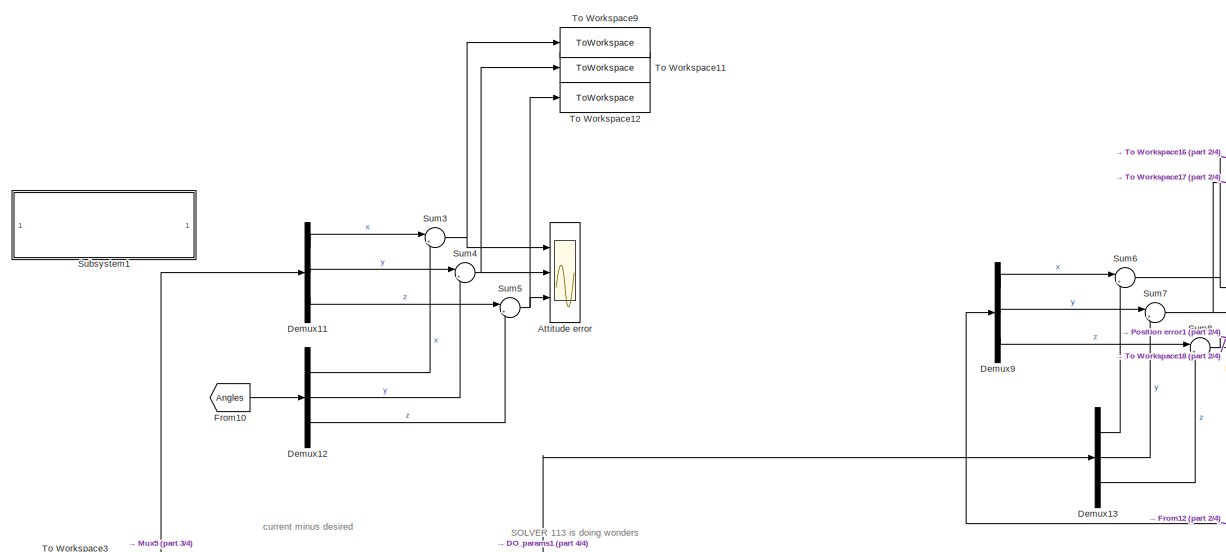
[diagram: root canvas - part 1/4, top center region]
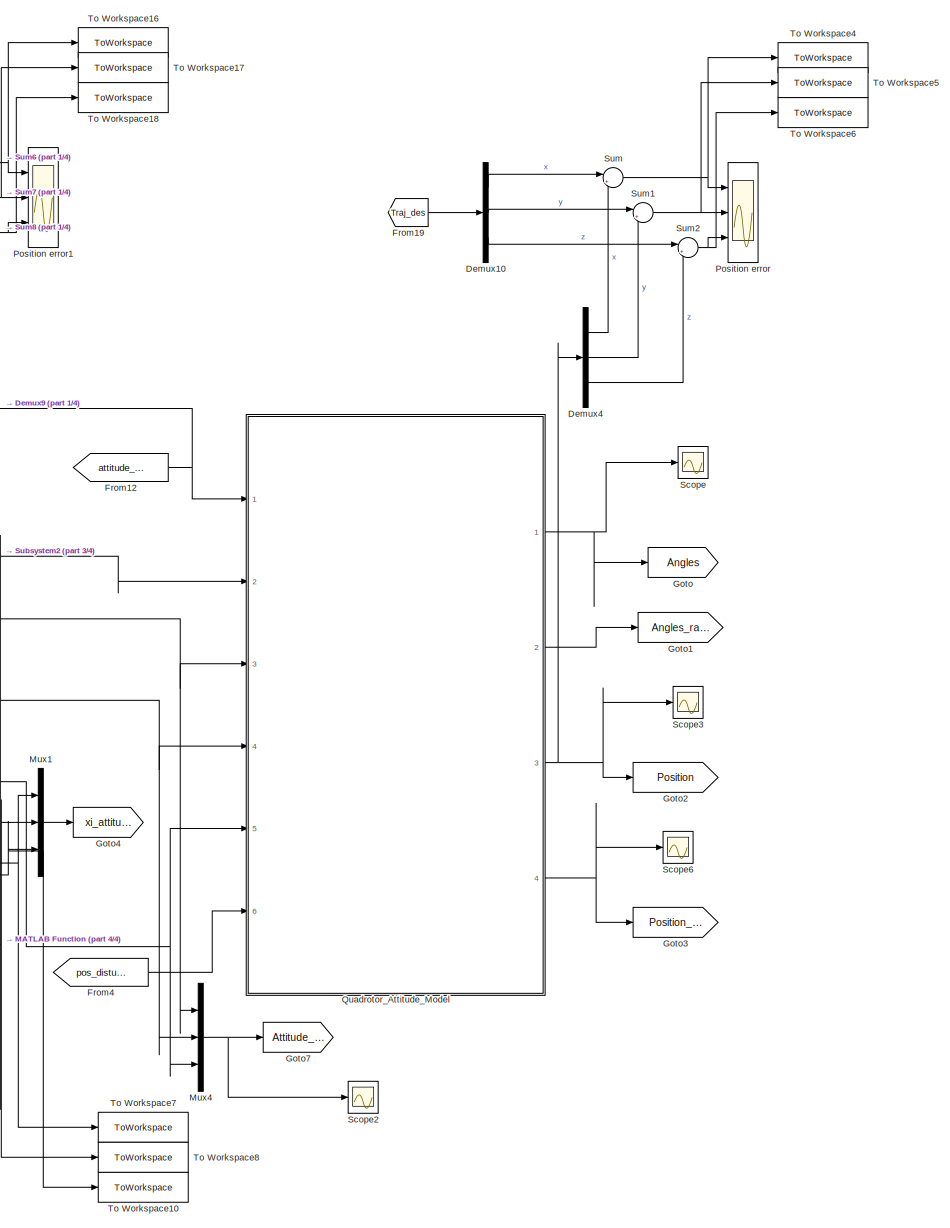
[diagram: root canvas - part 2/4, right side, full height]
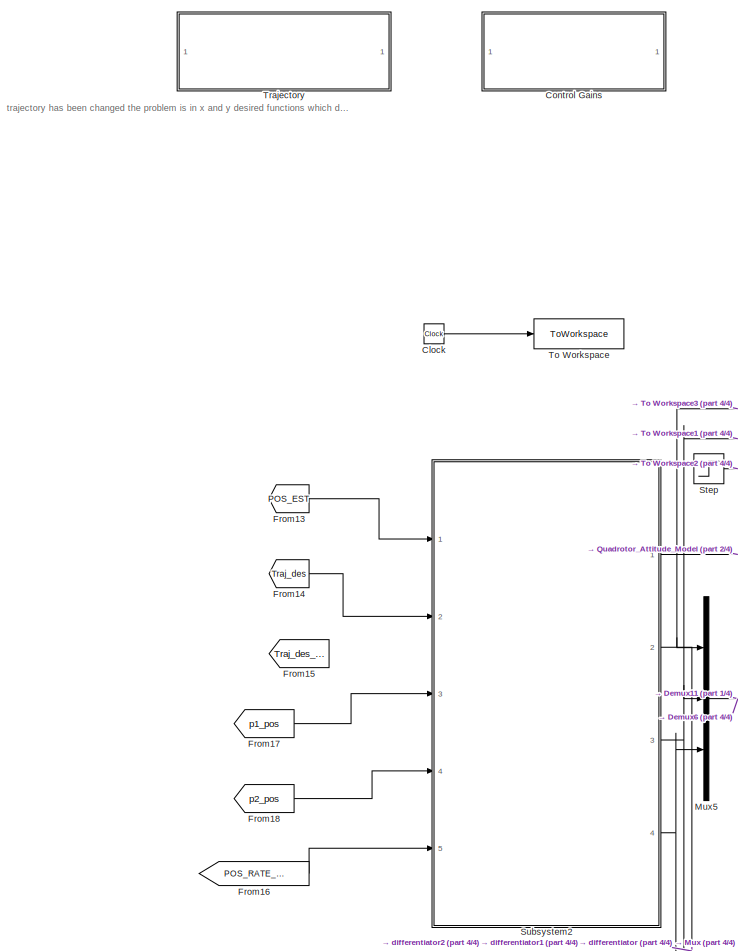
[diagram: root canvas - part 3/4, middle left region]
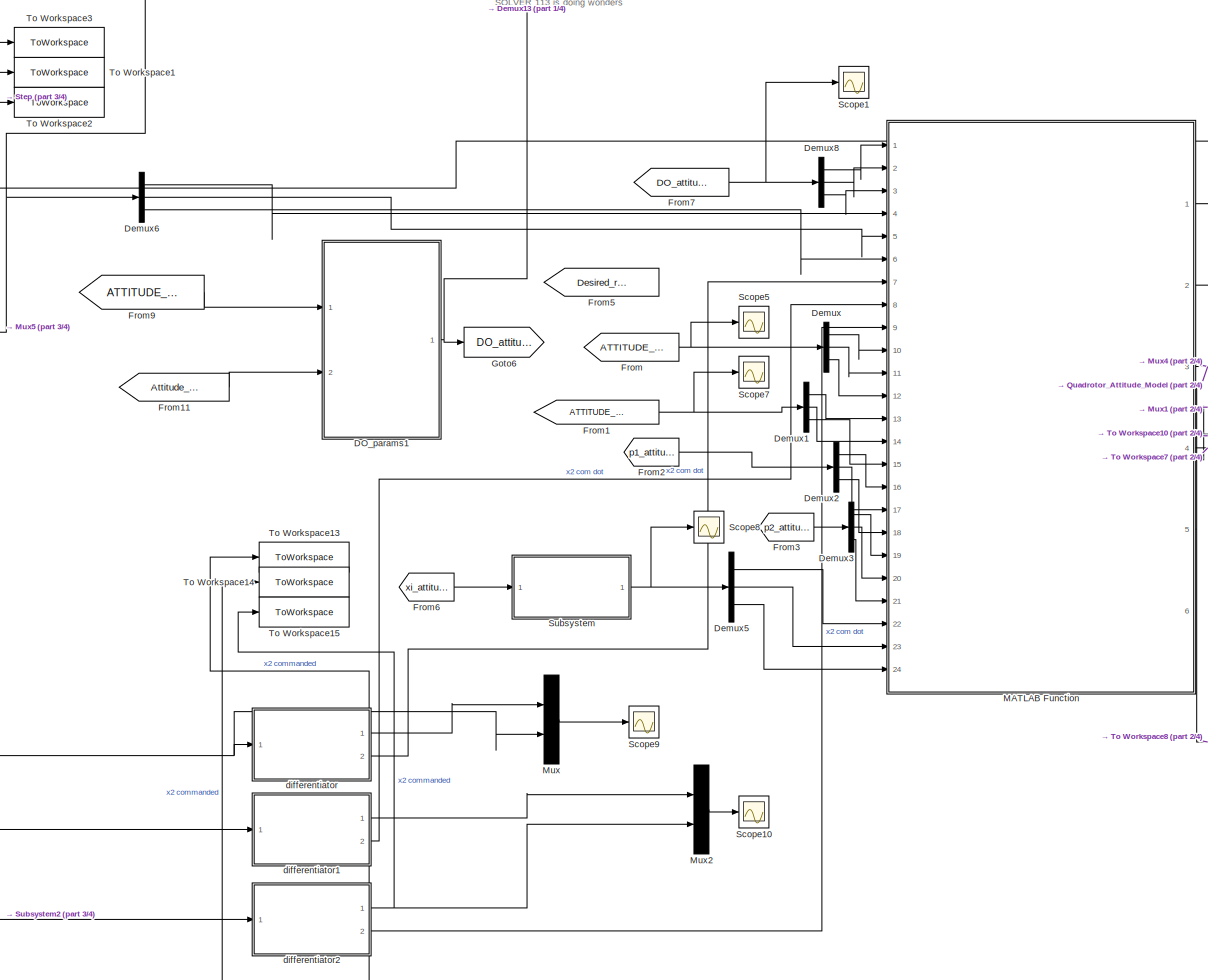
[diagram: root canvas - part 4/4, central region]
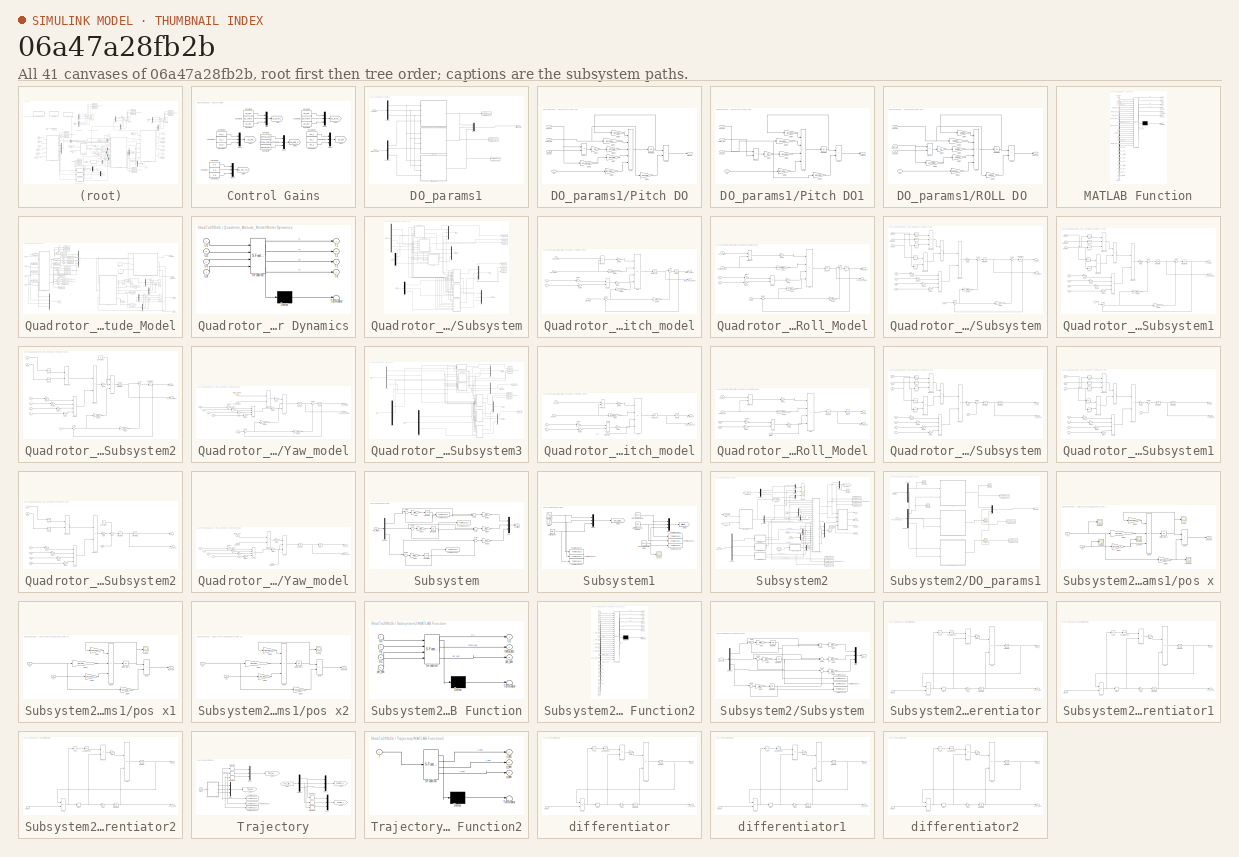
[diagram: thumbnail index - all 41 canvases of the model, root first then tree order]
MODEL slx_06a47a28fb2b
KIND model
CONFIG AbsTol = auto
CONFIG EnableMultiTasking = off
CONFIG FixedStep = auto
CONFIG MaxStep = auto
CONFIG MinStep = auto
CONFIG RelTol = 1e-3
CONFIG SampleTimeConstraint = Unconstrained
CONFIG SolverName = ode23tb
CONFIG StartTime = 0.0
CONFIG StopTime = simtime
BLOCK [Scope] Attitude error
  Floating = off
  NumInputPorts = 3
  Ports = [3]
  ScopeSpecificationString = Simulink.scopes.TimeScopeBlockCfg('CurrentConfiguration', extmgr.ConfigurationSet(extmgr.Configuration('Core','General UI',true,'FigureColor',[1 1 1]),extmgr.Configuration('Core','Source UI',true),extmgr.Configuration('Sources','WiredSimulink',true,'DataLoggingVariableName','ScopeData1'),extmgr.Configuration('Visuals','Time Domain',true,'SerializedDisplays',{struct('MinYLimReal','-3.23416','MaxYLi...<+3318ch>
BLOCK [Clock] Clock
BLOCK [SubSystem] Control Gains
  Ports = []
  RequestExecContextInheritance = off
BLOCK [Constant] Control Gains/Constant1
  Value = p1_phi
BLOCK [Constant] Control Gains/Constant10
  Value = p2_x
BLOCK [Constant] Control Gains/Constant11
  Value = p2_y
BLOCK [Constant] Control Gains/Constant12
  Value = p2_z
BLOCK [Constant] Control Gains/Constant13
  Value = p1_x
BLOCK [Constant] Control Gains/Constant14
  Value = p1_y
BLOCK [Constant] Control Gains/Constant15
  Value = p1_z
BLOCK [Constant] Control Gains/Constant16
  Value = 0.2
BLOCK [Constant] Control Gains/Constant17
  Value = 0.1
BLOCK [Constant] Control Gains/Constant18
  Value = 0.8
BLOCK [Constant] Control Gains/Constant2
  Value = p1_theta
BLOCK [Constant] Control Gains/Constant3
  Value = p1_psi
BLOCK [Constant] Control Gains/Constant4
  Value = p2_phi
BLOCK [Constant] Control Gains/Constant5
  Value = p2_theta
BLOCK [Constant] Control Gains/Constant6
  Value = p2_psi
BLOCK [Constant] Control Gains/Constant7
  Value = lamda_phi
BLOCK [Constant] Control Gains/Constant8
  Value = lamda_theta
BLOCK [Constant] Control Gains/Constant9
  Value = lamda_psi
BLOCK [Goto] Control Gains/Goto
  GotoTag = p1_attitude
  TagVisibility = global
BLOCK [Goto] Control Gains/Goto1
  GotoTag = p2_attitude
  TagVisibility = global
BLOCK [Goto] Control Gains/Goto2
  GotoTag = DO_gain_attitude
  TagVisibility = global
BLOCK [Goto] Control Gains/Goto3
  GotoTag = p2_pos
  TagVisibility = global
BLOCK [Goto] Control Gains/Goto4
  GotoTag = p1_pos
  TagVisibility = global
BLOCK [Goto] Control Gains/Goto5
  GotoTag = p1_hat_test
  TagVisibility = global
BLOCK [Mux] Control Gains/Mux
  DisplayOption = bar
  Inputs = 3
  Ports = [3, 1]
BLOCK [Mux] Control Gains/Mux1
  DisplayOption = bar
  Inputs = 3
  Ports = [3, 1]
BLOCK [Mux] Control Gains/Mux2
  DisplayOption = bar
  Inputs = 3
  Ports = [3, 1]
BLOCK [Mux] Control Gains/Mux3
  DisplayOption = bar
  Inputs = 3
  Ports = [3, 1]
BLOCK [Mux] Control Gains/Mux4
  DisplayOption = bar
  Inputs = 3
  Ports = [3, 1]
BLOCK [Mux] Control Gains/Mux5
  DisplayOption = bar
  Inputs = 3
  Ports = [3, 1]
BLOCK [SubSystem] DO_params1
  Ports = [2, 1]
  RequestExecContextInheritance = off
BLOCK [Inport] DO_params1/Angle rates
BLOCK [Outport] DO_params1/Attitude DOs
BLOCK [Inport] DO_params1/Attitude control
  Port = 2
BLOCK [Demux] DO_params1/Demux
  Outputs = 3
  Ports = [1, 3]
BLOCK [Demux] DO_params1/Demux1
  Outputs = 3
  Ports = [1, 3]
BLOCK [Mux] DO_params1/Mux1
  DisplayOption = bar
  Inputs = 3
  Ports = [3, 1]
BLOCK [SubSystem] DO_params1/Pitch DO
  Ports = [4, 1]
  RequestExecContextInheritance = off
BLOCK [Gain] DO_params1/Pitch DO/Gain1
  Gain = a3
BLOCK [Gain] DO_params1/Pitch DO/Gain2
  Gain = a4*Omega_r
BLOCK [Gain] DO_params1/Pitch DO/Gain4
  Gain = lambda
BLOCK [Gain] DO_params1/Pitch DO/Gain5
  Gain = lambda*lambda
BLOCK [Gain] DO_params1/Pitch DO/Gain6
  Gain = lambda
BLOCK [Gain] DO_params1/Pitch DO/Gain7
  Gain = lambda
BLOCK [Gain] DO_params1/Pitch DO/Gain8
  Gain = lambda*b2
BLOCK [Gain] DO_params1/Pitch DO/Gain9
  Gain = lambda
BLOCK [Integrator] DO_params1/Pitch DO/Integrator2
  Ports = [1, 1]
BLOCK [Outport] DO_params1/Pitch DO/Pitch DO
BLOCK [Product] DO_params1/Pitch DO/Product
  Ports = [2, 1]
BLOCK [Sum] DO_params1/Pitch DO/Sum1
  IconShape = rectangular
  Ports = [2, 1]
BLOCK [Sum] DO_params1/Pitch DO/Sum4
  IconShape = rectangular
  Inputs = ---+-
  Ports = [5, 1]
BLOCK [Inport] DO_params1/Pitch DO/U3
  Port = 4
BLOCK [Inport] DO_params1/Pitch DO/phi_dot
BLOCK [Inport] DO_params1/Pitch DO/psi_dot
  Port = 3
BLOCK [Inport] DO_params1/Pitch DO/theta_dot
  Port = 2
BLOCK [SubSystem] DO_params1/Pitch DO1
  Ports = [4, 1]
  RequestExecContextInheritance = off
BLOCK [Gain] DO_params1/Pitch DO1/Gain1
  Gain = a5
BLOCK [Gain] DO_params1/Pitch DO1/Gain4
  Gain = lambda
BLOCK [Gain] DO_params1/Pitch DO1/Gain5
  Gain = lambda*lambda
BLOCK [Gain] DO_params1/Pitch DO1/Gain6
  Gain = lambda
BLOCK [Gain] DO_params1/Pitch DO1/Gain8
  Gain = lambda*b3
BLOCK [Gain] DO_params1/Pitch DO1/Gain9
  Gain = lambda
BLOCK [Integrator] DO_params1/Pitch DO1/Integrator2
  Ports = [1, 1]
BLOCK [Product] DO_params1/Pitch DO1/Product
  Ports = [2, 1]
BLOCK [Sum] DO_params1/Pitch DO1/Sum1
  IconShape = rectangular
  Ports = [2, 1]
BLOCK [Sum] DO_params1/Pitch DO1/Sum4
  IconShape = rectangular
  Inputs = ----
  Ports = [4, 1]
BLOCK [Inport] DO_params1/Pitch DO1/U4
  Port = 4
BLOCK [Outport] DO_params1/Pitch DO1/Yaw DOs
BLOCK [Inport] DO_params1/Pitch DO1/phi_dot
BLOCK [Inport] DO_params1/Pitch DO1/psi_dot
  Port = 3
BLOCK [Inport] DO_params1/Pitch DO1/theta_dot
  Port = 2
BLOCK [SubSystem] DO_params1/ROLL DO 
  Ports = [4, 1]
  RequestExecContextInheritance = off
BLOCK [Gain] DO_params1/ROLL DO /Gain1
  Gain = a1
BLOCK [Gain] DO_params1/ROLL DO /Gain2
  Gain = a2*Omega_r
BLOCK [Gain] DO_params1/ROLL DO /Gain4
  Gain = lambda
BLOCK [Gain] DO_params1/ROLL DO /Gain5
  Gain = lambda*lambda
BLOCK [Gain] DO_params1/ROLL DO /Gain6
  Gain = lambda
BLOCK [Gain] DO_params1/ROLL DO /Gain7
  Gain = lambda
BLOCK [Gain] DO_params1/ROLL DO /Gain8
  Gain = lambda*b1
BLOCK [Gain] DO_params1/ROLL DO /Gain9
  Gain = lambda
BLOCK [Integrator] DO_params1/ROLL DO /Integrator2
  Ports = [1, 1]
BLOCK [Product] DO_params1/ROLL DO /Product
  Ports = [2, 1]
BLOCK [Outport] DO_params1/ROLL DO /ROLL DO
BLOCK [Sum] DO_params1/ROLL DO /Sum1
  IconShape = rectangular
  Ports = [2, 1]
BLOCK [Sum] DO_params1/ROLL DO /Sum4
  IconShape = rectangular
  Inputs = -----
  Ports = [5, 1]
BLOCK [Inport] DO_params1/ROLL DO /U2
  Port = 4
BLOCK [Inport] DO_params1/ROLL DO /phi_dot
BLOCK [Inport] DO_params1/ROLL DO /psi_dot
  Port = 3
BLOCK [Inport] DO_params1/ROLL DO /theta_dot
  Port = 2
BLOCK [ToWorkspace] DO_params1/To Workspace
  FixptAsFi = on
  MaxDataPoints = inf
  Ports = [1]
  SampleTime = -1
  SaveFormat = Timeseries
  VariableName = roll_DO
BLOCK [ToWorkspace] DO_params1/To Workspace1
  FixptAsFi = on
  MaxDataPoints = inf
  Ports = [1]
  SampleTime = -1
  SaveFormat = Timeseries
  VariableName = pitch_DO
BLOCK [ToWorkspace] DO_params1/To Workspace2
  FixptAsFi = on
  MaxDataPoints = inf
  Ports = [1]
  SampleTime = -1
  SaveFormat = Timeseries
  VariableName = yaw_DO
BLOCK [Demux] Demux
  Outputs = 3
  Ports = [1, 3]
BLOCK [Demux] Demux1
  Outputs = 3
  Ports = [1, 3]
BLOCK [Demux] Demux10
  Outputs = 3
  Ports = [1, 3]
BLOCK [Demux] Demux11
  Outputs = 3
  Ports = [1, 3]
BLOCK [Demux] Demux12
  Outputs = 3
  Ports = [1, 3]
BLOCK [Demux] Demux13
  Outputs = 3
  Ports = [1, 3]
BLOCK [Demux] Demux2
  Outputs = 3
  Ports = [1, 3]
BLOCK [Demux] Demux3
  Outputs = 3
  Ports = [1, 3]
BLOCK [Demux] Demux4
  Outputs = 3
  Ports = [1, 3]
BLOCK [Demux] Demux5
  Outputs = 3
  Ports = [1, 3]
BLOCK [Demux] Demux6
  Outputs = 3
  Ports = [1, 3]
BLOCK [Demux] Demux8
  Outputs = 3
  Ports = [1, 3]
BLOCK [Demux] Demux9
  Outputs = 3
  Ports = [1, 3]
BLOCK [From] From
  GotoTag = ATTITUDE_EST
  TagVisibility = global
BLOCK [From] From1
  GotoTag = ATTITUDE_RATE_EST
  TagVisibility = global
BLOCK [From] From10
  GotoTag = Angles
  TagVisibility = global
BLOCK [From] From11
  GotoTag = Attitude_control
  TagVisibility = global
BLOCK [From] From12
  GotoTag = attitude_dist
  TagVisibility = global
BLOCK [From] From13
  GotoTag = POS_EST
  TagVisibility = global
BLOCK [From] From14
  GotoTag = Traj_des
  TagVisibility = global
BLOCK [From] From15
  GotoTag = Traj_des_dot
  TagVisibility = global
BLOCK [From] From16
  GotoTag = POS_RATE_EST
  TagVisibility = global
BLOCK [From] From17
  GotoTag = p1_pos
  TagVisibility = global
BLOCK [From] From18
  GotoTag = p2_pos
  TagVisibility = global
BLOCK [From] From19
  GotoTag = Traj_des
  TagVisibility = global
BLOCK [From] From2
  GotoTag = p1_attitude
  TagVisibility = global
BLOCK [From] From3
  GotoTag = p2_attitude
  TagVisibility = global
BLOCK [From] From4
  GotoTag = pos_disturbance
  TagVisibility = global
BLOCK [From] From5
  GotoTag = Desired_rate_attitude
  TagVisibility = global
BLOCK [From] From6
  GotoTag = xi_attitude
  TagVisibility = global
BLOCK [From] From7
  GotoTag = DO_attitude
  TagVisibility = global
BLOCK [From] From9
  GotoTag = ATTITUDE_RATE_EST
  TagVisibility = global
BLOCK [Goto] Goto
  GotoTag = Angles
  TagVisibility = global
BLOCK [Goto] Goto1
  GotoTag = Angles_rate
  TagVisibility = global
BLOCK [Goto] Goto2
  GotoTag = Position
  TagVisibility = global
BLOCK [Goto] Goto3
  GotoTag = Position_rate
  TagVisibility = global
BLOCK [Goto] Goto4
  GotoTag = xi_attitude
  TagVisibility = global
BLOCK [Goto] Goto6
  GotoTag = DO_attitude
  TagVisibility = global
BLOCK [Goto] Goto7
  GotoTag = Attitude_control
  TagVisibility = global
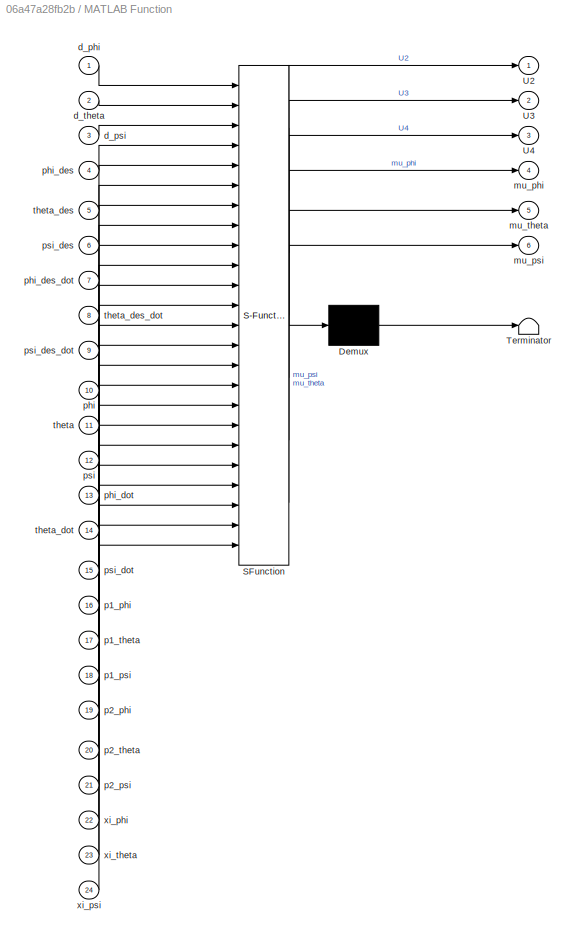
BLOCK [SubSystem] MATLAB Function
  ErrorFcn = Stateflow.Translate.translate
  PermitHierarchicalResolution = ExplicitOnly
  Ports = [24, 6]
  RequestExecContextInheritance = off
  SFBlockType = MATLAB Function
  TreatAsAtomicUnit = on
BLOCK [Demux] MATLAB Function/ Demux 
  Outputs = 1
  Ports = [1, 1]
BLOCK [S-Function] MATLAB Function/ SFunction 
  EnableBusSupport = on
  FunctionName = sf_sfun
  PortCounts = [24 7]
  Ports = [24, 7]
  SFcnIsStateOwnerBlock = off
  SFunctionDeploymentMode = off
  Tag = Stateflow S-Function 2
BLOCK [Terminator] MATLAB Function/ Terminator 
BLOCK [Outport] MATLAB Function/U2
BLOCK [Outport] MATLAB Function/U3
  Port = 2
BLOCK [Outport] MATLAB Function/U4
  Port = 3
BLOCK [Inport] MATLAB Function/d_phi
BLOCK [Inport] MATLAB Function/d_psi
  Port = 3
BLOCK [Inport] MATLAB Function/d_theta
  Port = 2
BLOCK [Outport] MATLAB Function/mu_phi
  Port = 4
BLOCK [Outport] MATLAB Function/mu_psi
  Port = 6
BLOCK [Outport] MATLAB Function/mu_theta
  Port = 5
BLOCK [Inport] MATLAB Function/p1_phi
  Port = 16
BLOCK [Inport] MATLAB Function/p1_psi
  Port = 18
BLOCK [Inport] MATLAB Function/p1_theta
  Port = 17
BLOCK [Inport] MATLAB Function/p2_phi
  Port = 19
BLOCK [Inport] MATLAB Function/p2_psi
  Port = 21
BLOCK [Inport] MATLAB Function/p2_theta
  Port = 20
BLOCK [Inport] MATLAB Function/phi
  Port = 10
BLOCK [Inport] MATLAB Function/phi_des
  Port = 4
BLOCK [Inport] MATLAB Function/phi_des_dot
  Port = 7
BLOCK [Inport] MATLAB Function/phi_dot
  Port = 13
BLOCK [Inport] MATLAB Function/psi
  Port = 12
BLOCK [Inport] MATLAB Function/psi_des
  Port = 6
BLOCK [Inport] MATLAB Function/psi_des_dot
  Port = 9
BLOCK [Inport] MATLAB Function/psi_dot
  Port = 15
BLOCK [Inport] MATLAB Function/theta
  Port = 11
BLOCK [Inport] MATLAB Function/theta_des
  Port = 5
BLOCK [Inport] MATLAB Function/theta_des_dot
  Port = 8
BLOCK [Inport] MATLAB Function/theta_dot
  Port = 14
BLOCK [Inport] MATLAB Function/xi_phi
  Port = 22
BLOCK [Inport] MATLAB Function/xi_psi
  Port = 24
BLOCK [Inport] MATLAB Function/xi_theta
  Port = 23
BLOCK [Mux] Mux
  DisplayOption = bar
  Inputs = 2
  Ports = [2, 1]
BLOCK [Mux] Mux1
  DisplayOption = bar
  Inputs = 3
  Ports = [3, 1]
BLOCK [Mux] Mux2
  DisplayOption = bar
  Inputs = 2
  Ports = [2, 1]
BLOCK [Mux] Mux4
  DisplayOption = bar
  Inputs = 3
  Ports = [3, 1]
BLOCK [Mux] Mux5
  DisplayOption = bar
  Inputs = 3
  Ports = [3, 1]
BLOCK [Scope] Position error
  Floating = off
  NumInputPorts = 3
  Ports = [3]
  ScopeSpecificationString = Simulink.scopes.TimeScopeBlockCfg('CurrentConfiguration', extmgr.ConfigurationSet(extmgr.Configuration('Core','General UI',true,'FigureColor',[1 1 1]),extmgr.Configuration('Core','Source UI',true),extmgr.Configuration('Sources','WiredSimulink',true),extmgr.Configuration('Visuals','Time Domain',true,'SerializedDisplays',{struct('MinYLimReal','-0.07234','MaxYLimReal','0.14604','YLabelReal','','MinYL...<+3329ch>
BLOCK [Scope] Position error1
  Floating = off
  NumInputPorts = 3
  Ports = [3]
  ScopeSpecificationString = Simulink.scopes.TimeScopeBlockCfg('CurrentConfiguration', extmgr.ConfigurationSet(extmgr.Configuration('Core','General UI',true,'FigureColor',[1 1 1]),extmgr.Configuration('Core','Source UI',true),extmgr.Configuration('Sources','WiredSimulink',true,'DataLoggingVariableName','ScopeData1'),extmgr.Configuration('Visuals','Time Domain',true,'SerializedDisplays',{struct('MinYLimReal','-1.84984','MaxYLi...<+3368ch>
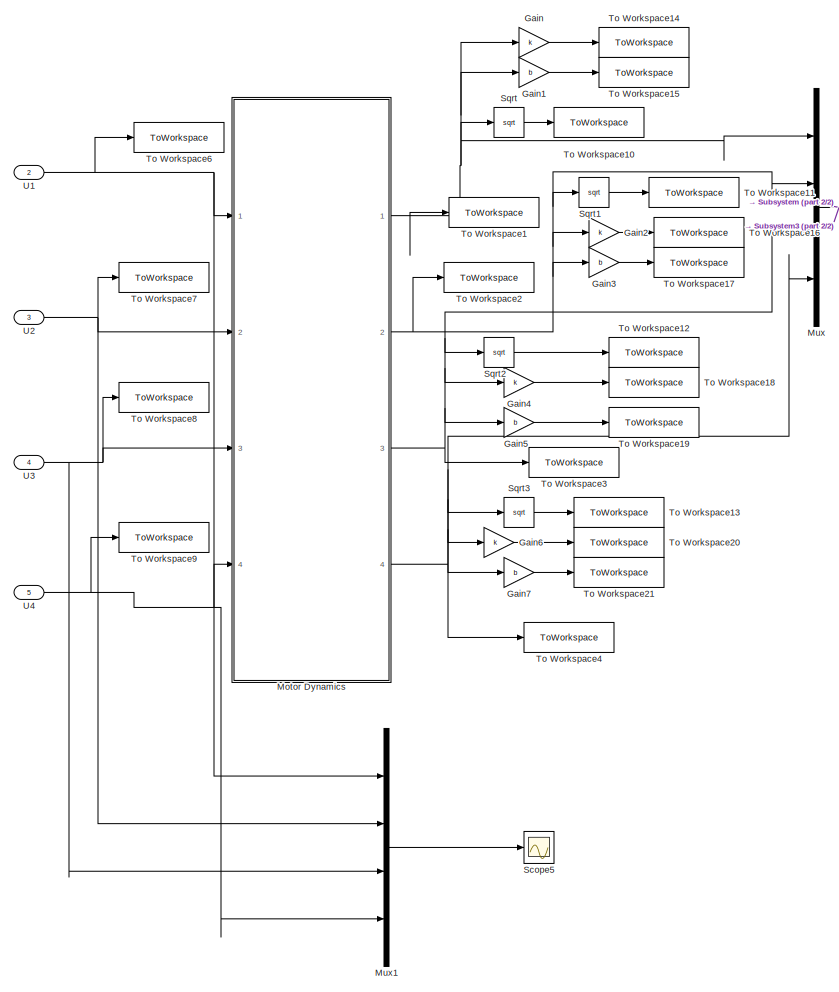
[diagram: Quadrotor_Attitude_Model - part 1/2, left side, full height]
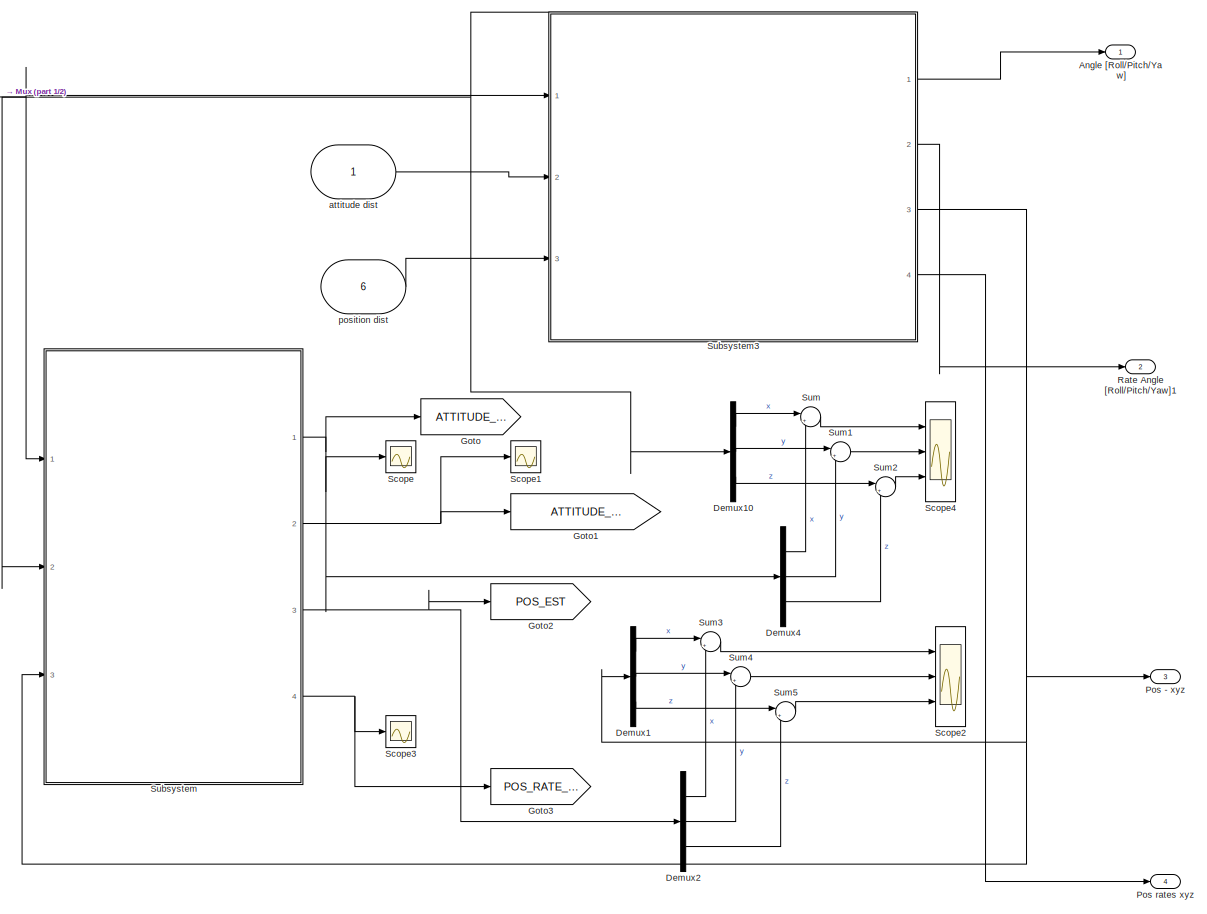
[diagram: Quadrotor_Attitude_Model - part 2/2, right side, full height]
BLOCK [SubSystem] Quadrotor_Attitude_Model
  Ports = [6, 4]
  RequestExecContextInheritance = off
BLOCK [Outport] Quadrotor_Attitude_Model/Angle [Roll//Pitch//Yaw]
BLOCK [Demux] Quadrotor_Attitude_Model/Demux1
  Outputs = 3
  Ports = [1, 3]
BLOCK [Demux] Quadrotor_Attitude_Model/Demux10
  Outputs = 3
  Ports = [1, 3]
BLOCK [Demux] Quadrotor_Attitude_Model/Demux2
  Outputs = 3
  Ports = [1, 3]
BLOCK [Demux] Quadrotor_Attitude_Model/Demux4
  Outputs = 3
  Ports = [1, 3]
BLOCK [Gain] Quadrotor_Attitude_Model/Gain
  Gain = k
BLOCK [Gain] Quadrotor_Attitude_Model/Gain1
  Gain = b
BLOCK [Gain] Quadrotor_Attitude_Model/Gain2
  Gain = k
BLOCK [Gain] Quadrotor_Attitude_Model/Gain3
  Gain = b
BLOCK [Gain] Quadrotor_Attitude_Model/Gain4
  Gain = k
BLOCK [Gain] Quadrotor_Attitude_Model/Gain5
  Gain = b
BLOCK [Gain] Quadrotor_Attitude_Model/Gain6
  Gain = k
BLOCK [Gain] Quadrotor_Attitude_Model/Gain7
  Gain = b
BLOCK [Goto] Quadrotor_Attitude_Model/Goto
  GotoTag = ATTITUDE_EST
  TagVisibility = global
BLOCK [Goto] Quadrotor_Attitude_Model/Goto1
  GotoTag = ATTITUDE_RATE_EST
  TagVisibility = global
BLOCK [Goto] Quadrotor_Attitude_Model/Goto2
  GotoTag = POS_EST
  TagVisibility = global
BLOCK [Goto] Quadrotor_Attitude_Model/Goto3
  GotoTag = POS_RATE_EST
  TagVisibility = global
BLOCK [SubSystem] Quadrotor_Attitude_Model/Motor Dynamics
  ErrorFcn = Stateflow.Translate.translate
  PermitHierarchicalResolution = ExplicitOnly
  Ports = [4, 4]
  RequestExecContextInheritance = off
  SFBlockType = MATLAB Function
  TreatAsAtomicUnit = on
BLOCK [Demux] Quadrotor_Attitude_Model/Motor Dynamics/ Demux 
  Outputs = 1
  Ports = [1, 1]
BLOCK [S-Function] Quadrotor_Attitude_Model/Motor Dynamics/ SFunction 
  EnableBusSupport = on
  FunctionName = sf_sfun
  PortCounts = [4 5]
  Ports = [4, 5]
  SFcnIsStateOwnerBlock = off
  SFunctionDeploymentMode = off
  Tag = Stateflow S-Function 5
BLOCK [Terminator] Quadrotor_Attitude_Model/Motor Dynamics/ Terminator 
BLOCK [Outport] Quadrotor_Attitude_Model/Motor Dynamics/T1
BLOCK [Outport] Quadrotor_Attitude_Model/Motor Dynamics/T2
  Port = 2
BLOCK [Outport] Quadrotor_Attitude_Model/Motor Dynamics/T3
  Port = 3
BLOCK [Outport] Quadrotor_Attitude_Model/Motor Dynamics/T4
  Port = 4
BLOCK [Inport] Quadrotor_Attitude_Model/Motor Dynamics/U1
BLOCK [Inport] Quadrotor_Attitude_Model/Motor Dynamics/U2
  Port = 2
BLOCK [Inport] Quadrotor_Attitude_Model/Motor Dynamics/U3
  Port = 3
BLOCK [Inport] Quadrotor_Attitude_Model/Motor Dynamics/U4
  Port = 4
BLOCK [Mux] Quadrotor_Attitude_Model/Mux
  DisplayOption = bar
  Ports = [4, 1]
BLOCK [Mux] Quadrotor_Attitude_Model/Mux1
  DisplayOption = bar
  Ports = [4, 1]
BLOCK [Outport] Quadrotor_Attitude_Model/Pos -  xyz
  Port = 3
BLOCK [Outport] Quadrotor_Attitude_Model/Pos rates xyz
  Port = 4
BLOCK [Outport] Quadrotor_Attitude_Model/Rate Angle [Roll//Pitch//Yaw]1
  Port = 2
BLOCK [Scope] Quadrotor_Attitude_Model/Scope
  Floating = off
  NumInputPorts = 1
  Ports = [1]
  ScopeSpecificationString = Simulink.scopes.TimeScopeBlockCfg('CurrentConfiguration', extmgr.ConfigurationSet(extmgr.Configuration('Core','General UI',true),extmgr.Configuration('Core','Source UI',true),extmgr.Configuration('Sources','WiredSimulink',true,'DataLoggingVariableName','ScopeData1'),extmgr.Configuration('Visuals','Time Domain',true,'SerializedDisplays',{struct('MinYLimReal','-1.74528','MaxYLimReal','1.65118','YLab...<+1404ch>
BLOCK [Scope] Quadrotor_Attitude_Model/Scope1
  Floating = off
  NumInputPorts = 1
  Ports = [1]
  ScopeSpecificationString = Simulink.scopes.TimeScopeBlockCfg('CurrentConfiguration', extmgr.ConfigurationSet(extmgr.Configuration('Core','General UI',true),extmgr.Configuration('Core','Source UI',true),extmgr.Configuration('Sources','WiredSimulink',true,'DataLoggingVariableName','ScopeData2'),extmgr.Configuration('Visuals','Time Domain',true,'SerializedDisplays',{struct('MinYLimReal','-174.62513','MaxYLimReal','202.60487','...<+1484ch>
BLOCK [Scope] Quadrotor_Attitude_Model/Scope2
  Floating = off
  NumInputPorts = 3
  Ports = [3]
  ScopeSpecificationString = Simulink.scopes.TimeScopeBlockCfg('CurrentConfiguration', extmgr.ConfigurationSet(extmgr.Configuration('Core','General UI',true,'FigureColor',[1 1 1]),extmgr.Configuration('Core','Source UI',true),extmgr.Configuration('Sources','WiredSimulink',true,'DataLoggingVariableName','ScopeData4'),extmgr.Configuration('Visuals','Time Domain',true,'SerializedDisplays',{struct('MinYLimReal','-0.00000024','Max...<+3343ch>
BLOCK [Scope] Quadrotor_Attitude_Model/Scope3
  Floating = off
  NumInputPorts = 1
  Ports = [1]
  ScopeSpecificationString = Simulink.scopes.TimeScopeBlockCfg('CurrentConfiguration', extmgr.ConfigurationSet(extmgr.Configuration('Core','General UI',true),extmgr.Configuration('Core','Source UI',true),extmgr.Configuration('Sources','WiredSimulink',true,'DataLoggingVariableName','ScopeData5'),extmgr.Configuration('Visuals','Time Domain',true,'SerializedDisplays',{struct('MinYLimReal','-15.93506','MaxYLimReal','32.46628','YL...<+1410ch>
BLOCK [Scope] Quadrotor_Attitude_Model/Scope4
  Floating = off
  NumInputPorts = 3
  Ports = [3]
  ScopeSpecificationString = Simulink.scopes.TimeScopeBlockCfg('CurrentConfiguration', extmgr.ConfigurationSet(extmgr.Configuration('Core','General UI',true,'FigureColor',[1 1 1]),extmgr.Configuration('Core','Source UI',true),extmgr.Configuration('Sources','WiredSimulink',true,'DataLoggingVariableName','ScopeData3'),extmgr.Configuration('Visuals','Time Domain',true,'SerializedDisplays',{struct('MinYLimReal','-0.0000026','MaxY...<+3337ch>
BLOCK [Scope] Quadrotor_Attitude_Model/Scope5
  Floating = off
  NumInputPorts = 1
  Ports = [1]
  ScopeSpecificationString = Simulink.scopes.TimeScopeBlockCfg('CurrentConfiguration', extmgr.ConfigurationSet(extmgr.Configuration('Core','General UI',true,'FigureColor',[1 1 1]),extmgr.Configuration('Core','Source UI',true),extmgr.Configuration('Sources','WiredSimulink',true,'DataLoggingVariableName','ScopeData1'),extmgr.Configuration('Visuals','Time Domain',true,'SerializedDisplays',{struct('MinYLimReal','-1872.08176','Max...<+1434ch>
BLOCK [Sqrt] Quadrotor_Attitude_Model/Sqrt
BLOCK [Sqrt] Quadrotor_Attitude_Model/Sqrt1
BLOCK [Sqrt] Quadrotor_Attitude_Model/Sqrt2
BLOCK [Sqrt] Quadrotor_Attitude_Model/Sqrt3
BLOCK [SubSystem] Quadrotor_Attitude_Model/Subsystem
  Ports = [3, 4]
  RequestExecContextInheritance = off
BLOCK [Demux] Quadrotor_Attitude_Model/Subsystem/Demux
  Ports = [1, 4]
BLOCK [Demux] Quadrotor_Attitude_Model/Subsystem/Demux1
  Outputs = 3
  Ports = [1, 3]
BLOCK [Demux] Quadrotor_Attitude_Model/Subsystem/Demux2
  Outputs = 3
  Ports = [1, 3]
BLOCK [Mux] Quadrotor_Attitude_Model/Subsystem/Mux1
  DisplayOption = bar
  Inputs = 3
  Ports = [3, 1]
BLOCK [Mux] Quadrotor_Attitude_Model/Subsystem/Mux2
  DisplayOption = bar
  Inputs = 3
  Ports = [3, 1]
BLOCK [Mux] Quadrotor_Attitude_Model/Subsystem/Mux3
  DisplayOption = bar
  Inputs = 3
  Ports = [3, 1]
BLOCK [Mux] Quadrotor_Attitude_Model/Subsystem/Mux4
  DisplayOption = bar
  Inputs = 3
  Ports = [3, 1]
BLOCK [SubSystem] Quadrotor_Attitude_Model/Subsystem/Pitch_model
  Ports = [5, 2]
  RequestExecContextInheritance = off
BLOCK [Gain] Quadrotor_Attitude_Model/Subsystem/Pitch_model/Gain
  Gain = b2
BLOCK [Gain] Quadrotor_Attitude_Model/Subsystem/Pitch_model/Gain1
  Gain = a4*Omega_r
BLOCK [Gain] Quadrotor_Attitude_Model/Subsystem/Pitch_model/Gain2
  Gain = a3
BLOCK [Gain] Quadrotor_Attitude_Model/Subsystem/Pitch_model/Gain3
  Gain = b
BLOCK [Gain] Quadrotor_Attitude_Model/Subsystem/Pitch_model/Gain4
  Gain = b
BLOCK [Gain] Quadrotor_Attitude_Model/Subsystem/Pitch_model/Gain5
  Gain = a1_p/epsi
BLOCK [Gain] Quadrotor_Attitude_Model/Subsystem/Pitch_model/Gain6
  Gain = a2_y/epsi^2
BLOCK [Product] Quadrotor_Attitude_Model/Subsystem/Pitch_model/Product
  Ports = [2, 1]
BLOCK [Sum] Quadrotor_Attitude_Model/Subsystem/Pitch_model/Sum
  IconShape = rectangular
  Inputs = +-++
  Ports = [4, 1]
BLOCK [Sum] Quadrotor_Attitude_Model/Subsystem/Pitch_model/Sum1
  IconShape = rectangular
  Inputs = +-
  Ports = [2, 1]
BLOCK [Sum] Quadrotor_Attitude_Model/Subsystem/Pitch_model/Sum2
  Inputs = |++
  Ports = [2, 1]
BLOCK [Sum] Quadrotor_Attitude_Model/Subsystem/Pitch_model/Sum3
  Inputs = |+-
  Ports = [2, 1]
BLOCK [Inport] Quadrotor_Attitude_Model/Subsystem/Pitch_model/T1
BLOCK [Inport] Quadrotor_Attitude_Model/Subsystem/Pitch_model/T3
  Port = 2
BLOCK [Inport] Quadrotor_Attitude_Model/Subsystem/Pitch_model/phi_dot  hat
  Port = 3
BLOCK [Inport] Quadrotor_Attitude_Model/Subsystem/Pitch_model/pitch dist
  Port = 5
BLOCK [Inport] Quadrotor_Attitude_Model/Subsystem/Pitch_model/psi_dot hat 
  Port = 4
BLOCK [Integrator] Quadrotor_Attitude_Model/Subsystem/Pitch_model/theta
  InitialCondition = init_cond_pitch
  Ports = [1, 1]
BLOCK [Integrator] Quadrotor_Attitude_Model/Subsystem/Pitch_model/theta_dot
  Ports = [1, 1]
BLOCK [Outport] Quadrotor_Attitude_Model/Subsystem/Pitch_model/theta_dot_hat out
  Port = 2
BLOCK [Outport] Quadrotor_Attitude_Model/Subsystem/Pitch_model/theta_hat out
BLOCK [Inport] Quadrotor_Attitude_Model/Subsystem/Position
  Port = 3
BLOCK [SubSystem] Quadrotor_Attitude_Model/Subsystem/Roll_Model
  Ports = [5, 2]
  RequestExecContextInheritance = off
BLOCK [Gain] Quadrotor_Attitude_Model/Subsystem/Roll_Model/Gain
  Gain = b1
BLOCK [Gain] Quadrotor_Attitude_Model/Subsystem/Roll_Model/Gain1
  Gain = a2*Omega_r
BLOCK [Gain] Quadrotor_Attitude_Model/Subsystem/Roll_Model/Gain2
  Gain = a1
BLOCK [Gain] Quadrotor_Attitude_Model/Subsystem/Roll_Model/Gain3
  Gain = b
BLOCK [Gain] Quadrotor_Attitude_Model/Subsystem/Roll_Model/Gain4
  Gain = b
BLOCK [Gain] Quadrotor_Attitude_Model/Subsystem/Roll_Model/Gain5
  Gain = a1_r/epsi
BLOCK [Gain] Quadrotor_Attitude_Model/Subsystem/Roll_Model/Gain6
  Gain = a2_r/epsi^2
BLOCK [Outport] Quadrotor_Attitude_Model/Subsystem/Roll_Model/Phi hat_out
BLOCK [Outport] Quadrotor_Attitude_Model/Subsystem/Roll_Model/Phi_dot_hat out
  Port = 2
BLOCK [Product] Quadrotor_Attitude_Model/Subsystem/Roll_Model/Product
  Ports = [2, 1]
BLOCK [Inport] Quadrotor_Attitude_Model/Subsystem/Roll_Model/Psi_hat dot 
  Port = 4
BLOCK [Sum] Quadrotor_Attitude_Model/Subsystem/Roll_Model/Sum
  IconShape = rectangular
  Inputs = ++++
  Ports = [4, 1]
BLOCK [Sum] Quadrotor_Attitude_Model/Subsystem/Roll_Model/Sum1
  IconShape = rectangular
  Inputs = +-
  Ports = [2, 1]
BLOCK [Sum] Quadrotor_Attitude_Model/Subsystem/Roll_Model/Sum2
  Inputs = |++
  Ports = [2, 1]
BLOCK [Sum] Quadrotor_Attitude_Model/Subsystem/Roll_Model/Sum3
  Inputs = |+-
  Ports = [2, 1]
BLOCK [Inport] Quadrotor_Attitude_Model/Subsystem/Roll_Model/T2
BLOCK [Inport] Quadrotor_Attitude_Model/Subsystem/Roll_Model/T4
  Port = 2
BLOCK [Inport] Quadrotor_Attitude_Model/Subsystem/Roll_Model/Theta_dot hat 
  Port = 3
BLOCK [Integrator] Quadrotor_Attitude_Model/Subsystem/Roll_Model/phi
  InitialCondition = init_cond_roll
  Ports = [1, 1]
BLOCK [Integrator] Quadrotor_Attitude_Model/Subsystem/Roll_Model/phi_dot
  Ports = [1, 1]
BLOCK [Inport] Quadrotor_Attitude_Model/Subsystem/Roll_Model/y = roll
  Port = 5
BLOCK [SubSystem] Quadrotor_Attitude_Model/Subsystem/Subsystem
  Ports = [8, 2]
  RequestExecContextInheritance = off
BLOCK [Trigonometry] Quadrotor_Attitude_Model/Subsystem/Subsystem/Cos
  Ports = [1, 1]
BLOCK [Trigonometry] Quadrotor_Attitude_Model/Subsystem/Subsystem/Cos1
  Ports = [1, 1]
BLOCK [Trigonometry] Quadrotor_Attitude_Model/Subsystem/Subsystem/Cos2
  Operator = cos
  Ports = [1, 1]
BLOCK [Trigonometry] Quadrotor_Attitude_Model/Subsystem/Subsystem/Cos3
  Operator = cos
  Ports = [1, 1]
BLOCK [Trigonometry] Quadrotor_Attitude_Model/Subsystem/Subsystem/Cos4
  Ports = [1, 1]
BLOCK [Gain] Quadrotor_Attitude_Model/Subsystem/Subsystem/Gain
  Gain = 1/m
BLOCK [Gain] Quadrotor_Attitude_Model/Subsystem/Subsystem/Gain1
  Gain = b
BLOCK [Gain] Quadrotor_Attitude_Model/Subsystem/Subsystem/Gain2
  Gain = b
BLOCK [Gain] Quadrotor_Attitude_Model/Subsystem/Subsystem/Gain3
  Gain = b
BLOCK [Gain] Quadrotor_Attitude_Model/Subsystem/Subsystem/Gain4
  Gain = b
BLOCK [Gain] Quadrotor_Attitude_Model/Subsystem/Subsystem/Gain5
  Gain = a1_y/epsi
BLOCK [Gain] Quadrotor_Attitude_Model/Subsystem/Subsystem/Gain6
  Gain = a2_y/epsi^2
BLOCK [Integrator] Quadrotor_Attitude_Model/Subsystem/Subsystem/Integrator
  Ports = [1, 1]
BLOCK [Integrator] Quadrotor_Attitude_Model/Subsystem/Subsystem/Integrator1
  InitialCondition = init_cond_y
  Ports = [1, 1]
BLOCK [Product] Quadrotor_Attitude_Model/Subsystem/Subsystem/Product
  Ports = [2, 1]
BLOCK [Product] Quadrotor_Attitude_Model/Subsystem/Subsystem/Product1
  Inputs = 3
  Ports = [3, 1]
BLOCK [Product] Quadrotor_Attitude_Model/Subsystem/Subsystem/Product2
  Ports = [2, 1]
BLOCK [Sum] Quadrotor_Attitude_Model/Subsystem/Subsystem/Sum
  IconShape = rectangular
  Inputs = +-
  Ports = [2, 1]
BLOCK [Sum] Quadrotor_Attitude_Model/Subsystem/Subsystem/Sum1
  IconShape = rectangular
  Inputs = ++++
  Ports = [4, 1]
BLOCK [Sum] Quadrotor_Attitude_Model/Subsystem/Subsystem/Sum2
  Inputs = |++
  Ports = [2, 1]
BLOCK [Sum] Quadrotor_Attitude_Model/Subsystem/Subsystem/Sum3
  Inputs = |+-
  Ports = [2, 1]
BLOCK [Sum] Quadrotor_Attitude_Model/Subsystem/Subsystem/Sum4
  Inputs = |++
  Ports = [2, 1]
BLOCK [Inport] Quadrotor_Attitude_Model/Subsystem/Subsystem/T1
  Port = 4
BLOCK [Inport] Quadrotor_Attitude_Model/Subsystem/Subsystem/T2
  Port = 5
BLOCK [Inport] Quadrotor_Attitude_Model/Subsystem/Subsystem/T3
  Port = 6
BLOCK [Inport] Quadrotor_Attitude_Model/Subsystem/Subsystem/T4
  Port = 7
BLOCK [Inport] Quadrotor_Attitude_Model/Subsystem/Subsystem/phi hat
BLOCK [Inport] Quadrotor_Attitude_Model/Subsystem/Subsystem/psi  hat
  Port = 3
BLOCK [Inport] Quadrotor_Attitude_Model/Subsystem/Subsystem/theta hat
  Port = 2
BLOCK [Inport] Quadrotor_Attitude_Model/Subsystem/Subsystem/y
  Port = 8
BLOCK [Outport] Quadrotor_Attitude_Model/Subsystem/Subsystem/y_dot_hat out
  Port = 2
BLOCK [Outport] Quadrotor_Attitude_Model/Subsystem/Subsystem/y_hat out
BLOCK [SubSystem] Quadrotor_Attitude_Model/Subsystem/Subsystem1
  Ports = [8, 2]
  RequestExecContextInheritance = off
BLOCK [Trigonometry] Quadrotor_Attitude_Model/Subsystem/Subsystem1/Cos
  Operator = cos
  Ports = [1, 1]
BLOCK [Trigonometry] Quadrotor_Attitude_Model/Subsystem/Subsystem1/Cos1
  Ports = [1, 1]
BLOCK [Trigonometry] Quadrotor_Attitude_Model/Subsystem/Subsystem1/Cos2
  Operator = cos
  Ports = [1, 1]
BLOCK [Trigonometry] Quadrotor_Attitude_Model/Subsystem/Subsystem1/Cos3
  Ports = [1, 1]
BLOCK [Trigonometry] Quadrotor_Attitude_Model/Subsystem/Subsystem1/Cos4
  Ports = [1, 1]
BLOCK [Gain] Quadrotor_Attitude_Model/Subsystem/Subsystem1/Gain
  Gain = 1/m
BLOCK [Gain] Quadrotor_Attitude_Model/Subsystem/Subsystem1/Gain1
  Gain = b
BLOCK [Gain] Quadrotor_Attitude_Model/Subsystem/Subsystem1/Gain2
  Gain = b
BLOCK [Gain] Quadrotor_Attitude_Model/Subsystem/Subsystem1/Gain3
  Gain = b
BLOCK [Gain] Quadrotor_Attitude_Model/Subsystem/Subsystem1/Gain4
  Gain = b
BLOCK [Gain] Quadrotor_Attitude_Model/Subsystem/Subsystem1/Gain5
  Gain = a1_x/epsi
BLOCK [Gain] Quadrotor_Attitude_Model/Subsystem/Subsystem1/Gain6
  Gain = a2_x/epsi^2
BLOCK [Integrator] Quadrotor_Attitude_Model/Subsystem/Subsystem1/Integrator
  Ports = [1, 1]
BLOCK [Integrator] Quadrotor_Attitude_Model/Subsystem/Subsystem1/Integrator1
  InitialCondition = init_cond_x
  Ports = [1, 1]
BLOCK [Product] Quadrotor_Attitude_Model/Subsystem/Subsystem1/Product
  Ports = [2, 1]
BLOCK [Product] Quadrotor_Attitude_Model/Subsystem/Subsystem1/Product1
  Inputs = 3
  Ports = [3, 1]
BLOCK [Product] Quadrotor_Attitude_Model/Subsystem/Subsystem1/Product2
  Ports = [2, 1]
BLOCK [Sum] Quadrotor_Attitude_Model/Subsystem/Subsystem1/Sum
  IconShape = rectangular
  Ports = [2, 1]
BLOCK [Sum] Quadrotor_Attitude_Model/Subsystem/Subsystem1/Sum1
  IconShape = rectangular
  Inputs = ++++
  Ports = [4, 1]
BLOCK [Sum] Quadrotor_Attitude_Model/Subsystem/Subsystem1/Sum2
  Inputs = |++
  Ports = [2, 1]
BLOCK [Sum] Quadrotor_Attitude_Model/Subsystem/Subsystem1/Sum3
  Inputs = |+-
  Ports = [2, 1]
BLOCK [Sum] Quadrotor_Attitude_Model/Subsystem/Subsystem1/Sum4
  Inputs = |++
  Ports = [2, 1]
BLOCK [Inport] Quadrotor_Attitude_Model/Subsystem/Subsystem1/T1
  Port = 4
BLOCK [Inport] Quadrotor_Attitude_Model/Subsystem/Subsystem1/T2
  Port = 5
BLOCK [Inport] Quadrotor_Attitude_Model/Subsystem/Subsystem1/T3
  Port = 6
BLOCK [Inport] Quadrotor_Attitude_Model/Subsystem/Subsystem1/T4
  Port = 7
BLOCK [Inport] Quadrotor_Attitude_Model/Subsystem/Subsystem1/phi hat
BLOCK [Inport] Quadrotor_Attitude_Model/Subsystem/Subsystem1/psi hat
  Port = 3
BLOCK [Inport] Quadrotor_Attitude_Model/Subsystem/Subsystem1/theta hat
  Port = 2
BLOCK [Inport] Quadrotor_Attitude_Model/Subsystem/Subsystem1/x
  Port = 8
BLOCK [Outport] Quadrotor_Attitude_Model/Subsystem/Subsystem1/x_dot_hat out
  Port = 2
BLOCK [Outport] Quadrotor_Attitude_Model/Subsystem/Subsystem1/x_hat out
BLOCK [SubSystem] Quadrotor_Attitude_Model/Subsystem/Subsystem2
  Ports = [7, 2]
  RequestExecContextInheritance = off
BLOCK [Constant] Quadrotor_Attitude_Model/Subsystem/Subsystem2/Constant
  Value = g
BLOCK [Trigonometry] Quadrotor_Attitude_Model/Subsystem/Subsystem2/Cos3
  Operator = cos
  Ports = [1, 1]
BLOCK [Trigonometry] Quadrotor_Attitude_Model/Subsystem/Subsystem2/Cos4
  Operator = cos
  Ports = [1, 1]
BLOCK [Gain] Quadrotor_Attitude_Model/Subsystem/Subsystem2/Gain
  Gain = 1/m
BLOCK [Gain] Quadrotor_Attitude_Model/Subsystem/Subsystem2/Gain1
  Gain = b
BLOCK [Gain] Quadrotor_Attitude_Model/Subsystem/Subsystem2/Gain2
  Gain = b
BLOCK [Gain] Quadrotor_Attitude_Model/Subsystem/Subsystem2/Gain3
  Gain = b
BLOCK [Gain] Quadrotor_Attitude_Model/Subsystem/Subsystem2/Gain4
  Gain = b
BLOCK [Gain] Quadrotor_Attitude_Model/Subsystem/Subsystem2/Gain5
  Gain = a1_z/epsi
BLOCK [Gain] Quadrotor_Attitude_Model/Subsystem/Subsystem2/Gain6
  Gain = a2_z/epsi^2
BLOCK [Integrator] Quadrotor_Attitude_Model/Subsystem/Subsystem2/Integrator
  Ports = [1, 1]
BLOCK [Integrator] Quadrotor_Attitude_Model/Subsystem/Subsystem2/Integrator1
  InitialCondition = init_cond_z
  Ports = [1, 1]
BLOCK [Product] Quadrotor_Attitude_Model/Subsystem/Subsystem2/Product
  Ports = [2, 1]
BLOCK [Product] Quadrotor_Attitude_Model/Subsystem/Subsystem2/Product2
  Ports = [2, 1]
BLOCK [Sum] Quadrotor_Attitude_Model/Subsystem/Subsystem2/Sum
  IconShape = rectangular
  Inputs = |+-+
  Ports = [3, 1]
BLOCK [Sum] Quadrotor_Attitude_Model/Subsystem/Subsystem2/Sum1
  IconShape = rectangular
  Inputs = ++++
  Ports = [4, 1]
BLOCK [Sum] Quadrotor_Attitude_Model/Subsystem/Subsystem2/Sum2
  Inputs = |++
  Ports = [2, 1]
BLOCK [Sum] Quadrotor_Attitude_Model/Subsystem/Subsystem2/Sum3
  Inputs = |+-
  Ports = [2, 1]
BLOCK [Inport] Quadrotor_Attitude_Model/Subsystem/Subsystem2/T1
  Port = 3
BLOCK [Inport] Quadrotor_Attitude_Model/Subsystem/Subsystem2/T2
  Port = 4
BLOCK [Inport] Quadrotor_Attitude_Model/Subsystem/Subsystem2/T3
  Port = 5
BLOCK [Inport] Quadrotor_Attitude_Model/Subsystem/Subsystem2/T4
  Port = 6
BLOCK [Inport] Quadrotor_Attitude_Model/Subsystem/Subsystem2/phi
BLOCK [Inport] Quadrotor_Attitude_Model/Subsystem/Subsystem2/theta
  Port = 2
BLOCK [Inport] Quadrotor_Attitude_Model/Subsystem/Subsystem2/z
  Port = 7
BLOCK [Outport] Quadrotor_Attitude_Model/Subsystem/Subsystem2/z_dot_hat out
  Port = 2
BLOCK [Outport] Quadrotor_Attitude_Model/Subsystem/Subsystem2/z_hat out
BLOCK [Inport] Quadrotor_Attitude_Model/Subsystem/Thrust
BLOCK [ToWorkspace] Quadrotor_Attitude_Model/Subsystem/To Workspace1
  FixptAsFi = on
  MaxDataPoints = inf
  Ports = [1]
  SampleTime = -1
  VariableName = pitch_estimated
BLOCK [ToWorkspace] Quadrotor_Attitude_Model/Subsystem/To Workspace14
  FixptAsFi = on
  MaxDataPoints = inf
  Ports = [1]
  SampleTime = -1
  VariableName = roll_estimated
BLOCK [ToWorkspace] Quadrotor_Attitude_Model/Subsystem/To Workspace2
  FixptAsFi = on
  MaxDataPoints = inf
  Ports = [1]
  SampleTime = -1
  VariableName = yaw_estimated
BLOCK [ToWorkspace] Quadrotor_Attitude_Model/Subsystem/To Workspace3
  FixptAsFi = on
  MaxDataPoints = inf
  Ports = [1]
  SampleTime = -1
  VariableName = y_estimated
BLOCK [ToWorkspace] Quadrotor_Attitude_Model/Subsystem/To Workspace4
  FixptAsFi = on
  MaxDataPoints = inf
  Ports = [1]
  SampleTime = -1
  VariableName = x_estimated
BLOCK [ToWorkspace] Quadrotor_Attitude_Model/Subsystem/To Workspace5
  FixptAsFi = on
  MaxDataPoints = inf
  Ports = [1]
  SampleTime = -1
  VariableName = z_estimated
BLOCK [SubSystem] Quadrotor_Attitude_Model/Subsystem/Yaw_model
  Ports = [7, 2]
  RequestExecContextInheritance = off
BLOCK [Inport] Quadrotor_Attitude_Model/Subsystem/Yaw_model/ T1
BLOCK [Gain] Quadrotor_Attitude_Model/Subsystem/Yaw_model/Gain
  Gain = a5
BLOCK [Gain] Quadrotor_Attitude_Model/Subsystem/Yaw_model/Gain1
  Gain = b3
BLOCK [Gain] Quadrotor_Attitude_Model/Subsystem/Yaw_model/Gain2
  Gain = d
BLOCK [Gain] Quadrotor_Attitude_Model/Subsystem/Yaw_model/Gain3
  Gain = d
BLOCK [Gain] Quadrotor_Attitude_Model/Subsystem/Yaw_model/Gain4
  Gain = d
BLOCK [Gain] Quadrotor_Attitude_Model/Subsystem/Yaw_model/Gain5
  Gain = d
BLOCK [Gain] Quadrotor_Attitude_Model/Subsystem/Yaw_model/Gain6
  Gain = a1_y/epsi
BLOCK [Gain] Quadrotor_Attitude_Model/Subsystem/Yaw_model/Gain7
  Gain = a2_y/epsi^2
BLOCK [Product] Quadrotor_Attitude_Model/Subsystem/Yaw_model/Product
  Ports = [2, 1]
BLOCK [Sum] Quadrotor_Attitude_Model/Subsystem/Yaw_model/Sum
  IconShape = rectangular
  Inputs = +++
  Ports = [3, 1]
BLOCK [Sum] Quadrotor_Attitude_Model/Subsystem/Yaw_model/Sum1
  IconShape = rectangular
  Inputs = -+-+
  Ports = [4, 1]
BLOCK [Sum] Quadrotor_Attitude_Model/Subsystem/Yaw_model/Sum2
  Inputs = |++
  Ports = [2, 1]
BLOCK [Sum] Quadrotor_Attitude_Model/Subsystem/Yaw_model/Sum3
  Inputs = |+-
  Ports = [2, 1]
BLOCK [Inport] Quadrotor_Attitude_Model/Subsystem/Yaw_model/T2
  Port = 2
BLOCK [Inport] Quadrotor_Attitude_Model/Subsystem/Yaw_model/T3
  Port = 3
BLOCK [Inport] Quadrotor_Attitude_Model/Subsystem/Yaw_model/T4
  Port = 4
BLOCK [Inport] Quadrotor_Attitude_Model/Subsystem/Yaw_model/phi_dot hat  
  Port = 6
BLOCK [Integrator] Quadrotor_Attitude_Model/Subsystem/Yaw_model/psi
  InitialCondition = init_cond_yaw
  Ports = [1, 1]
BLOCK [Integrator] Quadrotor_Attitude_Model/Subsystem/Yaw_model/psi_dot
  Ports = [1, 1]
BLOCK [Outport] Quadrotor_Attitude_Model/Subsystem/Yaw_model/psi_dot_hat out
  Port = 2
BLOCK [Outport] Quadrotor_Attitude_Model/Subsystem/Yaw_model/psi_hat out
BLOCK [Inport] Quadrotor_Attitude_Model/Subsystem/Yaw_model/theta_hat dot 
  Port = 5
BLOCK [Inport] Quadrotor_Attitude_Model/Subsystem/Yaw_model/y = yaw
  Port = 7
BLOCK [Inport] Quadrotor_Attitude_Model/Subsystem/angkles
  Port = 2
BLOCK [Outport] Quadrotor_Attitude_Model/Subsystem/att est
BLOCK [Outport] Quadrotor_Attitude_Model/Subsystem/att rate est
  Port = 2
BLOCK [Outport] Quadrotor_Attitude_Model/Subsystem/pos est rate
  Port = 4
BLOCK [Outport] Quadrotor_Attitude_Model/Subsystem/pos et
  Port = 3
BLOCK [SubSystem] Quadrotor_Attitude_Model/Subsystem3
  Ports = [3, 4]
  RequestExecContextInheritance = off
BLOCK [Outport] Quadrotor_Attitude_Model/Subsystem3/Angle [Roll//Pitch//Yaw]
BLOCK [Demux] Quadrotor_Attitude_Model/Subsystem3/Demux
  Ports = [1, 4]
BLOCK [Demux] Quadrotor_Attitude_Model/Subsystem3/Demux1
  Outputs = 3
  Ports = [1, 3]
BLOCK [Demux] Quadrotor_Attitude_Model/Subsystem3/Demux2
  Outputs = 3
  Ports = [1, 3]
BLOCK [Mux] Quadrotor_Attitude_Model/Subsystem3/Mux1
  DisplayOption = bar
  Inputs = 3
  Ports = [3, 1]
BLOCK [Mux] Quadrotor_Attitude_Model/Subsystem3/Mux2
  DisplayOption = bar
  Inputs = 3
  Ports = [3, 1]
BLOCK [Mux] Quadrotor_Attitude_Model/Subsystem3/Mux3
  DisplayOption = bar
  Inputs = 3
  Ports = [3, 1]
BLOCK [Mux] Quadrotor_Attitude_Model/Subsystem3/Mux4
  DisplayOption = bar
  Inputs = 3
  Ports = [3, 1]
BLOCK [SubSystem] Quadrotor_Attitude_Model/Subsystem3/Pitch_model
  Ports = [5, 2]
  RequestExecContextInheritance = off
BLOCK [Gain] Quadrotor_Attitude_Model/Subsystem3/Pitch_model/Gain
  Gain = b2
BLOCK [Gain] Quadrotor_Attitude_Model/Subsystem3/Pitch_model/Gain1
  Gain = a4*Omega_r
BLOCK [Gain] Quadrotor_Attitude_Model/Subsystem3/Pitch_model/Gain2
  Gain = a3
BLOCK [Gain] Quadrotor_Attitude_Model/Subsystem3/Pitch_model/Gain3
  Gain = b
BLOCK [Gain] Quadrotor_Attitude_Model/Subsystem3/Pitch_model/Gain4
  Gain = b
BLOCK [Product] Quadrotor_Attitude_Model/Subsystem3/Pitch_model/Product
  Ports = [2, 1]
BLOCK [Sum] Quadrotor_Attitude_Model/Subsystem3/Pitch_model/Sum
  IconShape = rectangular
  Inputs = +-++
  Ports = [4, 1]
BLOCK [Sum] Quadrotor_Attitude_Model/Subsystem3/Pitch_model/Sum1
  IconShape = rectangular
  Inputs = +-
  Ports = [2, 1]
BLOCK [Inport] Quadrotor_Attitude_Model/Subsystem3/Pitch_model/T1
BLOCK [Inport] Quadrotor_Attitude_Model/Subsystem3/Pitch_model/T3
  Port = 2
BLOCK [Inport] Quadrotor_Attitude_Model/Subsystem3/Pitch_model/phi_dot 
  Port = 3
BLOCK [Inport] Quadrotor_Attitude_Model/Subsystem3/Pitch_model/pitch dist
  Port = 5
BLOCK [Inport] Quadrotor_Attitude_Model/Subsystem3/Pitch_model/psi_dot 
  Port = 4
BLOCK [Integrator] Quadrotor_Attitude_Model/Subsystem3/Pitch_model/theta
  InitialCondition = init_cond_pitch
  Ports = [1, 1]
BLOCK [Integrator] Quadrotor_Attitude_Model/Subsystem3/Pitch_model/theta_dot
  Ports = [1, 1]
BLOCK [Outport] Quadrotor_Attitude_Model/Subsystem3/Pitch_model/theta_dot_out
  Port = 2
BLOCK [Outport] Quadrotor_Attitude_Model/Subsystem3/Pitch_model/theta_out
BLOCK [Outport] Quadrotor_Attitude_Model/Subsystem3/Pos -  xyz
  Port = 3
BLOCK [Inport] Quadrotor_Attitude_Model/Subsystem3/Pos dist
  Port = 3
BLOCK [Outport] Quadrotor_Attitude_Model/Subsystem3/Pos rates xyz
  Port = 4
BLOCK [Outport] Quadrotor_Attitude_Model/Subsystem3/Rate Angle [Roll//Pitch//Yaw]1
  Port = 2
BLOCK [SubSystem] Quadrotor_Attitude_Model/Subsystem3/Roll_Model
  Ports = [5, 2]
  RequestExecContextInheritance = off
BLOCK [Gain] Quadrotor_Attitude_Model/Subsystem3/Roll_Model/Gain
  Gain = b1
BLOCK [Gain] Quadrotor_Attitude_Model/Subsystem3/Roll_Model/Gain1
  Gain = a2*Omega_r
BLOCK [Gain] Quadrotor_Attitude_Model/Subsystem3/Roll_Model/Gain2
  Gain = a1
BLOCK [Gain] Quadrotor_Attitude_Model/Subsystem3/Roll_Model/Gain3
  Gain = b
BLOCK [Gain] Quadrotor_Attitude_Model/Subsystem3/Roll_Model/Gain4
  Gain = b
BLOCK [Outport] Quadrotor_Attitude_Model/Subsystem3/Roll_Model/Phi_dot_out
  Port = 2
BLOCK [Outport] Quadrotor_Attitude_Model/Subsystem3/Roll_Model/Phi_out
BLOCK [Product] Quadrotor_Attitude_Model/Subsystem3/Roll_Model/Product
  Ports = [2, 1]
BLOCK [Inport] Quadrotor_Attitude_Model/Subsystem3/Roll_Model/Psi_dot 
  Port = 4
BLOCK [Sum] Quadrotor_Attitude_Model/Subsystem3/Roll_Model/Sum
  IconShape = rectangular
  Inputs = ++++
  Ports = [4, 1]
BLOCK [Sum] Quadrotor_Attitude_Model/Subsystem3/Roll_Model/Sum1
  IconShape = rectangular
  Inputs = +-
  Ports = [2, 1]
BLOCK [Inport] Quadrotor_Attitude_Model/Subsystem3/Roll_Model/T2
BLOCK [Inport] Quadrotor_Attitude_Model/Subsystem3/Roll_Model/T4
  Port = 2
BLOCK [Inport] Quadrotor_Attitude_Model/Subsystem3/Roll_Model/Theta_dot 
  Port = 3
BLOCK [Integrator] Quadrotor_Attitude_Model/Subsystem3/Roll_Model/phi
  InitialCondition = init_cond_roll
  Ports = [1, 1]
BLOCK [Integrator] Quadrotor_Attitude_Model/Subsystem3/Roll_Model/phi_dot
  Ports = [1, 1]
BLOCK [Inport] Quadrotor_Attitude_Model/Subsystem3/Roll_Model/roll dist
  Port = 5
BLOCK [SubSystem] Quadrotor_Attitude_Model/Subsystem3/Subsystem
  Ports = [8, 2]
  RequestExecContextInheritance = off
BLOCK [Trigonometry] Quadrotor_Attitude_Model/Subsystem3/Subsystem/Cos
  Ports = [1, 1]
BLOCK [Trigonometry] Quadrotor_Attitude_Model/Subsystem3/Subsystem/Cos1
  Ports = [1, 1]
BLOCK [Trigonometry] Quadrotor_Attitude_Model/Subsystem3/Subsystem/Cos2
  Operator = cos
  Ports = [1, 1]
BLOCK [Trigonometry] Quadrotor_Attitude_Model/Subsystem3/Subsystem/Cos3
  Operator = cos
  Ports = [1, 1]
BLOCK [Trigonometry] Quadrotor_Attitude_Model/Subsystem3/Subsystem/Cos4
  Ports = [1, 1]
BLOCK [Gain] Quadrotor_Attitude_Model/Subsystem3/Subsystem/Gain
  Gain = 1/m
BLOCK [Gain] Quadrotor_Attitude_Model/Subsystem3/Subsystem/Gain1
  Gain = b
BLOCK [Gain] Quadrotor_Attitude_Model/Subsystem3/Subsystem/Gain2
  Gain = b
BLOCK [Gain] Quadrotor_Attitude_Model/Subsystem3/Subsystem/Gain3
  Gain = b
BLOCK [Gain] Quadrotor_Attitude_Model/Subsystem3/Subsystem/Gain4
  Gain = b
BLOCK [Integrator] Quadrotor_Attitude_Model/Subsystem3/Subsystem/Integrator
  Ports = [1, 1]
BLOCK [Integrator] Quadrotor_Attitude_Model/Subsystem3/Subsystem/Integrator1
  InitialCondition = init_cond_y
  Ports = [1, 1]
BLOCK [Product] Quadrotor_Attitude_Model/Subsystem3/Subsystem/Product
  Ports = [2, 1]
BLOCK [Product] Quadrotor_Attitude_Model/Subsystem3/Subsystem/Product1
  Inputs = 3
  Ports = [3, 1]
BLOCK [Product] Quadrotor_Attitude_Model/Subsystem3/Subsystem/Product2
  Ports = [2, 1]
BLOCK [Sum] Quadrotor_Attitude_Model/Subsystem3/Subsystem/Sum
  IconShape = rectangular
  Inputs = +-
  Ports = [2, 1]
BLOCK [Sum] Quadrotor_Attitude_Model/Subsystem3/Subsystem/Sum1
  IconShape = rectangular
  Inputs = ++++
  Ports = [4, 1]
BLOCK [Sum] Quadrotor_Attitude_Model/Subsystem3/Subsystem/Sum2
  Inputs = |++
  Ports = [2, 1]
BLOCK [Inport] Quadrotor_Attitude_Model/Subsystem3/Subsystem/T1
  Port = 4
BLOCK [Inport] Quadrotor_Attitude_Model/Subsystem3/Subsystem/T2
  Port = 5
BLOCK [Inport] Quadrotor_Attitude_Model/Subsystem3/Subsystem/T3
  Port = 6
BLOCK [Inport] Quadrotor_Attitude_Model/Subsystem3/Subsystem/T4
  Port = 7
BLOCK [Inport] Quadrotor_Attitude_Model/Subsystem3/Subsystem/dy
  Port = 8
BLOCK [Inport] Quadrotor_Attitude_Model/Subsystem3/Subsystem/phi
BLOCK [Inport] Quadrotor_Attitude_Model/Subsystem3/Subsystem/psi
  Port = 3
BLOCK [Inport] Quadrotor_Attitude_Model/Subsystem3/Subsystem/theta
  Port = 2
BLOCK [Outport] Quadrotor_Attitude_Model/Subsystem3/Subsystem/y_dot_out
  Port = 2
BLOCK [Outport] Quadrotor_Attitude_Model/Subsystem3/Subsystem/y_out
BLOCK [SubSystem] Quadrotor_Attitude_Model/Subsystem3/Subsystem1
  Ports = [8, 2]
  RequestExecContextInheritance = off
BLOCK [Trigonometry] Quadrotor_Attitude_Model/Subsystem3/Subsystem1/Cos
  Operator = cos
  Ports = [1, 1]
BLOCK [Trigonometry] Quadrotor_Attitude_Model/Subsystem3/Subsystem1/Cos1
  Ports = [1, 1]
BLOCK [Trigonometry] Quadrotor_Attitude_Model/Subsystem3/Subsystem1/Cos2
  Operator = cos
  Ports = [1, 1]
BLOCK [Trigonometry] Quadrotor_Attitude_Model/Subsystem3/Subsystem1/Cos3
  Ports = [1, 1]
BLOCK [Trigonometry] Quadrotor_Attitude_Model/Subsystem3/Subsystem1/Cos4
  Ports = [1, 1]
BLOCK [Gain] Quadrotor_Attitude_Model/Subsystem3/Subsystem1/Gain
  Gain = 1/m
BLOCK [Gain] Quadrotor_Attitude_Model/Subsystem3/Subsystem1/Gain1
  Gain = b
BLOCK [Gain] Quadrotor_Attitude_Model/Subsystem3/Subsystem1/Gain2
  Gain = b
BLOCK [Gain] Quadrotor_Attitude_Model/Subsystem3/Subsystem1/Gain3
  Gain = b
BLOCK [Gain] Quadrotor_Attitude_Model/Subsystem3/Subsystem1/Gain4
  Gain = b
BLOCK [Integrator] Quadrotor_Attitude_Model/Subsystem3/Subsystem1/Integrator
  Ports = [1, 1]
BLOCK [Integrator] Quadrotor_Attitude_Model/Subsystem3/Subsystem1/Integrator1
  InitialCondition = init_cond_x
  Ports = [1, 1]
BLOCK [Product] Quadrotor_Attitude_Model/Subsystem3/Subsystem1/Product
  Ports = [2, 1]
BLOCK [Product] Quadrotor_Attitude_Model/Subsystem3/Subsystem1/Product1
  Inputs = 3
  Ports = [3, 1]
BLOCK [Product] Quadrotor_Attitude_Model/Subsystem3/Subsystem1/Product2
  Ports = [2, 1]
BLOCK [Sum] Quadrotor_Attitude_Model/Subsystem3/Subsystem1/Sum
  IconShape = rectangular
  Ports = [2, 1]
BLOCK [Sum] Quadrotor_Attitude_Model/Subsystem3/Subsystem1/Sum1
  IconShape = rectangular
  Inputs = ++++
  Ports = [4, 1]
BLOCK [Sum] Quadrotor_Attitude_Model/Subsystem3/Subsystem1/Sum2
  Inputs = |++
  Ports = [2, 1]
BLOCK [Inport] Quadrotor_Attitude_Model/Subsystem3/Subsystem1/T1
  Port = 4
BLOCK [Inport] Quadrotor_Attitude_Model/Subsystem3/Subsystem1/T2
  Port = 5
BLOCK [Inport] Quadrotor_Attitude_Model/Subsystem3/Subsystem1/T3
  Port = 6
BLOCK [Inport] Quadrotor_Attitude_Model/Subsystem3/Subsystem1/T4
  Port = 7
BLOCK [Inport] Quadrotor_Attitude_Model/Subsystem3/Subsystem1/dx
  Port = 8
BLOCK [Inport] Quadrotor_Attitude_Model/Subsystem3/Subsystem1/phi
BLOCK [Inport] Quadrotor_Attitude_Model/Subsystem3/Subsystem1/psi
  Port = 3
BLOCK [Inport] Quadrotor_Attitude_Model/Subsystem3/Subsystem1/theta
  Port = 2
BLOCK [Outport] Quadrotor_Attitude_Model/Subsystem3/Subsystem1/x_dot_out
  Port = 2
BLOCK [Outport] Quadrotor_Attitude_Model/Subsystem3/Subsystem1/x_out
BLOCK [SubSystem] Quadrotor_Attitude_Model/Subsystem3/Subsystem2
  Ports = [7, 2]
  RequestExecContextInheritance = off
BLOCK [Constant] Quadrotor_Attitude_Model/Subsystem3/Subsystem2/Constant
  Value = g
BLOCK [Trigonometry] Quadrotor_Attitude_Model/Subsystem3/Subsystem2/Cos3
  Operator = cos
  Ports = [1, 1]
BLOCK [Trigonometry] Quadrotor_Attitude_Model/Subsystem3/Subsystem2/Cos4
  Operator = cos
  Ports = [1, 1]
BLOCK [Gain] Quadrotor_Attitude_Model/Subsystem3/Subsystem2/Gain
  Gain = 1/m
BLOCK [Gain] Quadrotor_Attitude_Model/Subsystem3/Subsystem2/Gain1
  Gain = b
BLOCK [Gain] Quadrotor_Attitude_Model/Subsystem3/Subsystem2/Gain2
  Gain = b
BLOCK [Gain] Quadrotor_Attitude_Model/Subsystem3/Subsystem2/Gain3
  Gain = b
BLOCK [Gain] Quadrotor_Attitude_Model/Subsystem3/Subsystem2/Gain4
  Gain = b
BLOCK [Integrator] Quadrotor_Attitude_Model/Subsystem3/Subsystem2/Integrator
  Ports = [1, 1]
BLOCK [Integrator] Quadrotor_Attitude_Model/Subsystem3/Subsystem2/Integrator1
  InitialCondition = init_cond_z
  Ports = [1, 1]
BLOCK [Product] Quadrotor_Attitude_Model/Subsystem3/Subsystem2/Product
  Ports = [2, 1]
BLOCK [Product] Quadrotor_Attitude_Model/Subsystem3/Subsystem2/Product2
  Ports = [2, 1]
BLOCK [Sum] Quadrotor_Attitude_Model/Subsystem3/Subsystem2/Sum
  Inputs = -++
  Ports = [3, 1]
BLOCK [Sum] Quadrotor_Attitude_Model/Subsystem3/Subsystem2/Sum1
  IconShape = rectangular
  Inputs = ++++
  Ports = [4, 1]
BLOCK [Inport] Quadrotor_Attitude_Model/Subsystem3/Subsystem2/T1
  Port = 3
BLOCK [Inport] Quadrotor_Attitude_Model/Subsystem3/Subsystem2/T2
  Port = 4
BLOCK [Inport] Quadrotor_Attitude_Model/Subsystem3/Subsystem2/T3
  Port = 5
BLOCK [Inport] Quadrotor_Attitude_Model/Subsystem3/Subsystem2/T4
  Port = 6
BLOCK [Inport] Quadrotor_Attitude_Model/Subsystem3/Subsystem2/dz
  Port = 7
BLOCK [Inport] Quadrotor_Attitude_Model/Subsystem3/Subsystem2/phi
BLOCK [Inport] Quadrotor_Attitude_Model/Subsystem3/Subsystem2/theta
  Port = 2
BLOCK [Outport] Quadrotor_Attitude_Model/Subsystem3/Subsystem2/z_dot_out
  Port = 2
BLOCK [Outport] Quadrotor_Attitude_Model/Subsystem3/Subsystem2/z_out
BLOCK [ToWorkspace] Quadrotor_Attitude_Model/Subsystem3/To Workspace
  FixptAsFi = on
  MaxDataPoints = inf
  Ports = [1]
  SampleTime = -1
  VariableName = x
BLOCK [ToWorkspace] Quadrotor_Attitude_Model/Subsystem3/To Workspace1
  FixptAsFi = on
  MaxDataPoints = inf
  Ports = [1]
  SampleTime = -1
  VariableName = y
BLOCK [ToWorkspace] Quadrotor_Attitude_Model/Subsystem3/To Workspace2
  FixptAsFi = on
  MaxDataPoints = inf
  Ports = [1]
  SampleTime = -1
  VariableName = z
BLOCK [ToWorkspace] Quadrotor_Attitude_Model/Subsystem3/To Workspace3
  FixptAsFi = on
  MaxDataPoints = inf
  Ports = [1]
  SampleTime = -1
  VariableName = roll
BLOCK [ToWorkspace] Quadrotor_Attitude_Model/Subsystem3/To Workspace4
  FixptAsFi = on
  MaxDataPoints = inf
  Ports = [1]
  SampleTime = -1
  VariableName = pitch
BLOCK [ToWorkspace] Quadrotor_Attitude_Model/Subsystem3/To Workspace5
  FixptAsFi = on
  MaxDataPoints = inf
  Ports = [1]
  SampleTime = -1
  VariableName = yaw
BLOCK [ToWorkspace] Quadrotor_Attitude_Model/Subsystem3/To Workspace6
  FixptAsFi = on
  MaxDataPoints = inf
  Ports = [1]
  SampleTime = -1
  VariableName = attitude_rates
BLOCK [ToWorkspace] Quadrotor_Attitude_Model/Subsystem3/To Workspace7
  FixptAsFi = on
  MaxDataPoints = inf
  Ports = [1]
  SampleTime = -1
  VariableName = position_rates
BLOCK [SubSystem] Quadrotor_Attitude_Model/Subsystem3/Yaw_model
  Ports = [7, 2]
  RequestExecContextInheritance = off
BLOCK [Inport] Quadrotor_Attitude_Model/Subsystem3/Yaw_model/ T1
BLOCK [Gain] Quadrotor_Attitude_Model/Subsystem3/Yaw_model/Gain
  Gain = a5
BLOCK [Gain] Quadrotor_Attitude_Model/Subsystem3/Yaw_model/Gain1
  Gain = b3
BLOCK [Gain] Quadrotor_Attitude_Model/Subsystem3/Yaw_model/Gain2
  Gain = d
BLOCK [Gain] Quadrotor_Attitude_Model/Subsystem3/Yaw_model/Gain3
  Gain = d
BLOCK [Gain] Quadrotor_Attitude_Model/Subsystem3/Yaw_model/Gain4
  Gain = d
BLOCK [Gain] Quadrotor_Attitude_Model/Subsystem3/Yaw_model/Gain5
  Gain = d
BLOCK [Product] Quadrotor_Attitude_Model/Subsystem3/Yaw_model/Product
  Ports = [2, 1]
BLOCK [Sum] Quadrotor_Attitude_Model/Subsystem3/Yaw_model/Sum
  IconShape = rectangular
  Inputs = +++
  Ports = [3, 1]
BLOCK [Sum] Quadrotor_Attitude_Model/Subsystem3/Yaw_model/Sum1
  IconShape = rectangular
  Inputs = -+-+
  Ports = [4, 1]
BLOCK [Inport] Quadrotor_Attitude_Model/Subsystem3/Yaw_model/T2
  Port = 2
BLOCK [Inport] Quadrotor_Attitude_Model/Subsystem3/Yaw_model/T3
  Port = 3
BLOCK [Inport] Quadrotor_Attitude_Model/Subsystem3/Yaw_model/T4
  Port = 4
BLOCK [Inport] Quadrotor_Attitude_Model/Subsystem3/Yaw_model/phi_dot 
  Port = 6
BLOCK [Integrator] Quadrotor_Attitude_Model/Subsystem3/Yaw_model/psi
  InitialCondition = init_cond_yaw
  Ports = [1, 1]
BLOCK [Integrator] Quadrotor_Attitude_Model/Subsystem3/Yaw_model/psi_dot
  Ports = [1, 1]
BLOCK [Outport] Quadrotor_Attitude_Model/Subsystem3/Yaw_model/psi_dot_out
  Port = 2
BLOCK [Outport] Quadrotor_Attitude_Model/Subsystem3/Yaw_model/psi_out
BLOCK [Inport] Quadrotor_Attitude_Model/Subsystem3/Yaw_model/theta_dot 
  Port = 5
BLOCK [Inport] Quadrotor_Attitude_Model/Subsystem3/Yaw_model/yaw dist
  Port = 7
BLOCK [Inport] Quadrotor_Attitude_Model/Subsystem3/dist
  Port = 2
BLOCK [Inport] Quadrotor_Attitude_Model/Subsystem3/thrust
BLOCK [Sum] Quadrotor_Attitude_Model/Sum
  Inputs = |+-
  Ports = [2, 1]
BLOCK [Sum] Quadrotor_Attitude_Model/Sum1
  Inputs = |+-
  Ports = [2, 1]
BLOCK [Sum] Quadrotor_Attitude_Model/Sum2
  Inputs = |+-
  Ports = [2, 1]
BLOCK [Sum] Quadrotor_Attitude_Model/Sum3
  Inputs = |+-
  Ports = [2, 1]
BLOCK [Sum] Quadrotor_Attitude_Model/Sum4
  Inputs = |+-
  Ports = [2, 1]
BLOCK [Sum] Quadrotor_Attitude_Model/Sum5
  Inputs = |+-
  Ports = [2, 1]
BLOCK [ToWorkspace] Quadrotor_Attitude_Model/To Workspace1
  FixptAsFi = on
  MaxDataPoints = inf
  Ports = [1]
  SampleTime = -1
  VariableName = T1
BLOCK [ToWorkspace] Quadrotor_Attitude_Model/To Workspace10
  FixptAsFi = on
  MaxDataPoints = inf
  Ports = [1]
  SampleTime = -1
  VariableName = omega_1
BLOCK [ToWorkspace] Quadrotor_Attitude_Model/To Workspace11
  FixptAsFi = on
  MaxDataPoints = inf
  Ports = [1]
  SampleTime = -1
  VariableName = omega_2
BLOCK [ToWorkspace] Quadrotor_Attitude_Model/To Workspace12
  FixptAsFi = on
  MaxDataPoints = inf
  Ports = [1]
  SampleTime = -1
  VariableName = omega_3
BLOCK [ToWorkspace] Quadrotor_Attitude_Model/To Workspace13
  FixptAsFi = on
  MaxDataPoints = inf
  Ports = [1]
  SampleTime = -1
  VariableName = omega_4
BLOCK [ToWorkspace] Quadrotor_Attitude_Model/To Workspace14
  FixptAsFi = on
  MaxDataPoints = inf
  Ports = [1]
  SampleTime = -1
  VariableName = force_1
BLOCK [ToWorkspace] Quadrotor_Attitude_Model/To Workspace15
  FixptAsFi = on
  MaxDataPoints = inf
  Ports = [1]
  SampleTime = -1
  VariableName = torque_1
BLOCK [ToWorkspace] Quadrotor_Attitude_Model/To Workspace16
  FixptAsFi = on
  MaxDataPoints = inf
  Ports = [1]
  SampleTime = -1
  VariableName = force_2
BLOCK [ToWorkspace] Quadrotor_Attitude_Model/To Workspace17
  FixptAsFi = on
  MaxDataPoints = inf
  Ports = [1]
  SampleTime = -1
  VariableName = torque_2
BLOCK [ToWorkspace] Quadrotor_Attitude_Model/To Workspace18
  FixptAsFi = on
  MaxDataPoints = inf
  Ports = [1]
  SampleTime = -1
  VariableName = force_3
BLOCK [ToWorkspace] Quadrotor_Attitude_Model/To Workspace19
  FixptAsFi = on
  MaxDataPoints = inf
  Ports = [1]
  SampleTime = -1
  VariableName = torque_3
BLOCK [ToWorkspace] Quadrotor_Attitude_Model/To Workspace2
  FixptAsFi = on
  MaxDataPoints = inf
  Ports = [1]
  SampleTime = -1
  VariableName = T2
BLOCK [ToWorkspace] Quadrotor_Attitude_Model/To Workspace20
  FixptAsFi = on
  MaxDataPoints = inf
  Ports = [1]
  SampleTime = -1
  VariableName = force_4
BLOCK [ToWorkspace] Quadrotor_Attitude_Model/To Workspace21
  FixptAsFi = on
  MaxDataPoints = inf
  Ports = [1]
  SampleTime = -1
  VariableName = torque_4
BLOCK [ToWorkspace] Quadrotor_Attitude_Model/To Workspace3
  FixptAsFi = on
  MaxDataPoints = inf
  Ports = [1]
  SampleTime = -1
  VariableName = T3
BLOCK [ToWorkspace] Quadrotor_Attitude_Model/To Workspace4
  FixptAsFi = on
  MaxDataPoints = inf
  Ports = [1]
  SampleTime = -1
  VariableName = T4
BLOCK [ToWorkspace] Quadrotor_Attitude_Model/To Workspace6
  FixptAsFi = on
  MaxDataPoints = inf
  Ports = [1]
  SampleTime = -1
  VariableName = U1
BLOCK [ToWorkspace] Quadrotor_Attitude_Model/To Workspace7
  FixptAsFi = on
  MaxDataPoints = inf
  Ports = [1]
  SampleTime = -1
  VariableName = U2
BLOCK [ToWorkspace] Quadrotor_Attitude_Model/To Workspace8
  FixptAsFi = on
  MaxDataPoints = inf
  Ports = [1]
  SampleTime = -1
  VariableName = U3
BLOCK [ToWorkspace] Quadrotor_Attitude_Model/To Workspace9
  FixptAsFi = on
  MaxDataPoints = inf
  Ports = [1]
  SampleTime = -1
  VariableName = U4
BLOCK [Inport] Quadrotor_Attitude_Model/U1
  Port = 2
BLOCK [Inport] Quadrotor_Attitude_Model/U2
  Port = 3
BLOCK [Inport] Quadrotor_Attitude_Model/U3
  Port = 4
BLOCK [Inport] Quadrotor_Attitude_Model/U4
  Port = 5
BLOCK [Inport] Quadrotor_Attitude_Model/attitude dist
BLOCK [Inport] Quadrotor_Attitude_Model/position dist
  Port = 6
BLOCK [Scope] Scope
  Floating = off
  NumInputPorts = 1
  Ports = [1]
  ScopeSpecificationString = Simulink.scopes.TimeScopeBlockCfg('CurrentConfiguration', extmgr.ConfigurationSet(extmgr.Configuration('Core','General UI',true,'FigureColor',[1 1 1]),extmgr.Configuration('Core','Source UI',true),extmgr.Configuration('Sources','WiredSimulink',true,'DataLoggingVariableName','ScopeData1'),extmgr.Configuration('Visuals','Time Domain',true,'SerializedDisplays',{struct('MinYLimReal','-2.28733','MaxYLi...<+1814ch>
BLOCK [Scope] Scope1
  Floating = off
  NumInputPorts = 1
  Ports = [1]
  ScopeSpecificationString = Simulink.scopes.TimeScopeBlockCfg('CurrentConfiguration', extmgr.ConfigurationSet(extmgr.Configuration('Core','General UI',true,'FigureColor',[1 1 1]),extmgr.Configuration('Core','Source UI',true),extmgr.Configuration('Sources','WiredSimulink',true,'DataLoggingVariableName','ScopeData2'),extmgr.Configuration('Visuals','Time Domain',true,'SerializedDisplays',{struct('MinYLimReal','-0.78974','MaxYLi...<+1766ch>
BLOCK [Scope] Scope10
  Floating = off
  NumInputPorts = 1
  Ports = [1]
  ScopeSpecificationString = Simulink.scopes.TimeScopeBlockCfg('CurrentConfiguration', extmgr.ConfigurationSet(extmgr.Configuration('Core','General UI',true,'FigureColor',[1 1 1]),extmgr.Configuration('Core','Source UI',true),extmgr.Configuration('Sources','WiredSimulink',true,'DataLoggingVariableName','ScopeData2'),extmgr.Configuration('Visuals','Time Domain',true,'SerializedDisplays',{struct('MinYLimReal','-0.24402','MaxYLi...<+1777ch>
BLOCK [Scope] Scope2
  Floating = off
  NumInputPorts = 1
  Ports = [1]
  ScopeSpecificationString = Simulink.scopes.TimeScopeBlockCfg('CurrentConfiguration', extmgr.ConfigurationSet(extmgr.Configuration('Core','General UI',true,'FigureColor',[1 1 1]),extmgr.Configuration('Core','Source UI',true),extmgr.Configuration('Sources','WiredSimulink',true,'DataLoggingVariableName','ScopeData3'),extmgr.Configuration('Visuals','Time Domain',true,'SerializedDisplays',{struct('MinYLimReal','-15325.72685','Ma...<+1813ch>
BLOCK [Scope] Scope3
  Floating = off
  NumInputPorts = 1
  Ports = [1]
  ScopeSpecificationString = Simulink.scopes.TimeScopeBlockCfg('CurrentConfiguration', extmgr.ConfigurationSet(extmgr.Configuration('Core','General UI',true,'FigureColor',[1 1 1]),extmgr.Configuration('Core','Source UI',true),extmgr.Configuration('Sources','WiredSimulink',true,'DataLoggingVariableName','ScopeData4'),extmgr.Configuration('Visuals','Time Domain',true,'SerializedDisplays',{struct('MinYLimReal','-13.29849','MaxYL...<+1816ch>
BLOCK [Scope] Scope5
  Floating = off
  NumInputPorts = 1
  Ports = [1]
  ScopeSpecificationString = Simulink.scopes.TimeScopeBlockCfg('CurrentConfiguration', extmgr.ConfigurationSet(extmgr.Configuration('Core','General UI',true,'FigureColor',[1 1 1]),extmgr.Configuration('Core','Source UI',true),extmgr.Configuration('Sources','WiredSimulink',true,'DataLoggingVariableName','ScopeData3'),extmgr.Configuration('Visuals','Time Domain',true,'SerializedDisplays',{struct('MinYLimReal','-3.22369','MaxYLi...<+1769ch>
BLOCK [Scope] Scope6
  Floating = off
  NumInputPorts = 1
  Ports = [1]
  ScopeSpecificationString = Simulink.scopes.TimeScopeBlockCfg('CurrentConfiguration', extmgr.ConfigurationSet(extmgr.Configuration('Core','General UI',true,'FigureColor',[1 1 1]),extmgr.Configuration('Core','Source UI',true),extmgr.Configuration('Sources','WiredSimulink',true,'DataLoggingVariableName','ScopeData1'),extmgr.Configuration('Visuals','Time Domain',true,'SerializedDisplays',{struct('MinYLimReal','-2.05667','MaxYLi...<+1808ch>
BLOCK [Scope] Scope7
  Floating = off
  NumInputPorts = 1
  Ports = [1]
  ScopeSpecificationString = Simulink.scopes.TimeScopeBlockCfg('CurrentConfiguration', extmgr.ConfigurationSet(extmgr.Configuration('Core','General UI',true,'FigureColor',[1 1 1]),extmgr.Configuration('Core','Source UI',true),extmgr.Configuration('Sources','WiredSimulink',true,'DataLoggingVariableName','ScopeData4'),extmgr.Configuration('Visuals','Time Domain',true,'SerializedDisplays',{struct('MinYLimReal','-922.12079','MaxY...<+1783ch>
BLOCK [Scope] Scope8
  Floating = off
  NumInputPorts = 1
  Ports = [1]
  ScopeSpecificationString = Simulink.scopes.TimeScopeBlockCfg('CurrentConfiguration', extmgr.ConfigurationSet(extmgr.Configuration('Core','General UI',true,'FigureColor',[1 1 1]),extmgr.Configuration('Core','Source UI',true),extmgr.Configuration('Sources','WiredSimulink',true,'DataLoggingVariableName','ScopeData5'),extmgr.Configuration('Visuals','Time Domain',true,'SerializedDisplays',{struct('MinYLimReal','-3787.1596','MaxY...<+1781ch>
BLOCK [Scope] Scope9
  Floating = off
  NumInputPorts = 1
  Ports = [1]
  ScopeSpecificationString = Simulink.scopes.TimeScopeBlockCfg('CurrentConfiguration', extmgr.ConfigurationSet(extmgr.Configuration('Core','General UI',true,'FigureColor',[1 1 1]),extmgr.Configuration('Core','Source UI',true),extmgr.Configuration('Sources','WiredSimulink',true,'DataLoggingVariableName','ScopeData1'),extmgr.Configuration('Visuals','Time Domain',true,'SerializedDisplays',{struct('MinYLimReal','-2.28733','MaxYLi...<+1782ch>
BLOCK [Step] Step
  After = psi_des
  SampleTime = 0
  Time = 0
BLOCK [SubSystem] Subsystem
  Ports = [1, 1]
  RequestExecContextInheritance = off
BLOCK [Demux] Subsystem/Demux
  Outputs = 3
  Ports = [1, 3]
BLOCK [Gain] Subsystem/Gain
  Gain = 1/tau
BLOCK [Gain] Subsystem/Gain1
  Gain = 1/tau
BLOCK [Gain] Subsystem/Gain2
  Gain = 1/tau
BLOCK [Gain] Subsystem/Gain3
  Gain = 1/tau
BLOCK [Gain] Subsystem/Gain4
  Gain = 1/tau
BLOCK [Gain] Subsystem/Gain5
  Gain = 1/tau
BLOCK [Integrator] Subsystem/Integrator
  Ports = [1, 1]
BLOCK [Integrator] Subsystem/Integrator1
  Ports = [1, 1]
BLOCK [Integrator] Subsystem/Integrator2
  Ports = [1, 1]
BLOCK [Mux] Subsystem/Mux
  DisplayOption = bar
  Inputs = 3
  Ports = [3, 1]
BLOCK [Sum] Subsystem/Sum
  Inputs = |+-
  Ports = [2, 1]
BLOCK [Sum] Subsystem/Sum1
  Inputs = |+-
  Ports = [2, 1]
BLOCK [Sum] Subsystem/Sum2
  Inputs = |+-
  Ports = [2, 1]
BLOCK [Sum] Subsystem/Sum3
  Inputs = |+-
  Ports = [2, 1]
BLOCK [Sum] Subsystem/Sum4
  Inputs = |+-
  Ports = [2, 1]
BLOCK [Sum] Subsystem/Sum5
  Inputs = |+-
  Ports = [2, 1]
BLOCK [ToWorkspace] Subsystem/To Workspace
  FixptAsFi = on
  MaxDataPoints = inf
  Ports = [1]
  SampleTime = -1
  VariableName = filter_1
BLOCK [ToWorkspace] Subsystem/To Workspace1
  FixptAsFi = on
  MaxDataPoints = inf
  Ports = [1]
  SampleTime = -1
  VariableName = filter_2
BLOCK [ToWorkspace] Subsystem/To Workspace2
  FixptAsFi = on
  MaxDataPoints = inf
  Ports = [1]
  SampleTime = -1
  VariableName = filter_3
BLOCK [Inport] Subsystem/mu_attitude
BLOCK [Outport] Subsystem/xi_attitude
BLOCK [SubSystem] Subsystem1
  Ports = []
  RequestExecContextInheritance = off
BLOCK [Reference] Subsystem1/Band-Limited White Noise  REF=simulink/Sources/Band-Limited
White Noise
  Ports = [0, 1]
  SourceBlock = simulink/Sources/Band-Limited\nWhite Noise
  SourceProductBaseCode = SL
  SourceType = Band-Limited White Noise.
BLOCK [Reference] Subsystem1/Chirp Signal  REF=simulink/Sources/Chirp Signal
  Ports = [0, 1]
  SourceBlock = simulink/Sources/Chirp Signal
  SourceProductBaseCode = SL
  SourceType = chirp
BLOCK [Goto] Subsystem1/Goto1
  GotoTag = pos_disturbance
  TagVisibility = global
BLOCK [Goto] Subsystem1/Goto8
  GotoTag = attitude_dist
  TagVisibility = global
BLOCK [Mux] Subsystem1/Mux1
  DisplayOption = bar
  Inputs = 3
  Ports = [3, 1]
BLOCK [Mux] Subsystem1/Mux5
  DisplayOption = bar
  Inputs = 3
  Ports = [3, 1]
BLOCK [RandomNumber] Subsystem1/Random Number
  Mean = 0.75
  SampleTime = sample_time_roll
  Seed = 1
  Variance = 0.1
BLOCK [Scope] Subsystem1/Scope
  Floating = off
  NumInputPorts = 1
  Ports = [1]
  ScopeSpecificationString = Simulink.scopes.TimeScopeBlockCfg('CurrentConfiguration', extmgr.ConfigurationSet(extmgr.Configuration('Core','General UI',true),extmgr.Configuration('Core','Source UI',true),extmgr.Configuration('Sources','WiredSimulink',true,'DataLoggingVariableName','ScopeData1'),extmgr.Configuration('Visuals','Time Domain',true,'SerializedDisplays',{struct('MinYLimReal','-0.70347','MaxYLimReal','0.84635','YLab...<+1383ch>
BLOCK [Sin] Subsystem1/Sine Wave
  Frequency = 0.1
  Ports = [0, 1]
  SampleTime = 0
BLOCK [Step] Subsystem1/Step2
  Time = 50
  ZeroCross = off
BLOCK [ToWorkspace] Subsystem1/To Workspace
  FixptAsFi = on
  MaxDataPoints = inf
  Ports = [1]
  SampleTime = -1
  SaveFormat = Timeseries
  VariableName = roll_dist
BLOCK [ToWorkspace] Subsystem1/To Workspace1
  FixptAsFi = on
  MaxDataPoints = inf
  Ports = [1]
  SampleTime = -1
  SaveFormat = Timeseries
  VariableName = pitch_dist
BLOCK [ToWorkspace] Subsystem1/To Workspace2
  FixptAsFi = on
  MaxDataPoints = inf
  Ports = [1]
  SampleTime = -1
  SaveFormat = Timeseries
  VariableName = yaw_dist
BLOCK [ToWorkspace] Subsystem1/To Workspace3
  FixptAsFi = on
  MaxDataPoints = inf
  Ports = [1]
  SampleTime = -1
  VariableName = pos_x_dist
BLOCK [ToWorkspace] Subsystem1/To Workspace4
  FixptAsFi = on
  MaxDataPoints = inf
  Ports = [1]
  SampleTime = -1
  VariableName = pos_y_dist
BLOCK [ToWorkspace] Subsystem1/To Workspace5
  FixptAsFi = on
  MaxDataPoints = inf
  Ports = [1]
  SampleTime = -1
  VariableName = pos_z_dist
BLOCK [UniformRandomNumber] Subsystem1/Uniform Random Number
  Maximum = 0.5
  Minimum = -0.5
  SampleTime = sample_time_pitch
  Seed = 0.5
BLOCK [SubSystem] Subsystem2
  Ports = [5, 4]
  RequestExecContextInheritance = off
BLOCK [Constant] Subsystem2/Constant
  Value = psi_des
BLOCK [SubSystem] Subsystem2/DO_params1
  Ports = [2, 1]
  RequestExecContextInheritance = off
BLOCK [Demux] Subsystem2/DO_params1/Demux
  Outputs = 3
  Ports = [1, 3]
BLOCK [Demux] Subsystem2/DO_params1/Demux1
  Outputs = 3
  Ports = [1, 3]
BLOCK [Mux] Subsystem2/DO_params1/Mux1
  DisplayOption = bar
  Inputs = 3
  Ports = [3, 1]
BLOCK [Outport] Subsystem2/DO_params1/Pos DOs
BLOCK [Inport] Subsystem2/DO_params1/Pos con Ux Uy Uz
  Port = 2
BLOCK [Inport] Subsystem2/DO_params1/Pos rates
BLOCK [Scope] Subsystem2/DO_params1/Scope
  Floating = off
  NumInputPorts = 1
  Ports = [1]
  ScopeSpecificationString = Simulink.scopes.TimeScopeBlockCfg('CurrentConfiguration', extmgr.ConfigurationSet(extmgr.Configuration('Core','General UI',true),extmgr.Configuration('Core','Source UI',true),extmgr.Configuration('Sources','WiredSimulink',true,'DataLoggingVariableName','ScopeData1'),extmgr.Configuration('Visuals','Time Domain',true,'SerializedDisplays',{struct('MinYLimReal','-0.08272','MaxYLimReal','0.72827','YLab...<+1408ch>
BLOCK [Scope] Subsystem2/DO_params1/Scope1
  Floating = off
  NumInputPorts = 1
  Ports = [1]
  ScopeSpecificationString = Simulink.scopes.TimeScopeBlockCfg('CurrentConfiguration', extmgr.ConfigurationSet(extmgr.Configuration('Core','General UI',true),extmgr.Configuration('Core','Source UI',true),extmgr.Configuration('Sources','WiredSimulink',true,'DataLoggingVariableName','ScopeData2'),extmgr.Configuration('Visuals','Time Domain',true,'SerializedDisplays',{struct('MinYLimReal','-9.70307','MaxYLimReal','50.95908','YLa...<+1393ch>
BLOCK [Scope] Subsystem2/DO_params1/Scope2
  Floating = off
  NumInputPorts = 1
  Ports = [1]
  ScopeSpecificationString = Simulink.scopes.TimeScopeBlockCfg('CurrentConfiguration', extmgr.ConfigurationSet(extmgr.Configuration('Core','General UI',true),extmgr.Configuration('Core','Source UI',true),extmgr.Configuration('Sources','WiredSimulink',true,'DataLoggingVariableName','ScopeData3'),extmgr.Configuration('Visuals','Time Domain',true,'SerializedDisplays',{struct('MinYLimReal','-16.83354','MaxYLimReal','115.07668','Y...<+1399ch>
BLOCK [Scope] Subsystem2/DO_params1/Scope3
  Floating = off
  NumInputPorts = 1
  Ports = [1]
  ScopeSpecificationString = Simulink.scopes.TimeScopeBlockCfg('CurrentConfiguration', extmgr.ConfigurationSet(extmgr.Configuration('Core','General UI',true),extmgr.Configuration('Core','Source UI',true),extmgr.Configuration('Sources','WiredSimulink',true,'DataLoggingVariableName','ScopeData1'),extmgr.Configuration('Visuals','Time Domain',true,'SerializedDisplays',{struct('MinYLimReal','-0.5525','MaxYLimReal','0.71397','YLabe...<+1438ch>
BLOCK [Scope] Subsystem2/DO_params1/Scope4
  Floating = off
  NumInputPorts = 1
  Ports = [1]
  ScopeSpecificationString = Simulink.scopes.TimeScopeBlockCfg('CurrentConfiguration', extmgr.ConfigurationSet(extmgr.Configuration('Core','General UI',true),extmgr.Configuration('Core','Source UI',true),extmgr.Configuration('Sources','WiredSimulink',true,'DataLoggingVariableName','ScopeData2'),extmgr.Configuration('Visuals','Time Domain',true,'SerializedDisplays',{struct('MinYLimReal','-1.88829','MaxYLimReal','1.39555','YLab...<+1411ch>
BLOCK [ToWorkspace] Subsystem2/DO_params1/To Workspace
  FixptAsFi = on
  MaxDataPoints = inf
  Ports = [1]
  SampleTime = -1
  VariableName = pos_x_DO
BLOCK [ToWorkspace] Subsystem2/DO_params1/To Workspace1
  FixptAsFi = on
  MaxDataPoints = inf
  Ports = [1]
  SampleTime = -1
  VariableName = pos_y_DO
BLOCK [ToWorkspace] Subsystem2/DO_params1/To Workspace2
  FixptAsFi = on
  MaxDataPoints = inf
  Ports = [1]
  SampleTime = -1
  VariableName = pos_z_DO
BLOCK [SubSystem] Subsystem2/DO_params1/pos x
  Ports = [2, 1]
  RequestExecContextInheritance = off
BLOCK [Gain] Subsystem2/DO_params1/pos x/Gain1
  Gain = lambda_x
BLOCK [Gain] Subsystem2/DO_params1/pos x/Gain4
  Gain = lambda_x
BLOCK [Gain] Subsystem2/DO_params1/pos x/Gain5
  Gain = lambda_x*lambda_x
BLOCK [Gain] Subsystem2/DO_params1/pos x/Gain9
  Gain = lambda_x
BLOCK [Integrator] Subsystem2/DO_params1/pos x/Integrator2
  Ports = [1, 1]
BLOCK [Scope] Subsystem2/DO_params1/pos x/Scope
  Floating = off
  NumInputPorts = 1
  Ports = [1]
  ScopeSpecificationString = Simulink.scopes.TimeScopeBlockCfg('CurrentConfiguration', extmgr.ConfigurationSet(extmgr.Configuration('Core','General UI',true),extmgr.Configuration('Core','Source UI',true),extmgr.Configuration('Sources','WiredSimulink',true,'DataLoggingVariableName','ScopeData5'),extmgr.Configuration('Visuals','Time Domain',true,'SerializedDisplays',{struct('MinYLimReal','-4.15541','MaxYLimReal','4.16348','YLab...<+1444ch>  <repeated x3 — deduplicated; at blocks: Scope>
BLOCK [Scope] Subsystem2/DO_params1/pos x/Scope1
  Floating = off
  NumInputPorts = 1
  Ports = [1]
  ScopeSpecificationString = Simulink.scopes.TimeScopeBlockCfg('CurrentConfiguration', extmgr.ConfigurationSet(extmgr.Configuration('Core','General UI',true),extmgr.Configuration('Core','Source UI',true),extmgr.Configuration('Sources','WiredSimulink',true,'DataLoggingVariableName','ScopeData1'),extmgr.Configuration('Visuals','Time Domain',true,'SerializedDisplays',{struct('MinYLimReal','-0.29419','MaxYLimReal','0.64773','YLab...<+1435ch>
BLOCK [Scope] Subsystem2/DO_params1/pos x/Scope2
  Floating = off
  NumInputPorts = 1
  Ports = [1]
  ScopeSpecificationString = Simulink.scopes.TimeScopeBlockCfg('CurrentConfiguration', extmgr.ConfigurationSet(extmgr.Configuration('Core','General UI',true),extmgr.Configuration('Core','Source UI',true),extmgr.Configuration('Sources','WiredSimulink',true,'DataLoggingVariableName','ScopeData2'),extmgr.Configuration('Visuals','Time Domain',true,'SerializedDisplays',{struct('MinYLimReal','-4.88258','MaxYLimReal','2.37569','YLab...<+1435ch>
BLOCK [Scope] Subsystem2/DO_params1/pos x/Scope3
  Floating = off
  NumInputPorts = 1
  Ports = [1]
  ScopeSpecificationString = Simulink.scopes.TimeScopeBlockCfg('CurrentConfiguration', extmgr.ConfigurationSet(extmgr.Configuration('Core','General UI',true),extmgr.Configuration('Core','Source UI',true),extmgr.Configuration('Sources','WiredSimulink',true,'DataLoggingVariableName','ScopeData1'),extmgr.Configuration('Visuals','Time Domain',true,'SerializedDisplays',{struct('MinYLimReal','-0.53274','MaxYLimReal','0.79473','YLab...<+1438ch>
BLOCK [Scope] Subsystem2/DO_params1/pos x/Scope4
  Floating = off
  NumInputPorts = 1
  Ports = [1]
  ScopeSpecificationString = Simulink.scopes.TimeScopeBlockCfg('CurrentConfiguration', extmgr.ConfigurationSet(extmgr.Configuration('Core','General UI',true),extmgr.Configuration('Core','Source UI',true),extmgr.Configuration('Sources','WiredSimulink',true,'DataLoggingVariableName','ScopeData2'),extmgr.Configuration('Visuals','Time Domain',true,'SerializedDisplays',{struct('MinYLimReal','-3.77658','MaxYLimReal','2.7911','YLabe...<+1436ch>
BLOCK [Sum] Subsystem2/DO_params1/pos x/Sum1
  IconShape = rectangular
  Ports = [2, 1]
BLOCK [Sum] Subsystem2/DO_params1/pos x/Sum4
  IconShape = rectangular
  Inputs = ---
  Ports = [3, 1]
BLOCK [Inport] Subsystem2/DO_params1/pos x/Ux
  Port = 2
BLOCK [Outport] Subsystem2/DO_params1/pos x/pos x do
BLOCK [Inport] Subsystem2/DO_params1/pos x/x8
BLOCK [SubSystem] Subsystem2/DO_params1/pos x1
  Ports = [2, 1]
  RequestExecContextInheritance = off
BLOCK [Gain] Subsystem2/DO_params1/pos x1/Gain1
  Gain = lambda_y
BLOCK [Gain] Subsystem2/DO_params1/pos x1/Gain4
  Gain = lambda_y
BLOCK [Gain] Subsystem2/DO_params1/pos x1/Gain5
  Gain = lambda_y*lambda_y
BLOCK [Gain] Subsystem2/DO_params1/pos x1/Gain9
  Gain = lambda_y
BLOCK [Integrator] Subsystem2/DO_params1/pos x1/Integrator2
  Ports = [1, 1]
BLOCK [Scope] Subsystem2/DO_params1/pos x1/Scope
  Floating = off
  NumInputPorts = 1
  Ports = [1]
BLOCK [Sum] Subsystem2/DO_params1/pos x1/Sum1
  IconShape = rectangular
  Ports = [2, 1]
BLOCK [Sum] Subsystem2/DO_params1/pos x1/Sum4
  IconShape = rectangular
  Inputs = ---
  Ports = [3, 1]
BLOCK [Inport] Subsystem2/DO_params1/pos x1/Uy
  Port = 2
BLOCK [Outport] Subsystem2/DO_params1/pos x1/pos y do
BLOCK [Inport] Subsystem2/DO_params1/pos x1/x10
BLOCK [SubSystem] Subsystem2/DO_params1/pos x2
  Ports = [2, 1]
  RequestExecContextInheritance = off
BLOCK [Gain] Subsystem2/DO_params1/pos x2/Gain1
  Gain = lambda_z
BLOCK [Gain] Subsystem2/DO_params1/pos x2/Gain4
  Gain = lambda_z
BLOCK [Gain] Subsystem2/DO_params1/pos x2/Gain5
  Gain = lambda_z*lambda_z
BLOCK [Gain] Subsystem2/DO_params1/pos x2/Gain9
  Gain = lambda_z
BLOCK [Integrator] Subsystem2/DO_params1/pos x2/Integrator2
  Ports = [1, 1]
BLOCK [Scope] Subsystem2/DO_params1/pos x2/Scope
  Floating = off
  NumInputPorts = 1
  Ports = [1]
BLOCK [Sum] Subsystem2/DO_params1/pos x2/Sum1
  IconShape = rectangular
  Ports = [2, 1]
BLOCK [Sum] Subsystem2/DO_params1/pos x2/Sum4
  IconShape = rectangular
  Inputs = ---
  Ports = [3, 1]
BLOCK [Inport] Subsystem2/DO_params1/pos x2/Uz
  Port = 2
BLOCK [Outport] Subsystem2/DO_params1/pos x2/pos z do
BLOCK [Inport] Subsystem2/DO_params1/pos x2/x12
BLOCK [Demux] Subsystem2/Demux
  Outputs = 3
  Ports = [1, 3]
BLOCK [Demux] Subsystem2/Demux3
  Outputs = 3
  Ports = [1, 3]
BLOCK [Demux] Subsystem2/Demux4
  Outputs = 3
  Ports = [1, 3]
BLOCK [Demux] Subsystem2/Demux5
  Outputs = 3
  Ports = [1, 3]
BLOCK [Demux] Subsystem2/Demux6
  Outputs = 3
  Ports = [1, 3]
BLOCK [Demux] Subsystem2/Demux7
  Outputs = 3
  Ports = [1, 3]
BLOCK [Demux] Subsystem2/Demux8
  Outputs = 3
  Ports = [1, 3]
BLOCK [Demux] Subsystem2/Demux9
  Outputs = 3
  Ports = [1, 3]
BLOCK [From] Subsystem2/From
  GotoTag = pos_mu
  TagVisibility = global
BLOCK [From] Subsystem2/From1
  GotoTag = pos_xyz_cont
  TagVisibility = global
BLOCK [From] Subsystem2/From2
  GotoTag = POS_RATE_EST
  TagVisibility = global
BLOCK [From] Subsystem2/From3
  GotoTag = pos_disturbance
  TagVisibility = global
BLOCK [Goto] Subsystem2/Goto
  GotoTag = pos_mu
  TagVisibility = global
BLOCK [Goto] Subsystem2/Goto2
  GotoTag = pos_xyz_cont
  TagVisibility = global
BLOCK [Goto] Subsystem2/Goto3
  GotoTag = pos_dist_obs
  TagVisibility = global
BLOCK [SubSystem] Subsystem2/MATLAB Function
  ErrorFcn = Stateflow.Translate.translate
  PermitHierarchicalResolution = ExplicitOnly
  Ports = [4, 3]
  RequestExecContextInheritance = off
  SFBlockType = MATLAB Function
  TreatAsAtomicUnit = on
BLOCK [Demux] Subsystem2/MATLAB Function/ Demux 
  Outputs = 1
  Ports = [1, 1]
BLOCK [S-Function] Subsystem2/MATLAB Function/ SFunction 
  EnableBusSupport = on
  FunctionName = sf_sfun
  PortCounts = [4 4]
  Ports = [4, 4]
  SFcnIsStateOwnerBlock = off
  SFunctionDeploymentMode = off
  Tag = Stateflow S-Function 6
BLOCK [Terminator] Subsystem2/MATLAB Function/ Terminator 
BLOCK [Outport] Subsystem2/MATLAB Function/U1
BLOCK [Inport] Subsystem2/MATLAB Function/Ux
BLOCK [Inport] Subsystem2/MATLAB Function/Uy
  Port = 2
BLOCK [Inport] Subsystem2/MATLAB Function/Uz
  Port = 3
BLOCK [Outport] Subsystem2/MATLAB Function/phi_des
  Port = 3
BLOCK [Inport] Subsystem2/MATLAB Function/psi_des
  Port = 4
BLOCK [Outport] Subsystem2/MATLAB Function/theta_des
  Port = 2
BLOCK [SubSystem] Subsystem2/MATLAB Function2
  ErrorFcn = Stateflow.Translate.translate
  PermitHierarchicalResolution = ExplicitOnly
  Ports = [24, 6]
  RequestExecContextInheritance = off
  SFBlockType = MATLAB Function
  TreatAsAtomicUnit = on
BLOCK [Demux] Subsystem2/MATLAB Function2/ Demux 
  Outputs = 1
  Ports = [1, 1]
BLOCK [S-Function] Subsystem2/MATLAB Function2/ SFunction 
  EnableBusSupport = on
  FunctionName = sf_sfun
  PortCounts = [24 7]
  Ports = [24, 7]
  SFcnIsStateOwnerBlock = off
  SFunctionDeploymentMode = off
  Tag = Stateflow S-Function 3
BLOCK [Terminator] Subsystem2/MATLAB Function2/ Terminator 
BLOCK [Outport] Subsystem2/MATLAB Function2/Ux
BLOCK [Outport] Subsystem2/MATLAB Function2/Uy
  Port = 2
BLOCK [Outport] Subsystem2/MATLAB Function2/Uz
  Port = 3
BLOCK [Inport] Subsystem2/MATLAB Function2/dx
BLOCK [Inport] Subsystem2/MATLAB Function2/dy
  Port = 2
BLOCK [Inport] Subsystem2/MATLAB Function2/dz
  Port = 3
BLOCK [Outport] Subsystem2/MATLAB Function2/mu_x
  Port = 4
BLOCK [Outport] Subsystem2/MATLAB Function2/mu_y
  Port = 5
BLOCK [Outport] Subsystem2/MATLAB Function2/mu_z
  Port = 6
BLOCK [Inport] Subsystem2/MATLAB Function2/p1_x
  Port = 16
BLOCK [Inport] Subsystem2/MATLAB Function2/p1_y
  Port = 17
BLOCK [Inport] Subsystem2/MATLAB Function2/p1_z
  Port = 18
BLOCK [Inport] Subsystem2/MATLAB Function2/p2_x
  Port = 19
BLOCK [Inport] Subsystem2/MATLAB Function2/p2_y
  Port = 20
BLOCK [Inport] Subsystem2/MATLAB Function2/p2_z
  Port = 21
BLOCK [Inport] Subsystem2/MATLAB Function2/x
  Port = 4
BLOCK [Inport] Subsystem2/MATLAB Function2/x_des
  Port = 10
BLOCK [Inport] Subsystem2/MATLAB Function2/x_des_dot
  Port = 13
BLOCK [Inport] Subsystem2/MATLAB Function2/x_dot
  Port = 7
BLOCK [Inport] Subsystem2/MATLAB Function2/xi_x
  Port = 22
BLOCK [Inport] Subsystem2/MATLAB Function2/xi_y
  Port = 23
BLOCK [Inport] Subsystem2/MATLAB Function2/xi_z
  Port = 24
BLOCK [Inport] Subsystem2/MATLAB Function2/y
  Port = 5
BLOCK [Inport] Subsystem2/MATLAB Function2/y_des
  Port = 11
BLOCK [Inport] Subsystem2/MATLAB Function2/y_des_dot
  Port = 14
BLOCK [Inport] Subsystem2/MATLAB Function2/y_dot
  Port = 8
BLOCK [Inport] Subsystem2/MATLAB Function2/z
  Port = 6
BLOCK [Inport] Subsystem2/MATLAB Function2/z_des
  Port = 12
BLOCK [Inport] Subsystem2/MATLAB Function2/z_des_dot
  Port = 15
BLOCK [Inport] Subsystem2/MATLAB Function2/z_dot
  Port = 9
BLOCK [Mux] Subsystem2/Mux
  DisplayOption = bar
  Inputs = 3
  Ports = [3, 1]
BLOCK [Mux] Subsystem2/Mux1
  DisplayOption = bar
  Inputs = 2
  Ports = [2, 1]
BLOCK [Mux] Subsystem2/Mux2
  DisplayOption = bar
  Inputs = 2
  Ports = [2, 1]
BLOCK [Mux] Subsystem2/Mux3
  DisplayOption = bar
  Inputs = 2
  Ports = [2, 1]
BLOCK [Mux] Subsystem2/Mux4
  DisplayOption = bar
  Inputs = 3
  Ports = [3, 1]
BLOCK [Inport] Subsystem2/P1_pos
  Port = 3
BLOCK [Inport] Subsystem2/P2_pos
  Port = 4
BLOCK [Inport] Subsystem2/Pos_des
  Port = 2
BLOCK [Inport] Subsystem2/Position
BLOCK [Scope] Subsystem2/Scope
  Floating = off
  NumInputPorts = 3
  Ports = [3]
  ScopeSpecificationString = Simulink.scopes.TimeScopeBlockCfg('CurrentConfiguration', extmgr.ConfigurationSet(extmgr.Configuration('Core','General UI',true,'FigureColor',[1 1 1]),extmgr.Configuration('Core','Source UI',true),extmgr.Configuration('Sources','WiredSimulink',true,'DataLoggingVariableName','ScopeData2'),extmgr.Configuration('Visuals','Time Domain',true,'SerializedDisplays',{struct('MinYLimReal','-1.26231','MaxYLi...<+4101ch>
BLOCK [Scope] Subsystem2/Scope3
  Floating = off
  NumInputPorts = 1
  Ports = [1]
  ScopeSpecificationString = Simulink.scopes.TimeScopeBlockCfg('CurrentConfiguration', extmgr.ConfigurationSet(extmgr.Configuration('Core','General UI',true,'FigureColor',[1 1 1]),extmgr.Configuration('Core','Source UI',true),extmgr.Configuration('Sources','WiredSimulink',true,'DataLoggingVariableName','ScopeData3'),extmgr.Configuration('Visuals','Time Domain',true,'SerializedDisplays',{struct('MinYLimReal','-87.19646','MaxYL...<+1803ch>
BLOCK [SubSystem] Subsystem2/Subsystem
  Ports = [1, 1]
  RequestExecContextInheritance = off
BLOCK [Demux] Subsystem2/Subsystem/Demux
  Outputs = 3
  Ports = [1, 3]
BLOCK [Gain] Subsystem2/Subsystem/Gain
  Gain = 1/tau
BLOCK [Gain] Subsystem2/Subsystem/Gain1
  Gain = 1/tau
BLOCK [Gain] Subsystem2/Subsystem/Gain2
  Gain = 1/tau
BLOCK [Gain] Subsystem2/Subsystem/Gain3
  Gain = 1/tau
BLOCK [Gain] Subsystem2/Subsystem/Gain4
  Gain = 1/tau
BLOCK [Gain] Subsystem2/Subsystem/Gain5
  Gain = 1/tau
BLOCK [Integrator] Subsystem2/Subsystem/Integrator
  Ports = [1, 1]
  ZeroCross = off
BLOCK [Integrator] Subsystem2/Subsystem/Integrator1
  Ports = [1, 1]
BLOCK [Integrator] Subsystem2/Subsystem/Integrator2
  Ports = [1, 1]
BLOCK [Mux] Subsystem2/Subsystem/Mux
  DisplayOption = bar
  Inputs = 3
  Ports = [3, 1]
BLOCK [Sum] Subsystem2/Subsystem/Sum
  Inputs = |+-
  Ports = [2, 1]
BLOCK [Sum] Subsystem2/Subsystem/Sum1
  Inputs = |+-
  Ports = [2, 1]
BLOCK [Sum] Subsystem2/Subsystem/Sum2
  Inputs = |+-
  Ports = [2, 1]
BLOCK [Sum] Subsystem2/Subsystem/Sum3
  Inputs = |+-
  Ports = [2, 1]
BLOCK [Sum] Subsystem2/Subsystem/Sum4
  Inputs = |+-
  Ports = [2, 1]
BLOCK [Sum] Subsystem2/Subsystem/Sum5
  Inputs = |+-
  Ports = [2, 1]
BLOCK [ToWorkspace] Subsystem2/Subsystem/To Workspace
  FixptAsFi = on
  MaxDataPoints = inf
  Ports = [1]
  SampleTime = -1
  VariableName = filter_pos1
BLOCK [ToWorkspace] Subsystem2/Subsystem/To Workspace1
  FixptAsFi = on
  MaxDataPoints = inf
  Ports = [1]
  SampleTime = -1
  VariableName = filter_pos2
BLOCK [ToWorkspace] Subsystem2/Subsystem/To Workspace2
  FixptAsFi = on
  MaxDataPoints = inf
  Ports = [1]
  SampleTime = -1
  VariableName = filter_pos3
BLOCK [Inport] Subsystem2/Subsystem/pos_mu
BLOCK [Outport] Subsystem2/Subsystem/pos_xi
BLOCK [ToWorkspace] Subsystem2/To Workspace1
  FixptAsFi = on
  MaxDataPoints = inf
  Ports = [1]
  SampleTime = -1
  VariableName = Ux
BLOCK [ToWorkspace] Subsystem2/To Workspace13
  FixptAsFi = on
  MaxDataPoints = inf
  Ports = [1]
  SampleTime = -1
  VariableName = commanded_x
BLOCK [ToWorkspace] Subsystem2/To Workspace14
  FixptAsFi = on
  MaxDataPoints = inf
  Ports = [1]
  SampleTime = -1
  VariableName = commanded_y
BLOCK [ToWorkspace] Subsystem2/To Workspace15
  FixptAsFi = on
  MaxDataPoints = inf
  Ports = [1]
  SampleTime = -1
  VariableName = commanded_z
BLOCK [ToWorkspace] Subsystem2/To Workspace2
  FixptAsFi = on
  MaxDataPoints = inf
  Ports = [1]
  SampleTime = -1
  VariableName = Uy
BLOCK [ToWorkspace] Subsystem2/To Workspace3
  FixptAsFi = on
  MaxDataPoints = inf
  Ports = [1]
  SampleTime = -1
  VariableName = Uz
BLOCK [Outport] Subsystem2/U1
BLOCK [SubSystem] Subsystem2/differentiator
  Ports = [1, 2]
  RequestExecContextInheritance = off
BLOCK [Abs] Subsystem2/differentiator/Abs
  SaturateOnIntegerOverflow = off
  ZeroCross = off
BLOCK [Gain] Subsystem2/differentiator/Gain
  Gain = -r2
BLOCK [Gain] Subsystem2/differentiator/Gain1
  Gain = r1
BLOCK [Integrator] Subsystem2/differentiator/Integrator
  InitialCondition = 0.1
  Ports = [1, 1]
BLOCK [Integrator] Subsystem2/differentiator/Integrator1
  Ports = [1, 1]
BLOCK [Product] Subsystem2/differentiator/Product
  Ports = [2, 1]
BLOCK [Signum] Subsystem2/differentiator/Sign
  ZeroCross = off
BLOCK [Sqrt] Subsystem2/differentiator/Square Root
BLOCK [Sum] Subsystem2/differentiator/Sum
  IconShape = rectangular
  Inputs = -+
  Ports = [2, 1]
BLOCK [Sum] Subsystem2/differentiator/Sum1
  IconShape = rectangular
  Inputs = +-
  Ports = [2, 1]
BLOCK [Inport] Subsystem2/differentiator/alpha r
BLOCK [Outport] Subsystem2/differentiator/x2_c
BLOCK [Outport] Subsystem2/differentiator/x2_c_dot
  Port = 2
BLOCK [SubSystem] Subsystem2/differentiator1
  Ports = [1, 2]
  RequestExecContextInheritance = off
BLOCK [Abs] Subsystem2/differentiator1/Abs
  SaturateOnIntegerOverflow = off
  ZeroCross = off
BLOCK [Gain] Subsystem2/differentiator1/Gain
  Gain = -r2
BLOCK [Gain] Subsystem2/differentiator1/Gain1
  Gain = r1
BLOCK [Integrator] Subsystem2/differentiator1/Integrator
  InitialCondition = 0.1
  Ports = [1, 1]
BLOCK [Integrator] Subsystem2/differentiator1/Integrator1
  Ports = [1, 1]
BLOCK [Product] Subsystem2/differentiator1/Product
  Ports = [2, 1]
BLOCK [Signum] Subsystem2/differentiator1/Sign
  ZeroCross = off
BLOCK [Sqrt] Subsystem2/differentiator1/Square Root
BLOCK [Sum] Subsystem2/differentiator1/Sum
  IconShape = rectangular
  Inputs = -+
  Ports = [2, 1]
BLOCK [Sum] Subsystem2/differentiator1/Sum1
  IconShape = rectangular
  Inputs = +-
  Ports = [2, 1]
BLOCK [Inport] Subsystem2/differentiator1/alpha r
BLOCK [Outport] Subsystem2/differentiator1/x2_c
BLOCK [Outport] Subsystem2/differentiator1/x2_c_dot
  Port = 2
BLOCK [SubSystem] Subsystem2/differentiator2
  Ports = [1, 2]
  RequestExecContextInheritance = off
BLOCK [Abs] Subsystem2/differentiator2/Abs
  SaturateOnIntegerOverflow = off
  ZeroCross = off
BLOCK [Gain] Subsystem2/differentiator2/Gain
  Gain = -r2
BLOCK [Gain] Subsystem2/differentiator2/Gain1
  Gain = r1
BLOCK [Integrator] Subsystem2/differentiator2/Integrator
  InitialCondition = 2
  Ports = [1, 1]
BLOCK [Integrator] Subsystem2/differentiator2/Integrator1
  Ports = [1, 1]
BLOCK [Product] Subsystem2/differentiator2/Product
  Ports = [2, 1]
BLOCK [Signum] Subsystem2/differentiator2/Sign
  ZeroCross = off
BLOCK [Sqrt] Subsystem2/differentiator2/Square Root
BLOCK [Sum] Subsystem2/differentiator2/Sum
  IconShape = rectangular
  Inputs = -+
  Ports = [2, 1]
BLOCK [Sum] Subsystem2/differentiator2/Sum1
  IconShape = rectangular
  Inputs = +-
  Ports = [2, 1]
BLOCK [Inport] Subsystem2/differentiator2/alpha r
BLOCK [Outport] Subsystem2/differentiator2/x2_c
BLOCK [Outport] Subsystem2/differentiator2/x2_c_dot
  Port = 2
BLOCK [Outport] Subsystem2/phi_des
  Port = 2
BLOCK [Inport] Subsystem2/pos_rate
  Port = 5
BLOCK [Outport] Subsystem2/psi_des
  Port = 4
BLOCK [Outport] Subsystem2/theta_des
  Port = 3
BLOCK [Sum] Sum
  Inputs = |+-
  Ports = [2, 1]
BLOCK [Sum] Sum1
  Inputs = |+-
  Ports = [2, 1]
BLOCK [Sum] Sum2
  Inputs = |+-
  Ports = [2, 1]
BLOCK [Sum] Sum3
  Inputs = |+-
  Ports = [2, 1]
BLOCK [Sum] Sum4
  Inputs = |+-
  Ports = [2, 1]
BLOCK [Sum] Sum5
  Inputs = |+-
  Ports = [2, 1]
BLOCK [Sum] Sum6
  Inputs = |+-
  Ports = [2, 1]
BLOCK [Sum] Sum7
  Inputs = |+-
  Ports = [2, 1]
BLOCK [Sum] Sum8
  Inputs = |+-
  Ports = [2, 1]
BLOCK [ToWorkspace] To Workspace
  FixptAsFi = on
  MaxDataPoints = inf
  Ports = [1]
  SampleTime = -1
  VariableName = time
BLOCK [ToWorkspace] To Workspace1
  FixptAsFi = on
  MaxDataPoints = inf
  Ports = [1]
  SampleTime = -1
  VariableName = pitch_des
BLOCK [ToWorkspace] To Workspace10
  FixptAsFi = on
  MaxDataPoints = inf
  Ports = [1]
  SampleTime = -1
  VariableName = mu_psi
BLOCK [ToWorkspace] To Workspace11
  FixptAsFi = on
  MaxDataPoints = inf
  Ports = [1]
  SampleTime = -1
  VariableName = attitude_pitch_error
BLOCK [ToWorkspace] To Workspace12
  FixptAsFi = on
  MaxDataPoints = inf
  Ports = [1]
  SampleTime = -1
  VariableName = attitude_yaw_error
BLOCK [ToWorkspace] To Workspace13
  FixptAsFi = on
  MaxDataPoints = inf
  Ports = [1]
  SampleTime = -1
  VariableName = commanded_roll
BLOCK [ToWorkspace] To Workspace14
  FixptAsFi = on
  MaxDataPoints = inf
  Ports = [1]
  SampleTime = -1
  VariableName = commanded_pitch
BLOCK [ToWorkspace] To Workspace15
  FixptAsFi = on
  MaxDataPoints = inf
  Ports = [1]
  SampleTime = -1
  VariableName = commanded_yaw
BLOCK [ToWorkspace] To Workspace16
  FixptAsFi = on
  MaxDataPoints = inf
  Ports = [1]
  SampleTime = -1
  VariableName = DO_roll_error
BLOCK [ToWorkspace] To Workspace17
  FixptAsFi = on
  MaxDataPoints = inf
  Ports = [1]
  SampleTime = -1
  VariableName = DO_pitch_error
BLOCK [ToWorkspace] To Workspace18
  FixptAsFi = on
  MaxDataPoints = inf
  Ports = [1]
  SampleTime = -1
  VariableName = DO_yaw_error
BLOCK [ToWorkspace] To Workspace2
  FixptAsFi = on
  MaxDataPoints = inf
  Ports = [1]
  SampleTime = -1
  VariableName = yaw_des
BLOCK [ToWorkspace] To Workspace3
  FixptAsFi = on
  MaxDataPoints = inf
  Ports = [1]
  SampleTime = -1
  VariableName = roll_des
BLOCK [ToWorkspace] To Workspace4
  FixptAsFi = on
  MaxDataPoints = inf
  Ports = [1]
  SampleTime = -1
  VariableName = pos_x_error
BLOCK [ToWorkspace] To Workspace5
  FixptAsFi = on
  MaxDataPoints = inf
  Ports = [1]
  SampleTime = -1
  VariableName = pos_y_error
BLOCK [ToWorkspace] To Workspace6
  FixptAsFi = on
  MaxDataPoints = inf
  Ports = [1]
  SampleTime = -1
  VariableName = pos_z_error
BLOCK [ToWorkspace] To Workspace7
  FixptAsFi = on
  MaxDataPoints = inf
  Ports = [1]
  SampleTime = -1
  VariableName = mu_phi
BLOCK [ToWorkspace] To Workspace8
  FixptAsFi = on
  MaxDataPoints = inf
  Ports = [1]
  SampleTime = -1
  VariableName = mu_theta
BLOCK [ToWorkspace] To Workspace9
  FixptAsFi = on
  MaxDataPoints = inf
  Ports = [1]
  SampleTime = -1
  VariableName = attitude_roll_error
BLOCK [SubSystem] Trajectory
  Ports = []
  RequestExecContextInheritance = off
BLOCK [Clock] Trajectory/Clock
BLOCK [Demux] Trajectory/Demux
  Outputs = 3
  Ports = [1, 3]
BLOCK [Derivative] Trajectory/Derivative
BLOCK [Derivative] Trajectory/Derivative1
BLOCK [Derivative] Trajectory/Derivative2
BLOCK [Derivative] Trajectory/Derivative3
BLOCK [Derivative] Trajectory/Derivative4
BLOCK [Derivative] Trajectory/Derivative5
BLOCK [From] Trajectory/From
  GotoTag = des_attitude
BLOCK [Goto] Trajectory/Goto
  GotoTag = Traj_des
  TagVisibility = global
BLOCK [Goto] Trajectory/Goto1
  GotoTag = Traj_des_dot
  TagVisibility = global
BLOCK [Goto] Trajectory/Goto2
  GotoTag = Desired_rate_attitude
  TagVisibility = global
BLOCK [Goto] Trajectory/Goto5
  GotoTag = Desired_attitude
  TagVisibility = global
BLOCK [SubSystem] Trajectory/MATLAB Function2
  ErrorFcn = Stateflow.Translate.translate
  PermitHierarchicalResolution = ExplicitOnly
  Ports = [1, 3]
  RequestExecContextInheritance = off
  SFBlockType = MATLAB Function
  TreatAsAtomicUnit = on
BLOCK [Demux] Trajectory/MATLAB Function2/ Demux 
  Outputs = 1
  Ports = [1, 1]
BLOCK [S-Function] Trajectory/MATLAB Function2/ SFunction 
  EnableBusSupport = on
  FunctionName = sf_sfun
  PortCounts = [1 4]
  Ports = [1, 4]
  SFcnIsStateOwnerBlock = off
  SFunctionDeploymentMode = off
  Tag = Stateflow S-Function 4
BLOCK [Terminator] Trajectory/MATLAB Function2/ Terminator 
BLOCK [Inport] Trajectory/MATLAB Function2/t
BLOCK [Outport] Trajectory/MATLAB Function2/x_des
BLOCK [Outport] Trajectory/MATLAB Function2/y_des
  Port = 2
BLOCK [Outport] Trajectory/MATLAB Function2/z_des
  Port = 3
BLOCK [Mux] Trajectory/Mux
  DisplayOption = bar
  Inputs = 3
  Ports = [3, 1]
BLOCK [Mux] Trajectory/Mux1
  DisplayOption = bar
  Inputs = 3
  Ports = [3, 1]
BLOCK [Mux] Trajectory/Mux2
  DisplayOption = bar
  Inputs = 3
  Ports = [3, 1]
BLOCK [Mux] Trajectory/Mux3
  DisplayOption = bar
  Inputs = 3
  Ports = [3, 1]
BLOCK [ToWorkspace] Trajectory/To Workspace
  FixptAsFi = on
  MaxDataPoints = inf
  Ports = [1]
  SampleTime = -1
  VariableName = x_des
BLOCK [ToWorkspace] Trajectory/To Workspace1
  FixptAsFi = on
  MaxDataPoints = inf
  Ports = [1]
  SampleTime = -1
  VariableName = y_des
BLOCK [ToWorkspace] Trajectory/To Workspace2
  FixptAsFi = on
  MaxDataPoints = inf
  Ports = [1]
  SampleTime = -1
  VariableName = z_des
BLOCK [SubSystem] differentiator
  Ports = [1, 2]
  RequestExecContextInheritance = off
BLOCK [Abs] differentiator/Abs
  SaturateOnIntegerOverflow = off
  ZeroCross = off
BLOCK [Gain] differentiator/Gain
  Gain = -r2_att
BLOCK [Gain] differentiator/Gain1
  Gain = r1_att
BLOCK [Integrator] differentiator/Integrator
  InitialCondition = 1
  Ports = [1, 1]
BLOCK [Integrator] differentiator/Integrator1
  Ports = [1, 1]
BLOCK [Product] differentiator/Product
  Ports = [2, 1]
BLOCK [Signum] differentiator/Sign
  ZeroCross = off
BLOCK [Sqrt] differentiator/Square Root
BLOCK [Sum] differentiator/Sum
  IconShape = rectangular
  Inputs = -+
  Ports = [2, 1]
BLOCK [Sum] differentiator/Sum1
  IconShape = rectangular
  Inputs = +-
  Ports = [2, 1]
BLOCK [Inport] differentiator/alpha r
BLOCK [Outport] differentiator/x2_c
BLOCK [Outport] differentiator/x2_c_dot
  Port = 2
BLOCK [SubSystem] differentiator1
  Ports = [1, 2]
  RequestExecContextInheritance = off
BLOCK [Abs] differentiator1/Abs
  SaturateOnIntegerOverflow = off
  ZeroCross = off
BLOCK [Gain] differentiator1/Gain
  Gain = -r2_att
BLOCK [Gain] differentiator1/Gain1
  Gain = r1_att
BLOCK [Integrator] differentiator1/Integrator
  InitialCondition = 1
  Ports = [1, 1]
BLOCK [Integrator] differentiator1/Integrator1
  Ports = [1, 1]
BLOCK [Product] differentiator1/Product
  Ports = [2, 1]
BLOCK [Signum] differentiator1/Sign
  ZeroCross = off
BLOCK [Sqrt] differentiator1/Square Root
BLOCK [Sum] differentiator1/Sum
  IconShape = rectangular
  Inputs = -+
  Ports = [2, 1]
BLOCK [Sum] differentiator1/Sum1
  IconShape = rectangular
  Inputs = +-
  Ports = [2, 1]
BLOCK [Inport] differentiator1/alpha r
BLOCK [Outport] differentiator1/x2_c
BLOCK [Outport] differentiator1/x2_c_dot
  Port = 2
BLOCK [SubSystem] differentiator2
  Ports = [1, 2]
  RequestExecContextInheritance = off
BLOCK [Abs] differentiator2/Abs
  SaturateOnIntegerOverflow = off
  ZeroCross = off
BLOCK [Gain] differentiator2/Gain
  Gain = -r2_att
BLOCK [Gain] differentiator2/Gain1
  Gain = r1_att
BLOCK [Integrator] differentiator2/Integrator
  InitialCondition = 0.5
  Ports = [1, 1]
BLOCK [Integrator] differentiator2/Integrator1
  Ports = [1, 1]
BLOCK [Product] differentiator2/Product
  Ports = [2, 1]
BLOCK [Signum] differentiator2/Sign
  ZeroCross = off
BLOCK [Sqrt] differentiator2/Square Root
BLOCK [Sum] differentiator2/Sum
  IconShape = rectangular
  Inputs = -+
  Ports = [2, 1]
BLOCK [Sum] differentiator2/Sum1
  IconShape = rectangular
  Inputs = +-
  Ports = [2, 1]
BLOCK [Inport] differentiator2/alpha r
BLOCK [Outport] differentiator2/x2_c
BLOCK [Outport] differentiator2/x2_c_dot
  Port = 2
ANNOTATION (root): SOLVER 113 is doing wonders
ANNOTATION (root): current minus desired
ANNOTATION (root): trajectory has been changed the problem is in x and y desired functions which doesnt allow proper tracking
ANNOTATION Quadrotor_Attitude_Model/Subsystem3/Pitch_model: inpt
LINE Clock:1 -> To Workspace:1
LINE Control Gains/Constant10:1 -> Control Gains/Mux3:1
LINE Control Gains/Constant11:1 -> Control Gains/Mux3:2
LINE Control Gains/Constant12:1 -> Control Gains/Mux3:3
LINE Control Gains/Constant13:1 -> Control Gains/Mux4:1
LINE Control Gains/Constant14:1 -> Control Gains/Mux4:2
LINE Control Gains/Constant15:1 -> Control Gains/Mux4:3
LINE Control Gains/Constant16:1 -> Control Gains/Mux5:1
LINE Control Gains/Constant17:1 -> Control Gains/Mux5:2
LINE Control Gains/Constant18:1 -> Control Gains/Mux5:3
LINE Control Gains/Constant1:1 -> Control Gains/Mux:1
LINE Control Gains/Constant2:1 -> Control Gains/Mux:2
LINE Control Gains/Constant3:1 -> Control Gains/Mux:3
LINE Control Gains/Constant4:1 -> Control Gains/Mux1:1
LINE Control Gains/Constant5:1 -> Control Gains/Mux1:2
LINE Control Gains/Constant6:1 -> Control Gains/Mux1:3
LINE Control Gains/Constant7:1 -> Control Gains/Mux2:1
LINE Control Gains/Constant8:1 -> Control Gains/Mux2:2
LINE Control Gains/Constant9:1 -> Control Gains/Mux2:3
LINE Control Gains/Mux1:1 -> Control Gains/Goto1:1
LINE Control Gains/Mux2:1 -> Control Gains/Goto2:1
LINE Control Gains/Mux3:1 -> Control Gains/Goto3:1
LINE Control Gains/Mux4:1 -> Control Gains/Goto4:1
LINE Control Gains/Mux5:1 -> Control Gains/Goto5:1
LINE Control Gains/Mux:1 -> Control Gains/Goto:1
LINE DO_params1/Angle rates:1 -> DO_params1/Demux:1
LINE DO_params1/Attitude control:1 -> DO_params1/Demux1:1
LINE DO_params1/Demux1:1 -> DO_params1/ROLL DO :4
LINE DO_params1/Demux1:2 -> DO_params1/Pitch DO:4
LINE DO_params1/Demux1:3 -> DO_params1/Pitch DO1:4
NET DO_params1/Demux:1 -> DO_params1/Pitch DO1:1, DO_params1/Pitch DO:1, DO_params1/ROLL DO :1
NET DO_params1/Demux:2 -> DO_params1/Pitch DO1:2, DO_params1/Pitch DO:2, DO_params1/ROLL DO :2
NET DO_params1/Demux:3 -> DO_params1/Pitch DO1:3, DO_params1/Pitch DO:3, DO_params1/ROLL DO :3
LINE DO_params1/Mux1:1 -> DO_params1/Attitude DOs:1
LINE DO_params1/Pitch DO/Gain1:1 -> DO_params1/Pitch DO/Gain6:1
LINE DO_params1/Pitch DO/Gain2:1 -> DO_params1/Pitch DO/Gain7:1
LINE DO_params1/Pitch DO/Gain4:1 -> DO_params1/Pitch DO/Sum4:1
LINE DO_params1/Pitch DO/Gain5:1 -> DO_params1/Pitch DO/Sum4:2
LINE DO_params1/Pitch DO/Gain6:1 -> DO_params1/Pitch DO/Sum4:3
LINE DO_params1/Pitch DO/Gain7:1 -> DO_params1/Pitch DO/Sum4:4
LINE DO_params1/Pitch DO/Gain8:1 -> DO_params1/Pitch DO/Sum4:5
LINE DO_params1/Pitch DO/Gain9:1 -> DO_params1/Pitch DO/Sum1:2
NET DO_params1/Pitch DO/Integrator2:1 -> DO_params1/Pitch DO/Gain4:1, DO_params1/Pitch DO/Sum1:1
LINE DO_params1/Pitch DO/Product:1 -> DO_params1/Pitch DO/Gain1:1
LINE DO_params1/Pitch DO/Sum1:1 -> DO_params1/Pitch DO/Pitch DO:1
LINE DO_params1/Pitch DO/Sum4:1 -> DO_params1/Pitch DO/Integrator2:1
LINE DO_params1/Pitch DO/U3:1 -> DO_params1/Pitch DO/Gain8:1
NET DO_params1/Pitch DO/phi_dot:1 -> DO_params1/Pitch DO/Gain2:1, DO_params1/Pitch DO/Product:1
LINE DO_params1/Pitch DO/psi_dot:1 -> DO_params1/Pitch DO/Product:2
NET DO_params1/Pitch DO/theta_dot:1 -> DO_params1/Pitch DO/Gain5:1, DO_params1/Pitch DO/Gain9:1
LINE DO_params1/Pitch DO1/Gain1:1 -> DO_params1/Pitch DO1/Gain6:1
LINE DO_params1/Pitch DO1/Gain4:1 -> DO_params1/Pitch DO1/Sum4:1
LINE DO_params1/Pitch DO1/Gain5:1 -> DO_params1/Pitch DO1/Sum4:2
LINE DO_params1/Pitch DO1/Gain6:1 -> DO_params1/Pitch DO1/Sum4:3
LINE DO_params1/Pitch DO1/Gain8:1 -> DO_params1/Pitch DO1/Sum4:4
LINE DO_params1/Pitch DO1/Gain9:1 -> DO_params1/Pitch DO1/Sum1:2
NET DO_params1/Pitch DO1/Integrator2:1 -> DO_params1/Pitch DO1/Gain4:1, DO_params1/Pitch DO1/Sum1:1
LINE DO_params1/Pitch DO1/Product:1 -> DO_params1/Pitch DO1/Gain1:1
LINE DO_params1/Pitch DO1/Sum1:1 -> DO_params1/Pitch DO1/Yaw DOs:1
LINE DO_params1/Pitch DO1/Sum4:1 -> DO_params1/Pitch DO1/Integrator2:1
LINE DO_params1/Pitch DO1/U4:1 -> DO_params1/Pitch DO1/Gain8:1
LINE DO_params1/Pitch DO1/phi_dot:1 -> DO_params1/Pitch DO1/Product:1
NET DO_params1/Pitch DO1/psi_dot:1 -> DO_params1/Pitch DO1/Gain5:1, DO_params1/Pitch DO1/Gain9:1
LINE DO_params1/Pitch DO1/theta_dot:1 -> DO_params1/Pitch DO1/Product:2
NET DO_params1/Pitch DO1:1 -> DO_params1/Mux1:3, DO_params1/To Workspace2:1
NET DO_params1/Pitch DO:1 -> DO_params1/Mux1:2, DO_params1/To Workspace1:1
LINE DO_params1/ROLL DO /Gain1:1 -> DO_params1/ROLL DO /Gain6:1
LINE DO_params1/ROLL DO /Gain2:1 -> DO_params1/ROLL DO /Gain7:1
LINE DO_params1/ROLL DO /Gain4:1 -> DO_params1/ROLL DO /Sum4:1
LINE DO_params1/ROLL DO /Gain5:1 -> DO_params1/ROLL DO /Sum4:2
LINE DO_params1/ROLL DO /Gain6:1 -> DO_params1/ROLL DO /Sum4:3
LINE DO_params1/ROLL DO /Gain7:1 -> DO_params1/ROLL DO /Sum4:4
LINE DO_params1/ROLL DO /Gain8:1 -> DO_params1/ROLL DO /Sum4:5
LINE DO_params1/ROLL DO /Gain9:1 -> DO_params1/ROLL DO /Sum1:2
NET DO_params1/ROLL DO /Integrator2:1 -> DO_params1/ROLL DO /Gain4:1, DO_params1/ROLL DO /Sum1:1
LINE DO_params1/ROLL DO /Product:1 -> DO_params1/ROLL DO /Gain1:1
LINE DO_params1/ROLL DO /Sum1:1 -> DO_params1/ROLL DO /ROLL DO:1
LINE DO_params1/ROLL DO /Sum4:1 -> DO_params1/ROLL DO /Integrator2:1
LINE DO_params1/ROLL DO /U2:1 -> DO_params1/ROLL DO /Gain8:1
NET DO_params1/ROLL DO /phi_dot:1 -> DO_params1/ROLL DO /Gain5:1, DO_params1/ROLL DO /Gain9:1
LINE DO_params1/ROLL DO /psi_dot:1 -> DO_params1/ROLL DO /Product:2
NET DO_params1/ROLL DO /theta_dot:1 -> DO_params1/ROLL DO /Gain2:1, DO_params1/ROLL DO /Product:1
NET DO_params1/ROLL DO :1 -> DO_params1/Mux1:1, DO_params1/To Workspace:1
NET DO_params1:1 -> Demux13:1, Goto6:1
LINE Demux10:1 -> Sum:1
LINE Demux10:2 -> Sum1:1
LINE Demux10:3 -> Sum2:1
LINE Demux11:1 -> Sum3:1
LINE Demux11:2 -> Sum4:1
LINE Demux11:3 -> Sum5:1
LINE Demux12:1 -> Sum3:2
LINE Demux12:2 -> Sum4:2
LINE Demux12:3 -> Sum5:2
LINE Demux13:1 -> Sum6:2
LINE Demux13:2 -> Sum7:2
LINE Demux13:3 -> Sum8:2
LINE Demux1:1 -> MATLAB Function:13
LINE Demux1:2 -> MATLAB Function:14
LINE Demux1:3 -> MATLAB Function:15
LINE Demux2:1 -> MATLAB Function:16
LINE Demux2:2 -> MATLAB Function:17
LINE Demux2:3 -> MATLAB Function:18
LINE Demux3:1 -> MATLAB Function:19
LINE Demux3:2 -> MATLAB Function:20
LINE Demux3:3 -> MATLAB Function:21
LINE Demux4:1 -> Sum:2
LINE Demux4:2 -> Sum1:2
LINE Demux4:3 -> Sum2:2
LINE Demux5:1 -> MATLAB Function:22
LINE Demux5:2 -> MATLAB Function:23
LINE Demux5:3 -> MATLAB Function:24
LINE Demux6:1 -> MATLAB Function:4
LINE Demux6:2 -> MATLAB Function:5
LINE Demux6:3 -> MATLAB Function:6
LINE Demux8:1 -> MATLAB Function:1
LINE Demux8:2 -> MATLAB Function:2
LINE Demux8:3 -> MATLAB Function:3
LINE Demux9:1 -> Sum6:1
LINE Demux9:2 -> Sum7:1
LINE Demux9:3 -> Sum8:1
LINE Demux:1 -> MATLAB Function:10
LINE Demux:2 -> MATLAB Function:11
LINE Demux:3 -> MATLAB Function:12
LINE From10:1 -> Demux12:1
LINE From11:1 -> DO_params1:2
NET From12:1 -> Demux9:1, Quadrotor_Attitude_Model:1
LINE From13:1 -> Subsystem2:1
LINE From14:1 -> Subsystem2:2
LINE From16:1 -> Subsystem2:5
LINE From17:1 -> Subsystem2:3
LINE From18:1 -> Subsystem2:4
LINE From19:1 -> Demux10:1
NET From1:1 -> Demux1:1, Scope7:1
LINE From2:1 -> Demux2:1
LINE From3:1 -> Demux3:1
LINE From4:1 -> Quadrotor_Attitude_Model:6
LINE From6:1 -> Subsystem:1
NET From7:1 -> Demux8:1, Scope1:1
LINE From9:1 -> DO_params1:1
NET From:1 -> Demux:1, Scope5:1
NET MATLAB Function:1 -> Mux4:1, Quadrotor_Attitude_Model:3
NET MATLAB Function:2 -> Mux4:2, Quadrotor_Attitude_Model:4
NET MATLAB Function:3 -> Mux4:3, Quadrotor_Attitude_Model:5
NET MATLAB Function:4 -> Mux1:1, To Workspace7:1
NET MATLAB Function:5 -> Mux1:2, To Workspace8:1
NET MATLAB Function:6 -> Mux1:3, To Workspace10:1
LINE Mux1:1 -> Goto4:1
LINE Mux2:1 -> Scope10:1
NET Mux4:1 -> Goto7:1, Scope2:1
NET Mux5:1 -> Demux11:1, Demux6:1
LINE Mux:1 -> Scope9:1
LINE Quadrotor_Attitude_Model/Demux10:1 -> Quadrotor_Attitude_Model/Sum:1
LINE Quadrotor_Attitude_Model/Demux10:2 -> Quadrotor_Attitude_Model/Sum1:1
LINE Quadrotor_Attitude_Model/Demux10:3 -> Quadrotor_Attitude_Model/Sum2:1
LINE Quadrotor_Attitude_Model/Demux1:1 -> Quadrotor_Attitude_Model/Sum3:1
LINE Quadrotor_Attitude_Model/Demux1:2 -> Quadrotor_Attitude_Model/Sum4:1
LINE Quadrotor_Attitude_Model/Demux1:3 -> Quadrotor_Attitude_Model/Sum5:1
LINE Quadrotor_Attitude_Model/Demux2:1 -> Quadrotor_Attitude_Model/Sum3:2
LINE Quadrotor_Attitude_Model/Demux2:2 -> Quadrotor_Attitude_Model/Sum4:2
LINE Quadrotor_Attitude_Model/Demux2:3 -> Quadrotor_Attitude_Model/Sum5:2
LINE Quadrotor_Attitude_Model/Demux4:1 -> Quadrotor_Attitude_Model/Sum:2
LINE Quadrotor_Attitude_Model/Demux4:2 -> Quadrotor_Attitude_Model/Sum1:2
LINE Quadrotor_Attitude_Model/Demux4:3 -> Quadrotor_Attitude_Model/Sum2:2
LINE Quadrotor_Attitude_Model/Gain1:1 -> Quadrotor_Attitude_Model/To Workspace15:1
LINE Quadrotor_Attitude_Model/Gain2:1 -> Quadrotor_Attitude_Model/To Workspace16:1
LINE Quadrotor_Attitude_Model/Gain3:1 -> Quadrotor_Attitude_Model/To Workspace17:1
LINE Quadrotor_Attitude_Model/Gain4:1 -> Quadrotor_Attitude_Model/To Workspace18:1
LINE Quadrotor_Attitude_Model/Gain5:1 -> Quadrotor_Attitude_Model/To Workspace19:1
LINE Quadrotor_Attitude_Model/Gain6:1 -> Quadrotor_Attitude_Model/To Workspace20:1
LINE Quadrotor_Attitude_Model/Gain7:1 -> Quadrotor_Attitude_Model/To Workspace21:1
LINE Quadrotor_Attitude_Model/Gain:1 -> Quadrotor_Attitude_Model/To Workspace14:1
NET Quadrotor_Attitude_Model/Motor Dynamics:1 -> Quadrotor_Attitude_Model/Gain1:1, Quadrotor_Attitude_Model/Gain:1, Quadrotor_Attitude_Model/Mux:1, Quadrotor_Attitude_Model/Sqrt:1, Quadrotor_Attitude_Model/To Workspace1:1
NET Quadrotor_Attitude_Model/Motor Dynamics:2 -> Quadrotor_Attitude_Model/Gain2:1, Quadrotor_Attitude_Model/Gain3:1, Quadrotor_Attitude_Model/Mux:2, Quadrotor_Attitude_Model/Sqrt1:1, Quadrotor_Attitude_Model/To Workspace2:1
NET Quadrotor_Attitude_Model/Motor Dynamics:3 -> Quadrotor_Attitude_Model/Gain4:1, Quadrotor_Attitude_Model/Gain5:1, Quadrotor_Attitude_Model/Mux:3, Quadrotor_Attitude_Model/Sqrt2:1, Quadrotor_Attitude_Model/To Workspace3:1
NET Quadrotor_Attitude_Model/Motor Dynamics:4 -> Quadrotor_Attitude_Model/Gain6:1, Quadrotor_Attitude_Model/Gain7:1, Quadrotor_Attitude_Model/Mux:4, Quadrotor_Attitude_Model/Sqrt3:1, Quadrotor_Attitude_Model/To Workspace4:1
LINE Quadrotor_Attitude_Model/Mux1:1 -> Quadrotor_Attitude_Model/Scope5:1
NET Quadrotor_Attitude_Model/Mux:1 -> Quadrotor_Attitude_Model/Subsystem3:1, Quadrotor_Attitude_Model/Subsystem:1
LINE Quadrotor_Attitude_Model/Sqrt1:1 -> Quadrotor_Attitude_Model/To Workspace11:1
LINE Quadrotor_Attitude_Model/Sqrt2:1 -> Quadrotor_Attitude_Model/To Workspace12:1
LINE Quadrotor_Attitude_Model/Sqrt3:1 -> Quadrotor_Attitude_Model/To Workspace13:1
LINE Quadrotor_Attitude_Model/Sqrt:1 -> Quadrotor_Attitude_Model/To Workspace10:1
LINE Quadrotor_Attitude_Model/Subsystem/Demux1:1 -> Quadrotor_Attitude_Model/Subsystem/Roll_Model:5
LINE Quadrotor_Attitude_Model/Subsystem/Demux1:2 -> Quadrotor_Attitude_Model/Subsystem/Pitch_model:5
LINE Quadrotor_Attitude_Model/Subsystem/Demux1:3 -> Quadrotor_Attitude_Model/Subsystem/Yaw_model:7
LINE Quadrotor_Attitude_Model/Subsystem/Demux2:1 -> Quadrotor_Attitude_Model/Subsystem/Subsystem1:8
LINE Quadrotor_Attitude_Model/Subsystem/Demux2:2 -> Quadrotor_Attitude_Model/Subsystem/Subsystem:8
LINE Quadrotor_Attitude_Model/Subsystem/Demux2:3 -> Quadrotor_Attitude_Model/Subsystem/Subsystem2:7
NET Quadrotor_Attitude_Model/Subsystem/Demux:1 -> Quadrotor_Attitude_Model/Subsystem/Pitch_model:1, Quadrotor_Attitude_Model/Subsystem/Subsystem1:4, Quadrotor_Attitude_Model/Subsystem/Subsystem2:3, Quadrotor_Attitude_Model/Subsystem/Subsystem:4, Quadrotor_Attitude_Model/Subsystem/Yaw_model:1
NET Quadrotor_Attitude_Model/Subsystem/Demux:2 -> Quadrotor_Attitude_Model/Subsystem/Roll_Model:1, Quadrotor_Attitude_Model/Subsystem/Subsystem1:5, Quadrotor_Attitude_Model/Subsystem/Subsystem2:4, Quadrotor_Attitude_Model/Subsystem/Subsystem:5, Quadrotor_Attitude_Model/Subsystem/Yaw_model:2
NET Quadrotor_Attitude_Model/Subsystem/Demux:3 -> Quadrotor_Attitude_Model/Subsystem/Pitch_model:2, Quadrotor_Attitude_Model/Subsystem/Subsystem1:6, Quadrotor_Attitude_Model/Subsystem/Subsystem2:5, Quadrotor_Attitude_Model/Subsystem/Subsystem:6, Quadrotor_Attitude_Model/Subsystem/Yaw_model:3
NET Quadrotor_Attitude_Model/Subsystem/Demux:4 -> Quadrotor_Attitude_Model/Subsystem/Roll_Model:2, Quadrotor_Attitude_Model/Subsystem/Subsystem1:7, Quadrotor_Attitude_Model/Subsystem/Subsystem2:6, Quadrotor_Attitude_Model/Subsystem/Subsystem:7, Quadrotor_Attitude_Model/Subsystem/Yaw_model:4
LINE Quadrotor_Attitude_Model/Subsystem/Mux1:1 -> Quadrotor_Attitude_Model/Subsystem/att est:1
LINE Quadrotor_Attitude_Model/Subsystem/Mux2:1 -> Quadrotor_Attitude_Model/Subsystem/att rate est:1
LINE Quadrotor_Attitude_Model/Subsystem/Mux3:1 -> Quadrotor_Attitude_Model/Subsystem/pos et:1
LINE Quadrotor_Attitude_Model/Subsystem/Mux4:1 -> Quadrotor_Attitude_Model/Subsystem/pos est rate:1
LINE Quadrotor_Attitude_Model/Subsystem/Pitch_model/Gain1:1 -> Quadrotor_Attitude_Model/Subsystem/Pitch_model/Sum:2
LINE Quadrotor_Attitude_Model/Subsystem/Pitch_model/Gain2:1 -> Quadrotor_Attitude_Model/Subsystem/Pitch_model/Sum:1
LINE Quadrotor_Attitude_Model/Subsystem/Pitch_model/Gain3:1 -> Quadrotor_Attitude_Model/Subsystem/Pitch_model/Sum1:2
LINE Quadrotor_Attitude_Model/Subsystem/Pitch_model/Gain4:1 -> Quadrotor_Attitude_Model/Subsystem/Pitch_model/Sum1:1
LINE Quadrotor_Attitude_Model/Subsystem/Pitch_model/Gain5:1 -> Quadrotor_Attitude_Model/Subsystem/Pitch_model/Sum2:2
LINE Quadrotor_Attitude_Model/Subsystem/Pitch_model/Gain6:1 -> Quadrotor_Attitude_Model/Subsystem/Pitch_model/Sum:4
LINE Quadrotor_Attitude_Model/Subsystem/Pitch_model/Gain:1 -> Quadrotor_Attitude_Model/Subsystem/Pitch_model/Sum:3
LINE Quadrotor_Attitude_Model/Subsystem/Pitch_model/Product:1 -> Quadrotor_Attitude_Model/Subsystem/Pitch_model/Gain2:1
LINE Quadrotor_Attitude_Model/Subsystem/Pitch_model/Sum1:1 -> Quadrotor_Attitude_Model/Subsystem/Pitch_model/Gain:1
LINE Quadrotor_Attitude_Model/Subsystem/Pitch_model/Sum2:1 -> Quadrotor_Attitude_Model/Subsystem/Pitch_model/theta:1
NET Quadrotor_Attitude_Model/Subsystem/Pitch_model/Sum3:1 -> Quadrotor_Attitude_Model/Subsystem/Pitch_model/Gain5:1, Quadrotor_Attitude_Model/Subsystem/Pitch_model/Gain6:1
LINE Quadrotor_Attitude_Model/Subsystem/Pitch_model/Sum:1 -> Quadrotor_Attitude_Model/Subsystem/Pitch_model/theta_dot:1
LINE Quadrotor_Attitude_Model/Subsystem/Pitch_model/T1:1 -> Quadrotor_Attitude_Model/Subsystem/Pitch_model/Gain4:1
LINE Quadrotor_Attitude_Model/Subsystem/Pitch_model/T3:1 -> Quadrotor_Attitude_Model/Subsystem/Pitch_model/Gain3:1
NET Quadrotor_Attitude_Model/Subsystem/Pitch_model/phi_dot  hat:1 -> Quadrotor_Attitude_Model/Subsystem/Pitch_model/Gain1:1, Quadrotor_Attitude_Model/Subsystem/Pitch_model/Product:2
LINE Quadrotor_Attitude_Model/Subsystem/Pitch_model/pitch dist:1 -> Quadrotor_Attitude_Model/Subsystem/Pitch_model/Sum3:1
LINE Quadrotor_Attitude_Model/Subsystem/Pitch_model/psi_dot hat :1 -> Quadrotor_Attitude_Model/Subsystem/Pitch_model/Product:1
NET Quadrotor_Attitude_Model/Subsystem/Pitch_model/theta:1 -> Quadrotor_Attitude_Model/Subsystem/Pitch_model/Sum3:2, Quadrotor_Attitude_Model/Subsystem/Pitch_model/theta_hat out:1
NET Quadrotor_Attitude_Model/Subsystem/Pitch_model/theta_dot:1 -> Quadrotor_Attitude_Model/Subsystem/Pitch_model/Sum2:1, Quadrotor_Attitude_Model/Subsystem/Pitch_model/theta_dot_hat out:1
NET Quadrotor_Attitude_Model/Subsystem/Pitch_model:1 -> Quadrotor_Attitude_Model/Subsystem/Mux1:2, Quadrotor_Attitude_Model/Subsystem/Subsystem1:2, Quadrotor_Attitude_Model/Subsystem/Subsystem2:2, Quadrotor_Attitude_Model/Subsystem/Subsystem:2, Quadrotor_Attitude_Model/Subsystem/To Workspace1:1
NET Quadrotor_Attitude_Model/Subsystem/Pitch_model:2 -> Quadrotor_Attitude_Model/Subsystem/Mux2:2, Quadrotor_Attitude_Model/Subsystem/Roll_Model:3, Quadrotor_Attitude_Model/Subsystem/Yaw_model:5
LINE Quadrotor_Attitude_Model/Subsystem/Position:1 -> Quadrotor_Attitude_Model/Subsystem/Demux2:1
LINE Quadrotor_Attitude_Model/Subsystem/Roll_Model/Gain1:1 -> Quadrotor_Attitude_Model/Subsystem/Roll_Model/Sum:2
LINE Quadrotor_Attitude_Model/Subsystem/Roll_Model/Gain2:1 -> Quadrotor_Attitude_Model/Subsystem/Roll_Model/Sum:1
LINE Quadrotor_Attitude_Model/Subsystem/Roll_Model/Gain3:1 -> Quadrotor_Attitude_Model/Subsystem/Roll_Model/Sum1:1
LINE Quadrotor_Attitude_Model/Subsystem/Roll_Model/Gain4:1 -> Quadrotor_Attitude_Model/Subsystem/Roll_Model/Sum1:2
LINE Quadrotor_Attitude_Model/Subsystem/Roll_Model/Gain5:1 -> Quadrotor_Attitude_Model/Subsystem/Roll_Model/Sum2:2
LINE Quadrotor_Attitude_Model/Subsystem/Roll_Model/Gain6:1 -> Quadrotor_Attitude_Model/Subsystem/Roll_Model/Sum:4
LINE Quadrotor_Attitude_Model/Subsystem/Roll_Model/Gain:1 -> Quadrotor_Attitude_Model/Subsystem/Roll_Model/Sum:3
LINE Quadrotor_Attitude_Model/Subsystem/Roll_Model/Product:1 -> Quadrotor_Attitude_Model/Subsystem/Roll_Model/Gain2:1
LINE Quadrotor_Attitude_Model/Subsystem/Roll_Model/Psi_hat dot :1 -> Quadrotor_Attitude_Model/Subsystem/Roll_Model/Product:1
LINE Quadrotor_Attitude_Model/Subsystem/Roll_Model/Sum1:1 -> Quadrotor_Attitude_Model/Subsystem/Roll_Model/Gain:1
LINE Quadrotor_Attitude_Model/Subsystem/Roll_Model/Sum2:1 -> Quadrotor_Attitude_Model/Subsystem/Roll_Model/phi:1
NET Quadrotor_Attitude_Model/Subsystem/Roll_Model/Sum3:1 -> Quadrotor_Attitude_Model/Subsystem/Roll_Model/Gain5:1, Quadrotor_Attitude_Model/Subsystem/Roll_Model/Gain6:1
LINE Quadrotor_Attitude_Model/Subsystem/Roll_Model/Sum:1 -> Quadrotor_Attitude_Model/Subsystem/Roll_Model/phi_dot:1
LINE Quadrotor_Attitude_Model/Subsystem/Roll_Model/T2:1 -> Quadrotor_Attitude_Model/Subsystem/Roll_Model/Gain4:1
LINE Quadrotor_Attitude_Model/Subsystem/Roll_Model/T4:1 -> Quadrotor_Attitude_Model/Subsystem/Roll_Model/Gain3:1
NET Quadrotor_Attitude_Model/Subsystem/Roll_Model/Theta_dot hat :1 -> Quadrotor_Attitude_Model/Subsystem/Roll_Model/Gain1:1, Quadrotor_Attitude_Model/Subsystem/Roll_Model/Product:2
NET Quadrotor_Attitude_Model/Subsystem/Roll_Model/phi:1 -> Quadrotor_Attitude_Model/Subsystem/Roll_Model/Phi hat_out:1, Quadrotor_Attitude_Model/Subsystem/Roll_Model/Sum3:2
NET Quadrotor_Attitude_Model/Subsystem/Roll_Model/phi_dot:1 -> Quadrotor_Attitude_Model/Subsystem/Roll_Model/Phi_dot_hat out:1, Quadrotor_Attitude_Model/Subsystem/Roll_Model/Sum2:1
LINE Quadrotor_Attitude_Model/Subsystem/Roll_Model/y = roll:1 -> Quadrotor_Attitude_Model/Subsystem/Roll_Model/Sum3:1
NET Quadrotor_Attitude_Model/Subsystem/Roll_Model:1 -> Quadrotor_Attitude_Model/Subsystem/Mux1:1, Quadrotor_Attitude_Model/Subsystem/Subsystem1:1, Quadrotor_Attitude_Model/Subsystem/Subsystem2:1, Quadrotor_Attitude_Model/Subsystem/Subsystem:1, Quadrotor_Attitude_Model/Subsystem/To Workspace14:1
NET Quadrotor_Attitude_Model/Subsystem/Roll_Model:2 -> Quadrotor_Attitude_Model/Subsystem/Mux2:1, Quadrotor_Attitude_Model/Subsystem/Pitch_model:3, Quadrotor_Attitude_Model/Subsystem/Yaw_model:6
LINE Quadrotor_Attitude_Model/Subsystem/Subsystem/Cos1:1 -> Quadrotor_Attitude_Model/Subsystem/Subsystem/Product1:2
LINE Quadrotor_Attitude_Model/Subsystem/Subsystem/Cos2:1 -> Quadrotor_Attitude_Model/Subsystem/Subsystem/Product1:3
LINE Quadrotor_Attitude_Model/Subsystem/Subsystem/Cos3:1 -> Quadrotor_Attitude_Model/Subsystem/Subsystem/Product2:1
LINE Quadrotor_Attitude_Model/Subsystem/Subsystem/Cos4:1 -> Quadrotor_Attitude_Model/Subsystem/Subsystem/Product2:2
LINE Quadrotor_Attitude_Model/Subsystem/Subsystem/Cos:1 -> Quadrotor_Attitude_Model/Subsystem/Subsystem/Product1:1
LINE Quadrotor_Attitude_Model/Subsystem/Subsystem/Gain1:1 -> Quadrotor_Attitude_Model/Subsystem/Subsystem/Sum1:1
LINE Quadrotor_Attitude_Model/Subsystem/Subsystem/Gain2:1 -> Quadrotor_Attitude_Model/Subsystem/Subsystem/Sum1:2
LINE Quadrotor_Attitude_Model/Subsystem/Subsystem/Gain3:1 -> Quadrotor_Attitude_Model/Subsystem/Subsystem/Sum1:3
LINE Quadrotor_Attitude_Model/Subsystem/Subsystem/Gain4:1 -> Quadrotor_Attitude_Model/Subsystem/Subsystem/Sum1:4
LINE Quadrotor_Attitude_Model/Subsystem/Subsystem/Gain5:1 -> Quadrotor_Attitude_Model/Subsystem/Subsystem/Sum2:2
LINE Quadrotor_Attitude_Model/Subsystem/Subsystem/Gain6:1 -> Quadrotor_Attitude_Model/Subsystem/Subsystem/Sum4:2
LINE Quadrotor_Attitude_Model/Subsystem/Subsystem/Gain:1 -> Quadrotor_Attitude_Model/Subsystem/Subsystem/Sum4:1
NET Quadrotor_Attitude_Model/Subsystem/Subsystem/Integrator1:1 -> Quadrotor_Attitude_Model/Subsystem/Subsystem/Sum3:2, Quadrotor_Attitude_Model/Subsystem/Subsystem/y_hat out:1
NET Quadrotor_Attitude_Model/Subsystem/Subsystem/Integrator:1 -> Quadrotor_Attitude_Model/Subsystem/Subsystem/Sum2:1, Quadrotor_Attitude_Model/Subsystem/Subsystem/y_dot_hat out:1
LINE Quadrotor_Attitude_Model/Subsystem/Subsystem/Product1:1 -> Quadrotor_Attitude_Model/Subsystem/Subsystem/Sum:1
LINE Quadrotor_Attitude_Model/Subsystem/Subsystem/Product2:1 -> Quadrotor_Attitude_Model/Subsystem/Subsystem/Sum:2
LINE Quadrotor_Attitude_Model/Subsystem/Subsystem/Product:1 -> Quadrotor_Attitude_Model/Subsystem/Subsystem/Gain:1
LINE Quadrotor_Attitude_Model/Subsystem/Subsystem/Sum1:1 -> Quadrotor_Attitude_Model/Subsystem/Subsystem/Product:2
LINE Quadrotor_Attitude_Model/Subsystem/Subsystem/Sum2:1 -> Quadrotor_Attitude_Model/Subsystem/Subsystem/Integrator1:1
NET Quadrotor_Attitude_Model/Subsystem/Subsystem/Sum3:1 -> Quadrotor_Attitude_Model/Subsystem/Subsystem/Gain5:1, Quadrotor_Attitude_Model/Subsystem/Subsystem/Gain6:1
LINE Quadrotor_Attitude_Model/Subsystem/Subsystem/Sum4:1 -> Quadrotor_Attitude_Model/Subsystem/Subsystem/Integrator:1
LINE Quadrotor_Attitude_Model/Subsystem/Subsystem/Sum:1 -> Quadrotor_Attitude_Model/Subsystem/Subsystem/Product:1
LINE Quadrotor_Attitude_Model/Subsystem/Subsystem/T1:1 -> Quadrotor_Attitude_Model/Subsystem/Subsystem/Gain1:1
LINE Quadrotor_Attitude_Model/Subsystem/Subsystem/T2:1 -> Quadrotor_Attitude_Model/Subsystem/Subsystem/Gain2:1
LINE Quadrotor_Attitude_Model/Subsystem/Subsystem/T3:1 -> Quadrotor_Attitude_Model/Subsystem/Subsystem/Gain3:1
LINE Quadrotor_Attitude_Model/Subsystem/Subsystem/T4:1 -> Quadrotor_Attitude_Model/Subsystem/Subsystem/Gain4:1
NET Quadrotor_Attitude_Model/Subsystem/Subsystem/phi hat:1 -> Quadrotor_Attitude_Model/Subsystem/Subsystem/Cos2:1, Quadrotor_Attitude_Model/Subsystem/Subsystem/Cos4:1
NET Quadrotor_Attitude_Model/Subsystem/Subsystem/psi  hat:1 -> Quadrotor_Attitude_Model/Subsystem/Subsystem/Cos3:1, Quadrotor_Attitude_Model/Subsystem/Subsystem/Cos:1
LINE Quadrotor_Attitude_Model/Subsystem/Subsystem/theta hat:1 -> Quadrotor_Attitude_Model/Subsystem/Subsystem/Cos1:1
LINE Quadrotor_Attitude_Model/Subsystem/Subsystem/y:1 -> Quadrotor_Attitude_Model/Subsystem/Subsystem/Sum3:1
LINE Quadrotor_Attitude_Model/Subsystem/Subsystem1/Cos1:1 -> Quadrotor_Attitude_Model/Subsystem/Subsystem1/Product1:2
LINE Quadrotor_Attitude_Model/Subsystem/Subsystem1/Cos2:1 -> Quadrotor_Attitude_Model/Subsystem/Subsystem1/Product1:3
LINE Quadrotor_Attitude_Model/Subsystem/Subsystem1/Cos3:1 -> Quadrotor_Attitude_Model/Subsystem/Subsystem1/Product2:1
LINE Quadrotor_Attitude_Model/Subsystem/Subsystem1/Cos4:1 -> Quadrotor_Attitude_Model/Subsystem/Subsystem1/Product2:2
LINE Quadrotor_Attitude_Model/Subsystem/Subsystem1/Cos:1 -> Quadrotor_Attitude_Model/Subsystem/Subsystem1/Product1:1
LINE Quadrotor_Attitude_Model/Subsystem/Subsystem1/Gain1:1 -> Quadrotor_Attitude_Model/Subsystem/Subsystem1/Sum1:1
LINE Quadrotor_Attitude_Model/Subsystem/Subsystem1/Gain2:1 -> Quadrotor_Attitude_Model/Subsystem/Subsystem1/Sum1:2
LINE Quadrotor_Attitude_Model/Subsystem/Subsystem1/Gain3:1 -> Quadrotor_Attitude_Model/Subsystem/Subsystem1/Sum1:3
LINE Quadrotor_Attitude_Model/Subsystem/Subsystem1/Gain4:1 -> Quadrotor_Attitude_Model/Subsystem/Subsystem1/Sum1:4
LINE Quadrotor_Attitude_Model/Subsystem/Subsystem1/Gain5:1 -> Quadrotor_Attitude_Model/Subsystem/Subsystem1/Sum2:2
LINE Quadrotor_Attitude_Model/Subsystem/Subsystem1/Gain6:1 -> Quadrotor_Attitude_Model/Subsystem/Subsystem1/Sum4:2
LINE Quadrotor_Attitude_Model/Subsystem/Subsystem1/Gain:1 -> Quadrotor_Attitude_Model/Subsystem/Subsystem1/Sum4:1
NET Quadrotor_Attitude_Model/Subsystem/Subsystem1/Integrator1:1 -> Quadrotor_Attitude_Model/Subsystem/Subsystem1/Sum3:2, Quadrotor_Attitude_Model/Subsystem/Subsystem1/x_hat out:1
NET Quadrotor_Attitude_Model/Subsystem/Subsystem1/Integrator:1 -> Quadrotor_Attitude_Model/Subsystem/Subsystem1/Sum2:1, Quadrotor_Attitude_Model/Subsystem/Subsystem1/x_dot_hat out:1
LINE Quadrotor_Attitude_Model/Subsystem/Subsystem1/Product1:1 -> Quadrotor_Attitude_Model/Subsystem/Subsystem1/Sum:1
LINE Quadrotor_Attitude_Model/Subsystem/Subsystem1/Product2:1 -> Quadrotor_Attitude_Model/Subsystem/Subsystem1/Sum:2
LINE Quadrotor_Attitude_Model/Subsystem/Subsystem1/Product:1 -> Quadrotor_Attitude_Model/Subsystem/Subsystem1/Gain:1
LINE Quadrotor_Attitude_Model/Subsystem/Subsystem1/Sum1:1 -> Quadrotor_Attitude_Model/Subsystem/Subsystem1/Product:2
LINE Quadrotor_Attitude_Model/Subsystem/Subsystem1/Sum2:1 -> Quadrotor_Attitude_Model/Subsystem/Subsystem1/Integrator1:1
NET Quadrotor_Attitude_Model/Subsystem/Subsystem1/Sum3:1 -> Quadrotor_Attitude_Model/Subsystem/Subsystem1/Gain5:1, Quadrotor_Attitude_Model/Subsystem/Subsystem1/Gain6:1
LINE Quadrotor_Attitude_Model/Subsystem/Subsystem1/Sum4:1 -> Quadrotor_Attitude_Model/Subsystem/Subsystem1/Integrator:1
LINE Quadrotor_Attitude_Model/Subsystem/Subsystem1/Sum:1 -> Quadrotor_Attitude_Model/Subsystem/Subsystem1/Product:1
LINE Quadrotor_Attitude_Model/Subsystem/Subsystem1/T1:1 -> Quadrotor_Attitude_Model/Subsystem/Subsystem1/Gain1:1
LINE Quadrotor_Attitude_Model/Subsystem/Subsystem1/T2:1 -> Quadrotor_Attitude_Model/Subsystem/Subsystem1/Gain2:1
LINE Quadrotor_Attitude_Model/Subsystem/Subsystem1/T3:1 -> Quadrotor_Attitude_Model/Subsystem/Subsystem1/Gain3:1
LINE Quadrotor_Attitude_Model/Subsystem/Subsystem1/T4:1 -> Quadrotor_Attitude_Model/Subsystem/Subsystem1/Gain4:1
NET Quadrotor_Attitude_Model/Subsystem/Subsystem1/phi hat:1 -> Quadrotor_Attitude_Model/Subsystem/Subsystem1/Cos2:1, Quadrotor_Attitude_Model/Subsystem/Subsystem1/Cos4:1
NET Quadrotor_Attitude_Model/Subsystem/Subsystem1/psi hat:1 -> Quadrotor_Attitude_Model/Subsystem/Subsystem1/Cos3:1, Quadrotor_Attitude_Model/Subsystem/Subsystem1/Cos:1
LINE Quadrotor_Attitude_Model/Subsystem/Subsystem1/theta hat:1 -> Quadrotor_Attitude_Model/Subsystem/Subsystem1/Cos1:1
LINE Quadrotor_Attitude_Model/Subsystem/Subsystem1/x:1 -> Quadrotor_Attitude_Model/Subsystem/Subsystem1/Sum3:1
NET Quadrotor_Attitude_Model/Subsystem/Subsystem1:1 -> Quadrotor_Attitude_Model/Subsystem/Mux3:1, Quadrotor_Attitude_Model/Subsystem/To Workspace4:1
LINE Quadrotor_Attitude_Model/Subsystem/Subsystem1:2 -> Quadrotor_Attitude_Model/Subsystem/Mux4:1
LINE Quadrotor_Attitude_Model/Subsystem/Subsystem2/Constant:1 -> Quadrotor_Attitude_Model/Subsystem/Subsystem2/Sum:2
LINE Quadrotor_Attitude_Model/Subsystem/Subsystem2/Cos3:1 -> Quadrotor_Attitude_Model/Subsystem/Subsystem2/Product2:1
LINE Quadrotor_Attitude_Model/Subsystem/Subsystem2/Cos4:1 -> Quadrotor_Attitude_Model/Subsystem/Subsystem2/Product2:2
LINE Quadrotor_Attitude_Model/Subsystem/Subsystem2/Gain1:1 -> Quadrotor_Attitude_Model/Subsystem/Subsystem2/Sum1:1
LINE Quadrotor_Attitude_Model/Subsystem/Subsystem2/Gain2:1 -> Quadrotor_Attitude_Model/Subsystem/Subsystem2/Sum1:2
LINE Quadrotor_Attitude_Model/Subsystem/Subsystem2/Gain3:1 -> Quadrotor_Attitude_Model/Subsystem/Subsystem2/Sum1:3
LINE Quadrotor_Attitude_Model/Subsystem/Subsystem2/Gain4:1 -> Quadrotor_Attitude_Model/Subsystem/Subsystem2/Sum1:4
LINE Quadrotor_Attitude_Model/Subsystem/Subsystem2/Gain5:1 -> Quadrotor_Attitude_Model/Subsystem/Subsystem2/Sum2:2
LINE Quadrotor_Attitude_Model/Subsystem/Subsystem2/Gain6:1 -> Quadrotor_Attitude_Model/Subsystem/Subsystem2/Sum:3
LINE Quadrotor_Attitude_Model/Subsystem/Subsystem2/Gain:1 -> Quadrotor_Attitude_Model/Subsystem/Subsystem2/Sum:1
NET Quadrotor_Attitude_Model/Subsystem/Subsystem2/Integrator1:1 -> Quadrotor_Attitude_Model/Subsystem/Subsystem2/Sum3:2, Quadrotor_Attitude_Model/Subsystem/Subsystem2/z_hat out:1
NET Quadrotor_Attitude_Model/Subsystem/Subsystem2/Integrator:1 -> Quadrotor_Attitude_Model/Subsystem/Subsystem2/Sum2:1, Quadrotor_Attitude_Model/Subsystem/Subsystem2/z_dot_hat out:1
LINE Quadrotor_Attitude_Model/Subsystem/Subsystem2/Product2:1 -> Quadrotor_Attitude_Model/Subsystem/Subsystem2/Product:1
LINE Quadrotor_Attitude_Model/Subsystem/Subsystem2/Product:1 -> Quadrotor_Attitude_Model/Subsystem/Subsystem2/Gain:1
LINE Quadrotor_Attitude_Model/Subsystem/Subsystem2/Sum1:1 -> Quadrotor_Attitude_Model/Subsystem/Subsystem2/Product:2
LINE Quadrotor_Attitude_Model/Subsystem/Subsystem2/Sum2:1 -> Quadrotor_Attitude_Model/Subsystem/Subsystem2/Integrator1:1
NET Quadrotor_Attitude_Model/Subsystem/Subsystem2/Sum3:1 -> Quadrotor_Attitude_Model/Subsystem/Subsystem2/Gain5:1, Quadrotor_Attitude_Model/Subsystem/Subsystem2/Gain6:1
LINE Quadrotor_Attitude_Model/Subsystem/Subsystem2/Sum:1 -> Quadrotor_Attitude_Model/Subsystem/Subsystem2/Integrator:1
LINE Quadrotor_Attitude_Model/Subsystem/Subsystem2/T1:1 -> Quadrotor_Attitude_Model/Subsystem/Subsystem2/Gain1:1
LINE Quadrotor_Attitude_Model/Subsystem/Subsystem2/T2:1 -> Quadrotor_Attitude_Model/Subsystem/Subsystem2/Gain2:1
LINE Quadrotor_Attitude_Model/Subsystem/Subsystem2/T3:1 -> Quadrotor_Attitude_Model/Subsystem/Subsystem2/Gain3:1
LINE Quadrotor_Attitude_Model/Subsystem/Subsystem2/T4:1 -> Quadrotor_Attitude_Model/Subsystem/Subsystem2/Gain4:1
LINE Quadrotor_Attitude_Model/Subsystem/Subsystem2/phi:1 -> Quadrotor_Attitude_Model/Subsystem/Subsystem2/Cos3:1
LINE Quadrotor_Attitude_Model/Subsystem/Subsystem2/theta:1 -> Quadrotor_Attitude_Model/Subsystem/Subsystem2/Cos4:1
LINE Quadrotor_Attitude_Model/Subsystem/Subsystem2/z:1 -> Quadrotor_Attitude_Model/Subsystem/Subsystem2/Sum3:1
NET Quadrotor_Attitude_Model/Subsystem/Subsystem2:1 -> Quadrotor_Attitude_Model/Subsystem/Mux3:3, Quadrotor_Attitude_Model/Subsystem/To Workspace5:1
LINE Quadrotor_Attitude_Model/Subsystem/Subsystem2:2 -> Quadrotor_Attitude_Model/Subsystem/Mux4:3
NET Quadrotor_Attitude_Model/Subsystem/Subsystem:1 -> Quadrotor_Attitude_Model/Subsystem/Mux3:2, Quadrotor_Attitude_Model/Subsystem/To Workspace3:1
LINE Quadrotor_Attitude_Model/Subsystem/Subsystem:2 -> Quadrotor_Attitude_Model/Subsystem/Mux4:2
LINE Quadrotor_Attitude_Model/Subsystem/Thrust:1 -> Quadrotor_Attitude_Model/Subsystem/Demux:1
LINE Quadrotor_Attitude_Model/Subsystem/Yaw_model/ T1:1 -> Quadrotor_Attitude_Model/Subsystem/Yaw_model/Gain2:1
LINE Quadrotor_Attitude_Model/Subsystem/Yaw_model/Gain1:1 -> Quadrotor_Attitude_Model/Subsystem/Yaw_model/Sum:2
LINE Quadrotor_Attitude_Model/Subsystem/Yaw_model/Gain2:1 -> Quadrotor_Attitude_Model/Subsystem/Yaw_model/Sum1:1
LINE Quadrotor_Attitude_Model/Subsystem/Yaw_model/Gain3:1 -> Quadrotor_Attitude_Model/Subsystem/Yaw_model/Sum1:3
LINE Quadrotor_Attitude_Model/Subsystem/Yaw_model/Gain4:1 -> Quadrotor_Attitude_Model/Subsystem/Yaw_model/Sum1:2
LINE Quadrotor_Attitude_Model/Subsystem/Yaw_model/Gain5:1 -> Quadrotor_Attitude_Model/Subsystem/Yaw_model/Sum1:4
LINE Quadrotor_Attitude_Model/Subsystem/Yaw_model/Gain6:1 -> Quadrotor_Attitude_Model/Subsystem/Yaw_model/Sum2:2
LINE Quadrotor_Attitude_Model/Subsystem/Yaw_model/Gain7:1 -> Quadrotor_Attitude_Model/Subsystem/Yaw_model/Sum:3
LINE Quadrotor_Attitude_Model/Subsystem/Yaw_model/Gain:1 -> Quadrotor_Attitude_Model/Subsystem/Yaw_model/Sum:1
LINE Quadrotor_Attitude_Model/Subsystem/Yaw_model/Product:1 -> Quadrotor_Attitude_Model/Subsystem/Yaw_model/Gain:1
LINE Quadrotor_Attitude_Model/Subsystem/Yaw_model/Sum1:1 -> Quadrotor_Attitude_Model/Subsystem/Yaw_model/Gain1:1
LINE Quadrotor_Attitude_Model/Subsystem/Yaw_model/Sum2:1 -> Quadrotor_Attitude_Model/Subsystem/Yaw_model/psi:1
NET Quadrotor_Attitude_Model/Subsystem/Yaw_model/Sum3:1 -> Quadrotor_Attitude_Model/Subsystem/Yaw_model/Gain6:1, Quadrotor_Attitude_Model/Subsystem/Yaw_model/Gain7:1
LINE Quadrotor_Attitude_Model/Subsystem/Yaw_model/Sum:1 -> Quadrotor_Attitude_Model/Subsystem/Yaw_model/psi_dot:1
LINE Quadrotor_Attitude_Model/Subsystem/Yaw_model/T2:1 -> Quadrotor_Attitude_Model/Subsystem/Yaw_model/Gain4:1
LINE Quadrotor_Attitude_Model/Subsystem/Yaw_model/T3:1 -> Quadrotor_Attitude_Model/Subsystem/Yaw_model/Gain3:1
LINE Quadrotor_Attitude_Model/Subsystem/Yaw_model/T4:1 -> Quadrotor_Attitude_Model/Subsystem/Yaw_model/Gain5:1
LINE Quadrotor_Attitude_Model/Subsystem/Yaw_model/phi_dot hat  :1 -> Quadrotor_Attitude_Model/Subsystem/Yaw_model/Product:2
NET Quadrotor_Attitude_Model/Subsystem/Yaw_model/psi:1 -> Quadrotor_Attitude_Model/Subsystem/Yaw_model/Sum3:2, Quadrotor_Attitude_Model/Subsystem/Yaw_model/psi_hat out:1
NET Quadrotor_Attitude_Model/Subsystem/Yaw_model/psi_dot:1 -> Quadrotor_Attitude_Model/Subsystem/Yaw_model/Sum2:1, Quadrotor_Attitude_Model/Subsystem/Yaw_model/psi_dot_hat out:1
LINE Quadrotor_Attitude_Model/Subsystem/Yaw_model/theta_hat dot :1 -> Quadrotor_Attitude_Model/Subsystem/Yaw_model/Product:1
LINE Quadrotor_Attitude_Model/Subsystem/Yaw_model/y = yaw:1 -> Quadrotor_Attitude_Model/Subsystem/Yaw_model/Sum3:1
NET Quadrotor_Attitude_Model/Subsystem/Yaw_model:1 -> Quadrotor_Attitude_Model/Subsystem/Mux1:3, Quadrotor_Attitude_Model/Subsystem/Subsystem1:3, Quadrotor_Attitude_Model/Subsystem/Subsystem:3, Quadrotor_Attitude_Model/Subsystem/To Workspace2:1
NET Quadrotor_Attitude_Model/Subsystem/Yaw_model:2 -> Quadrotor_Attitude_Model/Subsystem/Mux2:3, Quadrotor_Attitude_Model/Subsystem/Pitch_model:4, Quadrotor_Attitude_Model/Subsystem/Roll_Model:4
LINE Quadrotor_Attitude_Model/Subsystem/angkles:1 -> Quadrotor_Attitude_Model/Subsystem/Demux1:1
LINE Quadrotor_Attitude_Model/Subsystem3/Demux1:1 -> Quadrotor_Attitude_Model/Subsystem3/Roll_Model:5
LINE Quadrotor_Attitude_Model/Subsystem3/Demux1:2 -> Quadrotor_Attitude_Model/Subsystem3/Pitch_model:5
LINE Quadrotor_Attitude_Model/Subsystem3/Demux1:3 -> Quadrotor_Attitude_Model/Subsystem3/Yaw_model:7
LINE Quadrotor_Attitude_Model/Subsystem3/Demux2:1 -> Quadrotor_Attitude_Model/Subsystem3/Subsystem1:8
LINE Quadrotor_Attitude_Model/Subsystem3/Demux2:2 -> Quadrotor_Attitude_Model/Subsystem3/Subsystem:8
LINE Quadrotor_Attitude_Model/Subsystem3/Demux2:3 -> Quadrotor_Attitude_Model/Subsystem3/Subsystem2:7
NET Quadrotor_Attitude_Model/Subsystem3/Demux:1 -> Quadrotor_Attitude_Model/Subsystem3/Pitch_model:1, Quadrotor_Attitude_Model/Subsystem3/Subsystem1:4, Quadrotor_Attitude_Model/Subsystem3/Subsystem2:3, Quadrotor_Attitude_Model/Subsystem3/Subsystem:4, Quadrotor_Attitude_Model/Subsystem3/Yaw_model:1
NET Quadrotor_Attitude_Model/Subsystem3/Demux:2 -> Quadrotor_Attitude_Model/Subsystem3/Roll_Model:1, Quadrotor_Attitude_Model/Subsystem3/Subsystem1:5, Quadrotor_Attitude_Model/Subsystem3/Subsystem2:4, Quadrotor_Attitude_Model/Subsystem3/Subsystem:5, Quadrotor_Attitude_Model/Subsystem3/Yaw_model:2
NET Quadrotor_Attitude_Model/Subsystem3/Demux:3 -> Quadrotor_Attitude_Model/Subsystem3/Pitch_model:2, Quadrotor_Attitude_Model/Subsystem3/Subsystem1:6, Quadrotor_Attitude_Model/Subsystem3/Subsystem2:5, Quadrotor_Attitude_Model/Subsystem3/Subsystem:6, Quadrotor_Attitude_Model/Subsystem3/Yaw_model:3
NET Quadrotor_Attitude_Model/Subsystem3/Demux:4 -> Quadrotor_Attitude_Model/Subsystem3/Roll_Model:2, Quadrotor_Attitude_Model/Subsystem3/Subsystem1:7, Quadrotor_Attitude_Model/Subsystem3/Subsystem2:6, Quadrotor_Attitude_Model/Subsystem3/Subsystem:7, Quadrotor_Attitude_Model/Subsystem3/Yaw_model:4
LINE Quadrotor_Attitude_Model/Subsystem3/Mux1:1 -> Quadrotor_Attitude_Model/Subsystem3/Angle [Roll//Pitch//Yaw]:1
NET Quadrotor_Attitude_Model/Subsystem3/Mux2:1 -> Quadrotor_Attitude_Model/Subsystem3/Rate Angle [Roll//Pitch//Yaw]1:1, Quadrotor_Attitude_Model/Subsystem3/To Workspace6:1
LINE Quadrotor_Attitude_Model/Subsystem3/Mux3:1 -> Quadrotor_Attitude_Model/Subsystem3/Pos -  xyz:1
NET Quadrotor_Attitude_Model/Subsystem3/Mux4:1 -> Quadrotor_Attitude_Model/Subsystem3/Pos rates xyz:1, Quadrotor_Attitude_Model/Subsystem3/To Workspace7:1
LINE Quadrotor_Attitude_Model/Subsystem3/Pitch_model/Gain1:1 -> Quadrotor_Attitude_Model/Subsystem3/Pitch_model/Sum:2
LINE Quadrotor_Attitude_Model/Subsystem3/Pitch_model/Gain2:1 -> Quadrotor_Attitude_Model/Subsystem3/Pitch_model/Sum:1
LINE Quadrotor_Attitude_Model/Subsystem3/Pitch_model/Gain3:1 -> Quadrotor_Attitude_Model/Subsystem3/Pitch_model/Sum1:2
LINE Quadrotor_Attitude_Model/Subsystem3/Pitch_model/Gain4:1 -> Quadrotor_Attitude_Model/Subsystem3/Pitch_model/Sum1:1
LINE Quadrotor_Attitude_Model/Subsystem3/Pitch_model/Gain:1 -> Quadrotor_Attitude_Model/Subsystem3/Pitch_model/Sum:3
LINE Quadrotor_Attitude_Model/Subsystem3/Pitch_model/Product:1 -> Quadrotor_Attitude_Model/Subsystem3/Pitch_model/Gain2:1
LINE Quadrotor_Attitude_Model/Subsystem3/Pitch_model/Sum1:1 -> Quadrotor_Attitude_Model/Subsystem3/Pitch_model/Gain:1
LINE Quadrotor_Attitude_Model/Subsystem3/Pitch_model/Sum:1 -> Quadrotor_Attitude_Model/Subsystem3/Pitch_model/theta_dot:1
LINE Quadrotor_Attitude_Model/Subsystem3/Pitch_model/T1:1 -> Quadrotor_Attitude_Model/Subsystem3/Pitch_model/Gain4:1
LINE Quadrotor_Attitude_Model/Subsystem3/Pitch_model/T3:1 -> Quadrotor_Attitude_Model/Subsystem3/Pitch_model/Gain3:1
NET Quadrotor_Attitude_Model/Subsystem3/Pitch_model/phi_dot :1 -> Quadrotor_Attitude_Model/Subsystem3/Pitch_model/Gain1:1, Quadrotor_Attitude_Model/Subsystem3/Pitch_model/Product:2
LINE Quadrotor_Attitude_Model/Subsystem3/Pitch_model/pitch dist:1 -> Quadrotor_Attitude_Model/Subsystem3/Pitch_model/Sum:4
LINE Quadrotor_Attitude_Model/Subsystem3/Pitch_model/psi_dot :1 -> Quadrotor_Attitude_Model/Subsystem3/Pitch_model/Product:1
LINE Quadrotor_Attitude_Model/Subsystem3/Pitch_model/theta:1 -> Quadrotor_Attitude_Model/Subsystem3/Pitch_model/theta_out:1
NET Quadrotor_Attitude_Model/Subsystem3/Pitch_model/theta_dot:1 -> Quadrotor_Attitude_Model/Subsystem3/Pitch_model/theta:1, Quadrotor_Attitude_Model/Subsystem3/Pitch_model/theta_dot_out:1
NET Quadrotor_Attitude_Model/Subsystem3/Pitch_model:1 -> Quadrotor_Attitude_Model/Subsystem3/Mux1:2, Quadrotor_Attitude_Model/Subsystem3/Subsystem1:2, Quadrotor_Attitude_Model/Subsystem3/Subsystem2:2, Quadrotor_Attitude_Model/Subsystem3/Subsystem:2, Quadrotor_Attitude_Model/Subsystem3/To Workspace4:1
NET Quadrotor_Attitude_Model/Subsystem3/Pitch_model:2 -> Quadrotor_Attitude_Model/Subsystem3/Mux2:2, Quadrotor_Attitude_Model/Subsystem3/Roll_Model:3, Quadrotor_Attitude_Model/Subsystem3/Yaw_model:5
LINE Quadrotor_Attitude_Model/Subsystem3/Pos dist:1 -> Quadrotor_Attitude_Model/Subsystem3/Demux2:1
LINE Quadrotor_Attitude_Model/Subsystem3/Roll_Model/Gain1:1 -> Quadrotor_Attitude_Model/Subsystem3/Roll_Model/Sum:2
LINE Quadrotor_Attitude_Model/Subsystem3/Roll_Model/Gain2:1 -> Quadrotor_Attitude_Model/Subsystem3/Roll_Model/Sum:1
LINE Quadrotor_Attitude_Model/Subsystem3/Roll_Model/Gain3:1 -> Quadrotor_Attitude_Model/Subsystem3/Roll_Model/Sum1:1
LINE Quadrotor_Attitude_Model/Subsystem3/Roll_Model/Gain4:1 -> Quadrotor_Attitude_Model/Subsystem3/Roll_Model/Sum1:2
LINE Quadrotor_Attitude_Model/Subsystem3/Roll_Model/Gain:1 -> Quadrotor_Attitude_Model/Subsystem3/Roll_Model/Sum:3
LINE Quadrotor_Attitude_Model/Subsystem3/Roll_Model/Product:1 -> Quadrotor_Attitude_Model/Subsystem3/Roll_Model/Gain2:1
LINE Quadrotor_Attitude_Model/Subsystem3/Roll_Model/Psi_dot :1 -> Quadrotor_Attitude_Model/Subsystem3/Roll_Model/Product:1
LINE Quadrotor_Attitude_Model/Subsystem3/Roll_Model/Sum1:1 -> Quadrotor_Attitude_Model/Subsystem3/Roll_Model/Gain:1
LINE Quadrotor_Attitude_Model/Subsystem3/Roll_Model/Sum:1 -> Quadrotor_Attitude_Model/Subsystem3/Roll_Model/phi_dot:1
LINE Quadrotor_Attitude_Model/Subsystem3/Roll_Model/T2:1 -> Quadrotor_Attitude_Model/Subsystem3/Roll_Model/Gain4:1
LINE Quadrotor_Attitude_Model/Subsystem3/Roll_Model/T4:1 -> Quadrotor_Attitude_Model/Subsystem3/Roll_Model/Gain3:1
NET Quadrotor_Attitude_Model/Subsystem3/Roll_Model/Theta_dot :1 -> Quadrotor_Attitude_Model/Subsystem3/Roll_Model/Gain1:1, Quadrotor_Attitude_Model/Subsystem3/Roll_Model/Product:2
LINE Quadrotor_Attitude_Model/Subsystem3/Roll_Model/phi:1 -> Quadrotor_Attitude_Model/Subsystem3/Roll_Model/Phi_out:1
NET Quadrotor_Attitude_Model/Subsystem3/Roll_Model/phi_dot:1 -> Quadrotor_Attitude_Model/Subsystem3/Roll_Model/Phi_dot_out:1, Quadrotor_Attitude_Model/Subsystem3/Roll_Model/phi:1
LINE Quadrotor_Attitude_Model/Subsystem3/Roll_Model/roll dist:1 -> Quadrotor_Attitude_Model/Subsystem3/Roll_Model/Sum:4
NET Quadrotor_Attitude_Model/Subsystem3/Roll_Model:1 -> Quadrotor_Attitude_Model/Subsystem3/Mux1:1, Quadrotor_Attitude_Model/Subsystem3/Subsystem1:1, Quadrotor_Attitude_Model/Subsystem3/Subsystem2:1, Quadrotor_Attitude_Model/Subsystem3/Subsystem:1, Quadrotor_Attitude_Model/Subsystem3/To Workspace3:1
NET Quadrotor_Attitude_Model/Subsystem3/Roll_Model:2 -> Quadrotor_Attitude_Model/Subsystem3/Mux2:1, Quadrotor_Attitude_Model/Subsystem3/Pitch_model:3, Quadrotor_Attitude_Model/Subsystem3/Yaw_model:6
LINE Quadrotor_Attitude_Model/Subsystem3/Subsystem/Cos1:1 -> Quadrotor_Attitude_Model/Subsystem3/Subsystem/Product1:2
LINE Quadrotor_Attitude_Model/Subsystem3/Subsystem/Cos2:1 -> Quadrotor_Attitude_Model/Subsystem3/Subsystem/Product1:3
LINE Quadrotor_Attitude_Model/Subsystem3/Subsystem/Cos3:1 -> Quadrotor_Attitude_Model/Subsystem3/Subsystem/Product2:1
LINE Quadrotor_Attitude_Model/Subsystem3/Subsystem/Cos4:1 -> Quadrotor_Attitude_Model/Subsystem3/Subsystem/Product2:2
LINE Quadrotor_Attitude_Model/Subsystem3/Subsystem/Cos:1 -> Quadrotor_Attitude_Model/Subsystem3/Subsystem/Product1:1
LINE Quadrotor_Attitude_Model/Subsystem3/Subsystem/Gain1:1 -> Quadrotor_Attitude_Model/Subsystem3/Subsystem/Sum1:1
LINE Quadrotor_Attitude_Model/Subsystem3/Subsystem/Gain2:1 -> Quadrotor_Attitude_Model/Subsystem3/Subsystem/Sum1:2
LINE Quadrotor_Attitude_Model/Subsystem3/Subsystem/Gain3:1 -> Quadrotor_Attitude_Model/Subsystem3/Subsystem/Sum1:3
LINE Quadrotor_Attitude_Model/Subsystem3/Subsystem/Gain4:1 -> Quadrotor_Attitude_Model/Subsystem3/Subsystem/Sum1:4
LINE Quadrotor_Attitude_Model/Subsystem3/Subsystem/Gain:1 -> Quadrotor_Attitude_Model/Subsystem3/Subsystem/Sum2:1
LINE Quadrotor_Attitude_Model/Subsystem3/Subsystem/Integrator1:1 -> Quadrotor_Attitude_Model/Subsystem3/Subsystem/y_out:1
NET Quadrotor_Attitude_Model/Subsystem3/Subsystem/Integrator:1 -> Quadrotor_Attitude_Model/Subsystem3/Subsystem/Integrator1:1, Quadrotor_Attitude_Model/Subsystem3/Subsystem/y_dot_out:1
LINE Quadrotor_Attitude_Model/Subsystem3/Subsystem/Product1:1 -> Quadrotor_Attitude_Model/Subsystem3/Subsystem/Sum:1
LINE Quadrotor_Attitude_Model/Subsystem3/Subsystem/Product2:1 -> Quadrotor_Attitude_Model/Subsystem3/Subsystem/Sum:2
LINE Quadrotor_Attitude_Model/Subsystem3/Subsystem/Product:1 -> Quadrotor_Attitude_Model/Subsystem3/Subsystem/Gain:1
LINE Quadrotor_Attitude_Model/Subsystem3/Subsystem/Sum1:1 -> Quadrotor_Attitude_Model/Subsystem3/Subsystem/Product:2
LINE Quadrotor_Attitude_Model/Subsystem3/Subsystem/Sum2:1 -> Quadrotor_Attitude_Model/Subsystem3/Subsystem/Integrator:1
LINE Quadrotor_Attitude_Model/Subsystem3/Subsystem/Sum:1 -> Quadrotor_Attitude_Model/Subsystem3/Subsystem/Product:1
LINE Quadrotor_Attitude_Model/Subsystem3/Subsystem/T1:1 -> Quadrotor_Attitude_Model/Subsystem3/Subsystem/Gain1:1
LINE Quadrotor_Attitude_Model/Subsystem3/Subsystem/T2:1 -> Quadrotor_Attitude_Model/Subsystem3/Subsystem/Gain2:1
LINE Quadrotor_Attitude_Model/Subsystem3/Subsystem/T3:1 -> Quadrotor_Attitude_Model/Subsystem3/Subsystem/Gain3:1
LINE Quadrotor_Attitude_Model/Subsystem3/Subsystem/T4:1 -> Quadrotor_Attitude_Model/Subsystem3/Subsystem/Gain4:1
LINE Quadrotor_Attitude_Model/Subsystem3/Subsystem/dy:1 -> Quadrotor_Attitude_Model/Subsystem3/Subsystem/Sum2:2
NET Quadrotor_Attitude_Model/Subsystem3/Subsystem/phi:1 -> Quadrotor_Attitude_Model/Subsystem3/Subsystem/Cos2:1, Quadrotor_Attitude_Model/Subsystem3/Subsystem/Cos4:1
NET Quadrotor_Attitude_Model/Subsystem3/Subsystem/psi:1 -> Quadrotor_Attitude_Model/Subsystem3/Subsystem/Cos3:1, Quadrotor_Attitude_Model/Subsystem3/Subsystem/Cos:1
LINE Quadrotor_Attitude_Model/Subsystem3/Subsystem/theta:1 -> Quadrotor_Attitude_Model/Subsystem3/Subsystem/Cos1:1
LINE Quadrotor_Attitude_Model/Subsystem3/Subsystem1/Cos1:1 -> Quadrotor_Attitude_Model/Subsystem3/Subsystem1/Product1:2
LINE Quadrotor_Attitude_Model/Subsystem3/Subsystem1/Cos2:1 -> Quadrotor_Attitude_Model/Subsystem3/Subsystem1/Product1:3
LINE Quadrotor_Attitude_Model/Subsystem3/Subsystem1/Cos3:1 -> Quadrotor_Attitude_Model/Subsystem3/Subsystem1/Product2:1
LINE Quadrotor_Attitude_Model/Subsystem3/Subsystem1/Cos4:1 -> Quadrotor_Attitude_Model/Subsystem3/Subsystem1/Product2:2
LINE Quadrotor_Attitude_Model/Subsystem3/Subsystem1/Cos:1 -> Quadrotor_Attitude_Model/Subsystem3/Subsystem1/Product1:1
LINE Quadrotor_Attitude_Model/Subsystem3/Subsystem1/Gain1:1 -> Quadrotor_Attitude_Model/Subsystem3/Subsystem1/Sum1:1
LINE Quadrotor_Attitude_Model/Subsystem3/Subsystem1/Gain2:1 -> Quadrotor_Attitude_Model/Subsystem3/Subsystem1/Sum1:2
LINE Quadrotor_Attitude_Model/Subsystem3/Subsystem1/Gain3:1 -> Quadrotor_Attitude_Model/Subsystem3/Subsystem1/Sum1:3
LINE Quadrotor_Attitude_Model/Subsystem3/Subsystem1/Gain4:1 -> Quadrotor_Attitude_Model/Subsystem3/Subsystem1/Sum1:4
LINE Quadrotor_Attitude_Model/Subsystem3/Subsystem1/Gain:1 -> Quadrotor_Attitude_Model/Subsystem3/Subsystem1/Sum2:1
LINE Quadrotor_Attitude_Model/Subsystem3/Subsystem1/Integrator1:1 -> Quadrotor_Attitude_Model/Subsystem3/Subsystem1/x_out:1
NET Quadrotor_Attitude_Model/Subsystem3/Subsystem1/Integrator:1 -> Quadrotor_Attitude_Model/Subsystem3/Subsystem1/Integrator1:1, Quadrotor_Attitude_Model/Subsystem3/Subsystem1/x_dot_out:1
LINE Quadrotor_Attitude_Model/Subsystem3/Subsystem1/Product1:1 -> Quadrotor_Attitude_Model/Subsystem3/Subsystem1/Sum:1
LINE Quadrotor_Attitude_Model/Subsystem3/Subsystem1/Product2:1 -> Quadrotor_Attitude_Model/Subsystem3/Subsystem1/Sum:2
LINE Quadrotor_Attitude_Model/Subsystem3/Subsystem1/Product:1 -> Quadrotor_Attitude_Model/Subsystem3/Subsystem1/Gain:1
LINE Quadrotor_Attitude_Model/Subsystem3/Subsystem1/Sum1:1 -> Quadrotor_Attitude_Model/Subsystem3/Subsystem1/Product:2
LINE Quadrotor_Attitude_Model/Subsystem3/Subsystem1/Sum2:1 -> Quadrotor_Attitude_Model/Subsystem3/Subsystem1/Integrator:1
LINE Quadrotor_Attitude_Model/Subsystem3/Subsystem1/Sum:1 -> Quadrotor_Attitude_Model/Subsystem3/Subsystem1/Product:1
LINE Quadrotor_Attitude_Model/Subsystem3/Subsystem1/T1:1 -> Quadrotor_Attitude_Model/Subsystem3/Subsystem1/Gain1:1
LINE Quadrotor_Attitude_Model/Subsystem3/Subsystem1/T2:1 -> Quadrotor_Attitude_Model/Subsystem3/Subsystem1/Gain2:1
LINE Quadrotor_Attitude_Model/Subsystem3/Subsystem1/T3:1 -> Quadrotor_Attitude_Model/Subsystem3/Subsystem1/Gain3:1
LINE Quadrotor_Attitude_Model/Subsystem3/Subsystem1/T4:1 -> Quadrotor_Attitude_Model/Subsystem3/Subsystem1/Gain4:1
LINE Quadrotor_Attitude_Model/Subsystem3/Subsystem1/dx:1 -> Quadrotor_Attitude_Model/Subsystem3/Subsystem1/Sum2:2
NET Quadrotor_Attitude_Model/Subsystem3/Subsystem1/phi:1 -> Quadrotor_Attitude_Model/Subsystem3/Subsystem1/Cos2:1, Quadrotor_Attitude_Model/Subsystem3/Subsystem1/Cos4:1
NET Quadrotor_Attitude_Model/Subsystem3/Subsystem1/psi:1 -> Quadrotor_Attitude_Model/Subsystem3/Subsystem1/Cos3:1, Quadrotor_Attitude_Model/Subsystem3/Subsystem1/Cos:1
LINE Quadrotor_Attitude_Model/Subsystem3/Subsystem1/theta:1 -> Quadrotor_Attitude_Model/Subsystem3/Subsystem1/Cos1:1
NET Quadrotor_Attitude_Model/Subsystem3/Subsystem1:1 -> Quadrotor_Attitude_Model/Subsystem3/Mux3:1, Quadrotor_Attitude_Model/Subsystem3/To Workspace:1
LINE Quadrotor_Attitude_Model/Subsystem3/Subsystem1:2 -> Quadrotor_Attitude_Model/Subsystem3/Mux4:1
LINE Quadrotor_Attitude_Model/Subsystem3/Subsystem2/Constant:1 -> Quadrotor_Attitude_Model/Subsystem3/Subsystem2/Sum:1
LINE Quadrotor_Attitude_Model/Subsystem3/Subsystem2/Cos3:1 -> Quadrotor_Attitude_Model/Subsystem3/Subsystem2/Product2:1
LINE Quadrotor_Attitude_Model/Subsystem3/Subsystem2/Cos4:1 -> Quadrotor_Attitude_Model/Subsystem3/Subsystem2/Product2:2
LINE Quadrotor_Attitude_Model/Subsystem3/Subsystem2/Gain1:1 -> Quadrotor_Attitude_Model/Subsystem3/Subsystem2/Sum1:1
LINE Quadrotor_Attitude_Model/Subsystem3/Subsystem2/Gain2:1 -> Quadrotor_Attitude_Model/Subsystem3/Subsystem2/Sum1:2
LINE Quadrotor_Attitude_Model/Subsystem3/Subsystem2/Gain3:1 -> Quadrotor_Attitude_Model/Subsystem3/Subsystem2/Sum1:3
LINE Quadrotor_Attitude_Model/Subsystem3/Subsystem2/Gain4:1 -> Quadrotor_Attitude_Model/Subsystem3/Subsystem2/Sum1:4
LINE Quadrotor_Attitude_Model/Subsystem3/Subsystem2/Gain:1 -> Quadrotor_Attitude_Model/Subsystem3/Subsystem2/Sum:2
LINE Quadrotor_Attitude_Model/Subsystem3/Subsystem2/Integrator1:1 -> Quadrotor_Attitude_Model/Subsystem3/Subsystem2/z_out:1
NET Quadrotor_Attitude_Model/Subsystem3/Subsystem2/Integrator:1 -> Quadrotor_Attitude_Model/Subsystem3/Subsystem2/Integrator1:1, Quadrotor_Attitude_Model/Subsystem3/Subsystem2/z_dot_out:1
LINE Quadrotor_Attitude_Model/Subsystem3/Subsystem2/Product2:1 -> Quadrotor_Attitude_Model/Subsystem3/Subsystem2/Product:1
LINE Quadrotor_Attitude_Model/Subsystem3/Subsystem2/Product:1 -> Quadrotor_Attitude_Model/Subsystem3/Subsystem2/Gain:1
LINE Quadrotor_Attitude_Model/Subsystem3/Subsystem2/Sum1:1 -> Quadrotor_Attitude_Model/Subsystem3/Subsystem2/Product:2
LINE Quadrotor_Attitude_Model/Subsystem3/Subsystem2/Sum:1 -> Quadrotor_Attitude_Model/Subsystem3/Subsystem2/Integrator:1
LINE Quadrotor_Attitude_Model/Subsystem3/Subsystem2/T1:1 -> Quadrotor_Attitude_Model/Subsystem3/Subsystem2/Gain1:1
LINE Quadrotor_Attitude_Model/Subsystem3/Subsystem2/T2:1 -> Quadrotor_Attitude_Model/Subsystem3/Subsystem2/Gain2:1
LINE Quadrotor_Attitude_Model/Subsystem3/Subsystem2/T3:1 -> Quadrotor_Attitude_Model/Subsystem3/Subsystem2/Gain3:1
LINE Quadrotor_Attitude_Model/Subsystem3/Subsystem2/T4:1 -> Quadrotor_Attitude_Model/Subsystem3/Subsystem2/Gain4:1
LINE Quadrotor_Attitude_Model/Subsystem3/Subsystem2/dz:1 -> Quadrotor_Attitude_Model/Subsystem3/Subsystem2/Sum:3
LINE Quadrotor_Attitude_Model/Subsystem3/Subsystem2/phi:1 -> Quadrotor_Attitude_Model/Subsystem3/Subsystem2/Cos3:1
LINE Quadrotor_Attitude_Model/Subsystem3/Subsystem2/theta:1 -> Quadrotor_Attitude_Model/Subsystem3/Subsystem2/Cos4:1
NET Quadrotor_Attitude_Model/Subsystem3/Subsystem2:1 -> Quadrotor_Attitude_Model/Subsystem3/Mux3:3, Quadrotor_Attitude_Model/Subsystem3/To Workspace2:1
LINE Quadrotor_Attitude_Model/Subsystem3/Subsystem2:2 -> Quadrotor_Attitude_Model/Subsystem3/Mux4:3
NET Quadrotor_Attitude_Model/Subsystem3/Subsystem:1 -> Quadrotor_Attitude_Model/Subsystem3/Mux3:2, Quadrotor_Attitude_Model/Subsystem3/To Workspace1:1
LINE Quadrotor_Attitude_Model/Subsystem3/Subsystem:2 -> Quadrotor_Attitude_Model/Subsystem3/Mux4:2
LINE Quadrotor_Attitude_Model/Subsystem3/Yaw_model/ T1:1 -> Quadrotor_Attitude_Model/Subsystem3/Yaw_model/Gain2:1
LINE Quadrotor_Attitude_Model/Subsystem3/Yaw_model/Gain1:1 -> Quadrotor_Attitude_Model/Subsystem3/Yaw_model/Sum:2
LINE Quadrotor_Attitude_Model/Subsystem3/Yaw_model/Gain2:1 -> Quadrotor_Attitude_Model/Subsystem3/Yaw_model/Sum1:1
LINE Quadrotor_Attitude_Model/Subsystem3/Yaw_model/Gain3:1 -> Quadrotor_Attitude_Model/Subsystem3/Yaw_model/Sum1:3
LINE Quadrotor_Attitude_Model/Subsystem3/Yaw_model/Gain4:1 -> Quadrotor_Attitude_Model/Subsystem3/Yaw_model/Sum1:2
LINE Quadrotor_Attitude_Model/Subsystem3/Yaw_model/Gain5:1 -> Quadrotor_Attitude_Model/Subsystem3/Yaw_model/Sum1:4
LINE Quadrotor_Attitude_Model/Subsystem3/Yaw_model/Gain:1 -> Quadrotor_Attitude_Model/Subsystem3/Yaw_model/Sum:1
LINE Quadrotor_Attitude_Model/Subsystem3/Yaw_model/Product:1 -> Quadrotor_Attitude_Model/Subsystem3/Yaw_model/Gain:1
LINE Quadrotor_Attitude_Model/Subsystem3/Yaw_model/Sum1:1 -> Quadrotor_Attitude_Model/Subsystem3/Yaw_model/Gain1:1
LINE Quadrotor_Attitude_Model/Subsystem3/Yaw_model/Sum:1 -> Quadrotor_Attitude_Model/Subsystem3/Yaw_model/psi_dot:1
LINE Quadrotor_Attitude_Model/Subsystem3/Yaw_model/T2:1 -> Quadrotor_Attitude_Model/Subsystem3/Yaw_model/Gain4:1
LINE Quadrotor_Attitude_Model/Subsystem3/Yaw_model/T3:1 -> Quadrotor_Attitude_Model/Subsystem3/Yaw_model/Gain3:1
LINE Quadrotor_Attitude_Model/Subsystem3/Yaw_model/T4:1 -> Quadrotor_Attitude_Model/Subsystem3/Yaw_model/Gain5:1
LINE Quadrotor_Attitude_Model/Subsystem3/Yaw_model/phi_dot :1 -> Quadrotor_Attitude_Model/Subsystem3/Yaw_model/Product:2
LINE Quadrotor_Attitude_Model/Subsystem3/Yaw_model/psi:1 -> Quadrotor_Attitude_Model/Subsystem3/Yaw_model/psi_out:1
NET Quadrotor_Attitude_Model/Subsystem3/Yaw_model/psi_dot:1 -> Quadrotor_Attitude_Model/Subsystem3/Yaw_model/psi:1, Quadrotor_Attitude_Model/Subsystem3/Yaw_model/psi_dot_out:1
LINE Quadrotor_Attitude_Model/Subsystem3/Yaw_model/theta_dot :1 -> Quadrotor_Attitude_Model/Subsystem3/Yaw_model/Product:1
LINE Quadrotor_Attitude_Model/Subsystem3/Yaw_model/yaw dist:1 -> Quadrotor_Attitude_Model/Subsystem3/Yaw_model/Sum:3
NET Quadrotor_Attitude_Model/Subsystem3/Yaw_model:1 -> Quadrotor_Attitude_Model/Subsystem3/Mux1:3, Quadrotor_Attitude_Model/Subsystem3/Subsystem1:3, Quadrotor_Attitude_Model/Subsystem3/Subsystem:3, Quadrotor_Attitude_Model/Subsystem3/To Workspace5:1
NET Quadrotor_Attitude_Model/Subsystem3/Yaw_model:2 -> Quadrotor_Attitude_Model/Subsystem3/Mux2:3, Quadrotor_Attitude_Model/Subsystem3/Pitch_model:4, Quadrotor_Attitude_Model/Subsystem3/Roll_Model:4
LINE Quadrotor_Attitude_Model/Subsystem3/dist:1 -> Quadrotor_Attitude_Model/Subsystem3/Demux1:1
LINE Quadrotor_Attitude_Model/Subsystem3/thrust:1 -> Quadrotor_Attitude_Model/Subsystem3/Demux:1
NET Quadrotor_Attitude_Model/Subsystem3:1 -> Quadrotor_Attitude_Model/Angle [Roll//Pitch//Yaw]:1, Quadrotor_Attitude_Model/Demux10:1, Quadrotor_Attitude_Model/Subsystem:2
LINE Quadrotor_Attitude_Model/Subsystem3:2 -> Quadrotor_Attitude_Model/Rate Angle [Roll//Pitch//Yaw]1:1
NET Quadrotor_Attitude_Model/Subsystem3:3 -> Quadrotor_Attitude_Model/Demux1:1, Quadrotor_Attitude_Model/Pos -  xyz:1, Quadrotor_Attitude_Model/Subsystem:3
LINE Quadrotor_Attitude_Model/Subsystem3:4 -> Quadrotor_Attitude_Model/Pos rates xyz:1
NET Quadrotor_Attitude_Model/Subsystem:1 -> Quadrotor_Attitude_Model/Demux4:1, Quadrotor_Attitude_Model/Goto:1, Quadrotor_Attitude_Model/Scope:1
NET Quadrotor_Attitude_Model/Subsystem:2 -> Quadrotor_Attitude_Model/Goto1:1, Quadrotor_Attitude_Model/Scope1:1
NET Quadrotor_Attitude_Model/Subsystem:3 -> Quadrotor_Attitude_Model/Demux2:1, Quadrotor_Attitude_Model/Goto2:1
NET Quadrotor_Attitude_Model/Subsystem:4 -> Quadrotor_Attitude_Model/Goto3:1, Quadrotor_Attitude_Model/Scope3:1
LINE Quadrotor_Attitude_Model/Sum1:1 -> Quadrotor_Attitude_Model/Scope4:2
LINE Quadrotor_Attitude_Model/Sum2:1 -> Quadrotor_Attitude_Model/Scope4:3
LINE Quadrotor_Attitude_Model/Sum3:1 -> Quadrotor_Attitude_Model/Scope2:1
LINE Quadrotor_Attitude_Model/Sum4:1 -> Quadrotor_Attitude_Model/Scope2:2
LINE Quadrotor_Attitude_Model/Sum5:1 -> Quadrotor_Attitude_Model/Scope2:3
LINE Quadrotor_Attitude_Model/Sum:1 -> Quadrotor_Attitude_Model/Scope4:1
NET Quadrotor_Attitude_Model/U1:1 -> Quadrotor_Attitude_Model/Motor Dynamics:1, Quadrotor_Attitude_Model/Mux1:1, Quadrotor_Attitude_Model/To Workspace6:1
NET Quadrotor_Attitude_Model/U2:1 -> Quadrotor_Attitude_Model/Motor Dynamics:2, Quadrotor_Attitude_Model/Mux1:2, Quadrotor_Attitude_Model/To Workspace7:1
NET Quadrotor_Attitude_Model/U3:1 -> Quadrotor_Attitude_Model/Motor Dynamics:3, Quadrotor_Attitude_Model/Mux1:3, Quadrotor_Attitude_Model/To Workspace8:1
NET Quadrotor_Attitude_Model/U4:1 -> Quadrotor_Attitude_Model/Motor Dynamics:4, Quadrotor_Attitude_Model/Mux1:4, Quadrotor_Attitude_Model/To Workspace9:1
LINE Quadrotor_Attitude_Model/attitude dist:1 -> Quadrotor_Attitude_Model/Subsystem3:2
LINE Quadrotor_Attitude_Model/position dist:1 -> Quadrotor_Attitude_Model/Subsystem3:3
NET Quadrotor_Attitude_Model:1 -> Goto:1, Scope:1
LINE Quadrotor_Attitude_Model:2 -> Goto1:1
NET Quadrotor_Attitude_Model:3 -> Demux4:1, Goto2:1, Scope3:1
NET Quadrotor_Attitude_Model:4 -> Goto3:1, Scope6:1
LINE Step:1 -> To Workspace2:1
NET Subsystem/Demux:1 -> Subsystem/Sum3:1, Subsystem/Sum:1
NET Subsystem/Demux:2 -> Subsystem/Sum1:1, Subsystem/Sum4:1
NET Subsystem/Demux:3 -> Subsystem/Sum2:1, Subsystem/Sum5:1
LINE Subsystem/Gain1:1 -> Subsystem/Integrator1:1
LINE Subsystem/Gain2:1 -> Subsystem/Integrator2:1
LINE Subsystem/Gain3:1 -> Subsystem/Mux:1
LINE Subsystem/Gain4:1 -> Subsystem/Mux:2
LINE Subsystem/Gain5:1 -> Subsystem/Mux:3
LINE Subsystem/Gain:1 -> Subsystem/Integrator:1
NET Subsystem/Integrator1:1 -> Subsystem/Sum1:2, Subsystem/Sum4:2, Subsystem/To Workspace1:1
NET Subsystem/Integrator2:1 -> Subsystem/Sum2:2, Subsystem/Sum5:2, Subsystem/To Workspace2:1
NET Subsystem/Integrator:1 -> Subsystem/Sum3:2, Subsystem/Sum:2, Subsystem/To Workspace:1
LINE Subsystem/Mux:1 -> Subsystem/xi_attitude:1
LINE Subsystem/Sum1:1 -> Subsystem/Gain1:1
LINE Subsystem/Sum2:1 -> Subsystem/Gain2:1
LINE Subsystem/Sum3:1 -> Subsystem/Gain3:1
LINE Subsystem/Sum4:1 -> Subsystem/Gain4:1
LINE Subsystem/Sum5:1 -> Subsystem/Gain5:1
LINE Subsystem/Sum:1 -> Subsystem/Gain:1
LINE Subsystem/mu_attitude:1 -> Subsystem/Demux:1
NET Subsystem1/Band-Limited White Noise:1 -> Subsystem1/Mux1:3, Subsystem1/Scope:1, Subsystem1/To Workspace2:1
NET Subsystem1/Chirp Signal:1 -> Subsystem1/Mux5:3, Subsystem1/To Workspace5:1
LINE Subsystem1/Mux1:1 -> Subsystem1/Goto8:1
LINE Subsystem1/Mux5:1 -> Subsystem1/Goto1:1
NET Subsystem1/Random Number:1 -> Subsystem1/Mux1:1, Subsystem1/To Workspace:1
NET Subsystem1/Sine Wave:1 -> Subsystem1/Mux5:1, Subsystem1/To Workspace3:1
NET Subsystem1/Step2:1 -> Subsystem1/Mux5:2, Subsystem1/To Workspace4:1
NET Subsystem1/Uniform Random Number:1 -> Subsystem1/Mux1:2, Subsystem1/To Workspace1:1
NET Subsystem2/Constant:1 -> Subsystem2/MATLAB Function:4, Subsystem2/psi_des:1
NET Subsystem2/DO_params1/Demux1:1 -> Subsystem2/DO_params1/Scope4:1, Subsystem2/DO_params1/pos x:2
LINE Subsystem2/DO_params1/Demux1:2 -> Subsystem2/DO_params1/pos x1:2
LINE Subsystem2/DO_params1/Demux1:3 -> Subsystem2/DO_params1/pos x2:2
NET Subsystem2/DO_params1/Demux:1 -> Subsystem2/DO_params1/Scope3:1, Subsystem2/DO_params1/pos x:1
LINE Subsystem2/DO_params1/Demux:2 -> Subsystem2/DO_params1/pos x1:1
LINE Subsystem2/DO_params1/Demux:3 -> Subsystem2/DO_params1/pos x2:1
LINE Subsystem2/DO_params1/Mux1:1 -> Subsystem2/DO_params1/Pos DOs:1
LINE Subsystem2/DO_params1/Pos con Ux Uy Uz:1 -> Subsystem2/DO_params1/Demux1:1
LINE Subsystem2/DO_params1/Pos rates:1 -> Subsystem2/DO_params1/Demux:1
NET Subsystem2/DO_params1/pos x/Gain1:1 -> Subsystem2/DO_params1/pos x/Scope4:1, Subsystem2/DO_params1/pos x/Sum4:3
LINE Subsystem2/DO_params1/pos x/Gain4:1 -> Subsystem2/DO_params1/pos x/Sum4:1
LINE Subsystem2/DO_params1/pos x/Gain5:1 -> Subsystem2/DO_params1/pos x/Sum4:2
NET Subsystem2/DO_params1/pos x/Gain9:1 -> Subsystem2/DO_params1/pos x/Scope3:1, Subsystem2/DO_params1/pos x/Sum1:2
NET Subsystem2/DO_params1/pos x/Integrator2:1 -> Subsystem2/DO_params1/pos x/Gain4:1, Subsystem2/DO_params1/pos x/Scope:1, Subsystem2/DO_params1/pos x/Sum1:1
LINE Subsystem2/DO_params1/pos x/Sum1:1 -> Subsystem2/DO_params1/pos x/pos x do:1
LINE Subsystem2/DO_params1/pos x/Sum4:1 -> Subsystem2/DO_params1/pos x/Integrator2:1
NET Subsystem2/DO_params1/pos x/Ux:1 -> Subsystem2/DO_params1/pos x/Gain1:1, Subsystem2/DO_params1/pos x/Scope2:1
NET Subsystem2/DO_params1/pos x/x8:1 -> Subsystem2/DO_params1/pos x/Gain5:1, Subsystem2/DO_params1/pos x/Gain9:1, Subsystem2/DO_params1/pos x/Scope1:1
LINE Subsystem2/DO_params1/pos x1/Gain1:1 -> Subsystem2/DO_params1/pos x1/Sum4:3
LINE Subsystem2/DO_params1/pos x1/Gain4:1 -> Subsystem2/DO_params1/pos x1/Sum4:1
LINE Subsystem2/DO_params1/pos x1/Gain5:1 -> Subsystem2/DO_params1/pos x1/Sum4:2
LINE Subsystem2/DO_params1/pos x1/Gain9:1 -> Subsystem2/DO_params1/pos x1/Sum1:2
NET Subsystem2/DO_params1/pos x1/Integrator2:1 -> Subsystem2/DO_params1/pos x1/Gain4:1, Subsystem2/DO_params1/pos x1/Scope:1, Subsystem2/DO_params1/pos x1/Sum1:1
LINE Subsystem2/DO_params1/pos x1/Sum1:1 -> Subsystem2/DO_params1/pos x1/pos y do:1
LINE Subsystem2/DO_params1/pos x1/Sum4:1 -> Subsystem2/DO_params1/pos x1/Integrator2:1
LINE Subsystem2/DO_params1/pos x1/Uy:1 -> Subsystem2/DO_params1/pos x1/Gain1:1
NET Subsystem2/DO_params1/pos x1/x10:1 -> Subsystem2/DO_params1/pos x1/Gain5:1, Subsystem2/DO_params1/pos x1/Gain9:1
NET Subsystem2/DO_params1/pos x1:1 -> Subsystem2/DO_params1/Mux1:2, Subsystem2/DO_params1/Scope1:1, Subsystem2/DO_params1/To Workspace1:1
LINE Subsystem2/DO_params1/pos x2/Gain1:1 -> Subsystem2/DO_params1/pos x2/Sum4:3
LINE Subsystem2/DO_params1/pos x2/Gain4:1 -> Subsystem2/DO_params1/pos x2/Sum4:1
LINE Subsystem2/DO_params1/pos x2/Gain5:1 -> Subsystem2/DO_params1/pos x2/Sum4:2
LINE Subsystem2/DO_params1/pos x2/Gain9:1 -> Subsystem2/DO_params1/pos x2/Sum1:2
NET Subsystem2/DO_params1/pos x2/Integrator2:1 -> Subsystem2/DO_params1/pos x2/Gain4:1, Subsystem2/DO_params1/pos x2/Scope:1, Subsystem2/DO_params1/pos x2/Sum1:1
LINE Subsystem2/DO_params1/pos x2/Sum1:1 -> Subsystem2/DO_params1/pos x2/pos z do:1
LINE Subsystem2/DO_params1/pos x2/Sum4:1 -> Subsystem2/DO_params1/pos x2/Integrator2:1
LINE Subsystem2/DO_params1/pos x2/Uz:1 -> Subsystem2/DO_params1/pos x2/Gain1:1
NET Subsystem2/DO_params1/pos x2/x12:1 -> Subsystem2/DO_params1/pos x2/Gain5:1, Subsystem2/DO_params1/pos x2/Gain9:1
NET Subsystem2/DO_params1/pos x2:1 -> Subsystem2/DO_params1/Mux1:3, Subsystem2/DO_params1/Scope2:1, Subsystem2/DO_params1/To Workspace2:1
NET Subsystem2/DO_params1/pos x:1 -> Subsystem2/DO_params1/Mux1:1, Subsystem2/DO_params1/Scope:1, Subsystem2/DO_params1/To Workspace:1
NET Subsystem2/DO_params1:1 -> Subsystem2/Demux7:1, Subsystem2/Goto3:1
LINE Subsystem2/Demux3:1 -> Subsystem2/MATLAB Function2:4
LINE Subsystem2/Demux3:2 -> Subsystem2/MATLAB Function2:5
LINE Subsystem2/Demux3:3 -> Subsystem2/MATLAB Function2:6
LINE Subsystem2/Demux4:1 -> Subsystem2/MATLAB Function2:16
LINE Subsystem2/Demux4:2 -> Subsystem2/MATLAB Function2:17
LINE Subsystem2/Demux4:3 -> Subsystem2/MATLAB Function2:18
LINE Subsystem2/Demux5:1 -> Subsystem2/MATLAB Function2:19
LINE Subsystem2/Demux5:2 -> Subsystem2/MATLAB Function2:20
LINE Subsystem2/Demux5:3 -> Subsystem2/MATLAB Function2:21
LINE Subsystem2/Demux6:1 -> Subsystem2/MATLAB Function2:7
LINE Subsystem2/Demux6:2 -> Subsystem2/MATLAB Function2:8
LINE Subsystem2/Demux6:3 -> Subsystem2/MATLAB Function2:9
NET Subsystem2/Demux7:1 -> Subsystem2/MATLAB Function2:1, Subsystem2/Mux1:1
NET Subsystem2/Demux7:2 -> Subsystem2/MATLAB Function2:2, Subsystem2/Mux2:1
NET Subsystem2/Demux7:3 -> Subsystem2/MATLAB Function2:3, Subsystem2/Mux3:1
LINE Subsystem2/Demux8:1 -> Subsystem2/Mux1:2
LINE Subsystem2/Demux8:2 -> Subsystem2/Mux2:2
LINE Subsystem2/Demux8:3 -> Subsystem2/Mux3:2
LINE Subsystem2/Demux9:1 -> Subsystem2/differentiator:1
LINE Subsystem2/Demux9:2 -> Subsystem2/differentiator1:1
LINE Subsystem2/Demux9:3 -> Subsystem2/differentiator2:1
LINE Subsystem2/Demux:1 -> Subsystem2/MATLAB Function2:22
LINE Subsystem2/Demux:2 -> Subsystem2/MATLAB Function2:23
LINE Subsystem2/Demux:3 -> Subsystem2/MATLAB Function2:24
LINE Subsystem2/From1:1 -> Subsystem2/DO_params1:2
LINE Subsystem2/From2:1 -> Subsystem2/DO_params1:1
LINE Subsystem2/From3:1 -> Subsystem2/Demux8:1
LINE Subsystem2/From:1 -> Subsystem2/Subsystem:1
NET Subsystem2/MATLAB Function2:1 -> Subsystem2/MATLAB Function:1, Subsystem2/Mux4:1, Subsystem2/To Workspace1:1
NET Subsystem2/MATLAB Function2:2 -> Subsystem2/MATLAB Function:2, Subsystem2/Mux4:2, Subsystem2/To Workspace2:1
NET Subsystem2/MATLAB Function2:3 -> Subsystem2/MATLAB Function:3, Subsystem2/Mux4:3, Subsystem2/To Workspace3:1
LINE Subsystem2/MATLAB Function2:4 -> Subsystem2/Mux:1
LINE Subsystem2/MATLAB Function2:5 -> Subsystem2/Mux:2
LINE Subsystem2/MATLAB Function2:6 -> Subsystem2/Mux:3
LINE Subsystem2/MATLAB Function:1 -> Subsystem2/U1:1
LINE Subsystem2/MATLAB Function:2 -> Subsystem2/theta_des:1
LINE Subsystem2/MATLAB Function:3 -> Subsystem2/phi_des:1
LINE Subsystem2/Mux1:1 -> Subsystem2/Scope:1
LINE Subsystem2/Mux2:1 -> Subsystem2/Scope:2
LINE Subsystem2/Mux3:1 -> Subsystem2/Scope:3
NET Subsystem2/Mux4:1 -> Subsystem2/Goto2:1, Subsystem2/Scope3:1
LINE Subsystem2/Mux:1 -> Subsystem2/Goto:1
LINE Subsystem2/P1_pos:1 -> Subsystem2/Demux4:1
LINE Subsystem2/P2_pos:1 -> Subsystem2/Demux5:1
LINE Subsystem2/Pos_des:1 -> Subsystem2/Demux9:1
LINE Subsystem2/Position:1 -> Subsystem2/Demux3:1
NET Subsystem2/Subsystem/Demux:1 -> Subsystem2/Subsystem/Sum3:1, Subsystem2/Subsystem/Sum:1
NET Subsystem2/Subsystem/Demux:2 -> Subsystem2/Subsystem/Sum1:1, Subsystem2/Subsystem/Sum4:1
NET Subsystem2/Subsystem/Demux:3 -> Subsystem2/Subsystem/Sum2:1, Subsystem2/Subsystem/Sum5:1
LINE Subsystem2/Subsystem/Gain1:1 -> Subsystem2/Subsystem/Integrator1:1
LINE Subsystem2/Subsystem/Gain2:1 -> Subsystem2/Subsystem/Integrator2:1
LINE Subsystem2/Subsystem/Gain3:1 -> Subsystem2/Subsystem/Mux:1
LINE Subsystem2/Subsystem/Gain4:1 -> Subsystem2/Subsystem/Mux:2
LINE Subsystem2/Subsystem/Gain5:1 -> Subsystem2/Subsystem/Mux:3
LINE Subsystem2/Subsystem/Gain:1 -> Subsystem2/Subsystem/Integrator:1
NET Subsystem2/Subsystem/Integrator1:1 -> Subsystem2/Subsystem/Sum1:2, Subsystem2/Subsystem/Sum4:2, Subsystem2/Subsystem/To Workspace1:1
NET Subsystem2/Subsystem/Integrator2:1 -> Subsystem2/Subsystem/Sum2:2, Subsystem2/Subsystem/Sum5:2, Subsystem2/Subsystem/To Workspace2:1
NET Subsystem2/Subsystem/Integrator:1 -> Subsystem2/Subsystem/Sum3:2, Subsystem2/Subsystem/Sum:2, Subsystem2/Subsystem/To Workspace:1
LINE Subsystem2/Subsystem/Mux:1 -> Subsystem2/Subsystem/pos_xi:1
LINE Subsystem2/Subsystem/Sum1:1 -> Subsystem2/Subsystem/Gain1:1
LINE Subsystem2/Subsystem/Sum2:1 -> Subsystem2/Subsystem/Gain2:1
LINE Subsystem2/Subsystem/Sum3:1 -> Subsystem2/Subsystem/Gain3:1
LINE Subsystem2/Subsystem/Sum4:1 -> Subsystem2/Subsystem/Gain4:1
LINE Subsystem2/Subsystem/Sum5:1 -> Subsystem2/Subsystem/Gain5:1
LINE Subsystem2/Subsystem/Sum:1 -> Subsystem2/Subsystem/Gain:1
LINE Subsystem2/Subsystem/pos_mu:1 -> Subsystem2/Subsystem/Demux:1
LINE Subsystem2/Subsystem:1 -> Subsystem2/Demux:1
LINE Subsystem2/differentiator/Abs:1 -> Subsystem2/differentiator/Square Root:1
LINE Subsystem2/differentiator/Gain1:1 -> Subsystem2/differentiator/Sum:1
LINE Subsystem2/differentiator/Gain:1 -> Subsystem2/differentiator/Integrator1:1
NET Subsystem2/differentiator/Integrator1:1 -> Subsystem2/differentiator/Sum:2, Subsystem2/differentiator/x2_c_dot:1
NET Subsystem2/differentiator/Integrator:1 -> Subsystem2/differentiator/Sum1:1, Subsystem2/differentiator/x2_c:1
LINE Subsystem2/differentiator/Product:1 -> Subsystem2/differentiator/Gain1:1
NET Subsystem2/differentiator/Sign:1 -> Subsystem2/differentiator/Gain:1, Subsystem2/differentiator/Product:2
LINE Subsystem2/differentiator/Square Root:1 -> Subsystem2/differentiator/Product:1
NET Subsystem2/differentiator/Sum1:1 -> Subsystem2/differentiator/Abs:1, Subsystem2/differentiator/Sign:1
LINE Subsystem2/differentiator/Sum:1 -> Subsystem2/differentiator/Integrator:1
LINE Subsystem2/differentiator/alpha r:1 -> Subsystem2/differentiator/Sum1:2
LINE Subsystem2/differentiator1/Abs:1 -> Subsystem2/differentiator1/Square Root:1
LINE Subsystem2/differentiator1/Gain1:1 -> Subsystem2/differentiator1/Sum:1
LINE Subsystem2/differentiator1/Gain:1 -> Subsystem2/differentiator1/Integrator1:1
NET Subsystem2/differentiator1/Integrator1:1 -> Subsystem2/differentiator1/Sum:2, Subsystem2/differentiator1/x2_c_dot:1
NET Subsystem2/differentiator1/Integrator:1 -> Subsystem2/differentiator1/Sum1:1, Subsystem2/differentiator1/x2_c:1
LINE Subsystem2/differentiator1/Product:1 -> Subsystem2/differentiator1/Gain1:1
NET Subsystem2/differentiator1/Sign:1 -> Subsystem2/differentiator1/Gain:1, Subsystem2/differentiator1/Product:2
LINE Subsystem2/differentiator1/Square Root:1 -> Subsystem2/differentiator1/Product:1
NET Subsystem2/differentiator1/Sum1:1 -> Subsystem2/differentiator1/Abs:1, Subsystem2/differentiator1/Sign:1
LINE Subsystem2/differentiator1/Sum:1 -> Subsystem2/differentiator1/Integrator:1
LINE Subsystem2/differentiator1/alpha r:1 -> Subsystem2/differentiator1/Sum1:2
NET Subsystem2/differentiator1:1 -> Subsystem2/MATLAB Function2:11, Subsystem2/To Workspace14:1
LINE Subsystem2/differentiator1:2 -> Subsystem2/MATLAB Function2:14
LINE Subsystem2/differentiator2/Abs:1 -> Subsystem2/differentiator2/Square Root:1
LINE Subsystem2/differentiator2/Gain1:1 -> Subsystem2/differentiator2/Sum:1
LINE Subsystem2/differentiator2/Gain:1 -> Subsystem2/differentiator2/Integrator1:1
NET Subsystem2/differentiator2/Integrator1:1 -> Subsystem2/differentiator2/Sum:2, Subsystem2/differentiator2/x2_c_dot:1
NET Subsystem2/differentiator2/Integrator:1 -> Subsystem2/differentiator2/Sum1:1, Subsystem2/differentiator2/x2_c:1
LINE Subsystem2/differentiator2/Product:1 -> Subsystem2/differentiator2/Gain1:1
NET Subsystem2/differentiator2/Sign:1 -> Subsystem2/differentiator2/Gain:1, Subsystem2/differentiator2/Product:2
LINE Subsystem2/differentiator2/Square Root:1 -> Subsystem2/differentiator2/Product:1
NET Subsystem2/differentiator2/Sum1:1 -> Subsystem2/differentiator2/Abs:1, Subsystem2/differentiator2/Sign:1
LINE Subsystem2/differentiator2/Sum:1 -> Subsystem2/differentiator2/Integrator:1
LINE Subsystem2/differentiator2/alpha r:1 -> Subsystem2/differentiator2/Sum1:2
NET Subsystem2/differentiator2:1 -> Subsystem2/MATLAB Function2:12, Subsystem2/To Workspace15:1
LINE Subsystem2/differentiator2:2 -> Subsystem2/MATLAB Function2:15
NET Subsystem2/differentiator:1 -> Subsystem2/MATLAB Function2:10, Subsystem2/To Workspace13:1
LINE Subsystem2/differentiator:2 -> Subsystem2/MATLAB Function2:13
LINE Subsystem2/pos_rate:1 -> Subsystem2/Demux6:1
LINE Subsystem2:1 -> Quadrotor_Attitude_Model:2
NET Subsystem2:2 -> Mux5:1, Mux:2, To Workspace3:1, differentiator:1
NET Subsystem2:3 -> Mux5:2, To Workspace1:1, differentiator1:1
NET Subsystem2:4 -> Mux5:3, differentiator2:1
NET Subsystem:1 -> Demux5:1, Scope8:1
NET Sum1:1 -> Position error:2, To Workspace5:1
NET Sum2:1 -> Position error:3, To Workspace6:1
NET Sum3:1 -> Attitude error:1, To Workspace9:1
NET Sum4:1 -> Attitude error:2, To Workspace11:1
NET Sum5:1 -> Attitude error:3, To Workspace12:1
NET Sum6:1 -> Position error1:1, To Workspace16:1
NET Sum7:1 -> Position error1:2, To Workspace17:1
NET Sum8:1 -> Position error1:3, To Workspace18:1
NET Sum:1 -> Position error:1, To Workspace4:1
LINE Trajectory/Clock:1 -> Trajectory/MATLAB Function2:1
NET Trajectory/Demux:1 -> Trajectory/Derivative3:1, Trajectory/Mux2:1
NET Trajectory/Demux:2 -> Trajectory/Derivative4:1, Trajectory/Mux2:2
NET Trajectory/Demux:3 -> Trajectory/Derivative5:1, Trajectory/Mux2:3
LINE Trajectory/Derivative1:1 -> Trajectory/Mux1:2
LINE Trajectory/Derivative2:1 -> Trajectory/Mux1:3
LINE Trajectory/Derivative3:1 -> Trajectory/Mux3:1
LINE Trajectory/Derivative4:1 -> Trajectory/Mux3:2
LINE Trajectory/Derivative5:1 -> Trajectory/Mux3:3
LINE Trajectory/Derivative:1 -> Trajectory/Mux1:1
LINE Trajectory/From:1 -> Trajectory/Demux:1
NET Trajectory/MATLAB Function2:1 -> Trajectory/Derivative:1, Trajectory/Mux:1, Trajectory/To Workspace:1
NET Trajectory/MATLAB Function2:2 -> Trajectory/Derivative1:1, Trajectory/Mux:2, Trajectory/To Workspace1:1
NET Trajectory/MATLAB Function2:3 -> Trajectory/Derivative2:1, Trajectory/Mux:3, Trajectory/To Workspace2:1
LINE Trajectory/Mux1:1 -> Trajectory/Goto1:1
LINE Trajectory/Mux2:1 -> Trajectory/Goto5:1
LINE Trajectory/Mux3:1 -> Trajectory/Goto2:1
LINE Trajectory/Mux:1 -> Trajectory/Goto:1
LINE differentiator/Abs:1 -> differentiator/Square Root:1
LINE differentiator/Gain1:1 -> differentiator/Sum:1
LINE differentiator/Gain:1 -> differentiator/Integrator1:1
NET differentiator/Integrator1:1 -> differentiator/Sum:2, differentiator/x2_c_dot:1
NET differentiator/Integrator:1 -> differentiator/Sum1:1, differentiator/x2_c:1
LINE differentiator/Product:1 -> differentiator/Gain1:1
NET differentiator/Sign:1 -> differentiator/Gain:1, differentiator/Product:2
LINE differentiator/Square Root:1 -> differentiator/Product:1
NET differentiator/Sum1:1 -> differentiator/Abs:1, differentiator/Sign:1
LINE differentiator/Sum:1 -> differentiator/Integrator:1
LINE differentiator/alpha r:1 -> differentiator/Sum1:2
LINE differentiator1/Abs:1 -> differentiator1/Square Root:1
LINE differentiator1/Gain1:1 -> differentiator1/Sum:1
LINE differentiator1/Gain:1 -> differentiator1/Integrator1:1
NET differentiator1/Integrator1:1 -> differentiator1/Sum:2, differentiator1/x2_c_dot:1
NET differentiator1/Integrator:1 -> differentiator1/Sum1:1, differentiator1/x2_c:1
LINE differentiator1/Product:1 -> differentiator1/Gain1:1
NET differentiator1/Sign:1 -> differentiator1/Gain:1, differentiator1/Product:2
LINE differentiator1/Square Root:1 -> differentiator1/Product:1
NET differentiator1/Sum1:1 -> differentiator1/Abs:1, differentiator1/Sign:1
LINE differentiator1/Sum:1 -> differentiator1/Integrator:1
LINE differentiator1/alpha r:1 -> differentiator1/Sum1:2
NET differentiator1:1 -> Mux2:1, To Workspace14:1
LINE differentiator1:2 -> MATLAB Function:8
LINE differentiator2/Abs:1 -> differentiator2/Square Root:1
LINE differentiator2/Gain1:1 -> differentiator2/Sum:1
LINE differentiator2/Gain:1 -> differentiator2/Integrator1:1
NET differentiator2/Integrator1:1 -> differentiator2/Sum:2, differentiator2/x2_c_dot:1
NET differentiator2/Integrator:1 -> differentiator2/Sum1:1, differentiator2/x2_c:1
LINE differentiator2/Product:1 -> differentiator2/Gain1:1
NET differentiator2/Sign:1 -> differentiator2/Gain:1, differentiator2/Product:2
LINE differentiator2/Square Root:1 -> differentiator2/Product:1
NET differentiator2/Sum1:1 -> differentiator2/Abs:1, differentiator2/Sign:1
LINE differentiator2/Sum:1 -> differentiator2/Integrator:1
LINE differentiator2/alpha r:1 -> differentiator2/Sum1:2
NET differentiator2:1 -> Mux2:2, To Workspace15:1
LINE differentiator2:2 -> MATLAB Function:9
NET differentiator:1 -> Mux:1, To Workspace13:1
LINE differentiator:2 -> MATLAB Function:7
note: NET lines group one-source signal fan-out (src -> all destinations, sorted); 1:1 wires keep LINE
CHART Trajectory/MATLAB Function2 states=1 transitions=1
  STATE_LABEL 'eML_blk_kernel()'
  STATE_LABEL 'SCRIPT:\nfunction [x_des,y_des,z_des] = fcn(t)\nx_des = 3 - 3*cos(t/15);\ny_des = 2 + 3*sin(t/15);\nz_des = 2 + 0.10*t;\n%x_des =0;\n%y_des =0;\n%z_des = 5;\ny = [x_des,y_des,z_des] ;\n'
CHART Quadrotor_Attitude_Model/Motor Dynamics states=1 transitions=1
  STATE_LABEL 'eML_blk_kernel()'
  STATE_LABEL 'SCRIPT:\nfunction [T1,T2,T3,T4] = fcn(U1,U2,U3,U4)\n\n%params \nb = 3.13e-5;             % Thrust coefficient         [N.sec^2]\nd = 7.5e-7;              % Drag coefficient           [Nm.sec^2]\n\n%Control mixing\n\nT1 = U1/(4*b)       +0              +U3/(2*b)           -U4/(4*d);\nT2 = U1/(4*b)       -U2/(2*b)       +0                  +U4/(4*d);\nT3 = U1/(4*b)       +0              -U3/(2*b)           -U4...<+95ch>'
CHART Subsystem2/MATLAB Function states=1 transitions=1
  STATE_LABEL 'eML_blk_kernel()'
  STATE_LABEL 'SCRIPT:\nfunction [U1,theta_des,phi_des] = fcn(Ux,Uy,Uz,psi_des)\n% Parameters\ng = 9.81;                % Gravity                    [m/sec^2]     \nm = 0.650;               % Mass                       [kg]     \nl = 0.23;                % Length                     [m]\nk = 2.980e-6;            %\nb = 3.13e-5;             % Thrust coefficient         [N.sec^2]\nd = 7.5e-7;              % Drag coefficie...<+911ch>'
CHART MATLAB Function states=1 transitions=1
  STATE_LABEL 'eML_blk_kernel()'
  STATE_LABEL 'SCRIPT:\nfunction [U2,U3,U4,mu_phi,mu_theta,mu_psi] = fcn(d_phi,d_theta,d_psi,phi_des,theta_des,psi_des,phi_des_dot,theta_des_dot,psi_des_dot,phi,theta,psi,phi_dot,theta_dot,psi_dot,p1_phi,p1_theta,p1_psi,p2_phi,p2_theta,p2_psi,xi_phi,xi_theta,xi_psi)\n%%\ng = 9.81;                % Gravity                    [m/sec^2]     \nm = 0.650;               % Mass                       [kg]     \nl = 0.23;    ...<+1470ch>'
CHART Subsystem2/MATLAB Function2 states=1 transitions=1
  STATE_LABEL 'eML_blk_kernel()'
  STATE_LABEL 'SCRIPT:\nfunction [Ux,Uy,Uz,mu_x,mu_y,mu_z] = fcn(dx,dy,dz,x,y,z,x_dot,y_dot,z_dot,x_des,y_des,z_des,x_des_dot,y_des_dot,z_des_dot,p1_x,p1_y,p1_z,p2_x,p2_y,p2_z,xi_x,xi_y,xi_z)\n% Parameters\ng = 9.81;                % Gravity                    [m/sec^2]     \nm = 0.650;               % Mass                       [kg]     \nl = 0.23;                % Length                     [m]\nk = 2.980e-6;       ...<+1229ch>'
CHART  states=0 transitions=0
CHART  states=0 transitions=0
CHART  states=0 transitions=0
CHART  states=0 transitions=0
CHART  states=0 transitions=0
